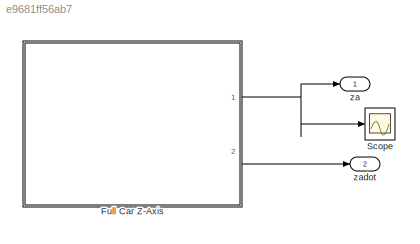
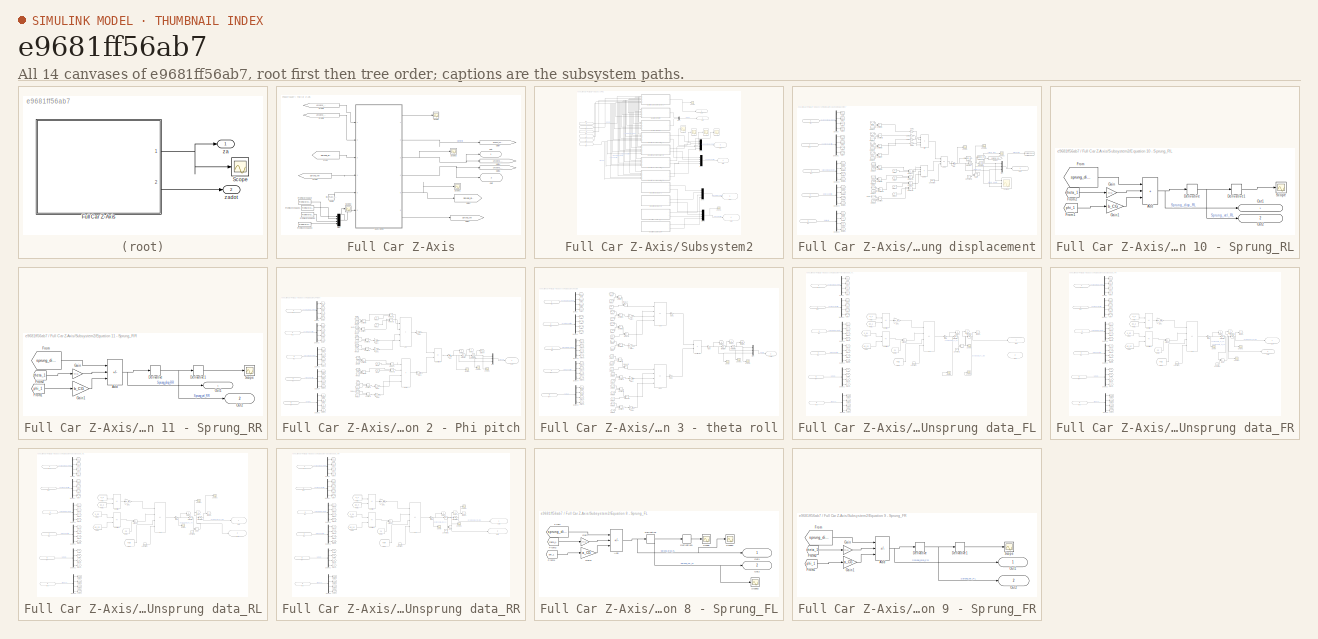
[diagram: thumbnail index - all 14 canvases of the model, root first then tree order]
MODEL slx_e9681ff56ab7
KIND model
CONFIG AbsTol = auto
CONFIG EnableMultiTasking = off
CONFIG FixedStep = 0.001
CONFIG MaxStep = auto
CONFIG MinStep = auto
CONFIG RelTol = 1e-3
CONFIG SampleTimeConstraint = Unconstrained
CONFIG Solver = ode4
CONFIG SolverName = ode4
CONFIG StartTime = 0
CONFIG StopTime = 3
BLOCK [SubSystem] Full Car Z-Axis
  Ports = [0, 2]
  RequestExecContextInheritance = off
BLOCK [From] Full Car Z-Axis/From
  GotoTag = Sprung_disp
BLOCK [FromWorkspace] Full Car Z-Axis/From Workspace
  OutputAfterFinalValue = Setting to zero
  VariableName = tt1
BLOCK [FromWorkspace] Full Car Z-Axis/From Workspace1
  OutputAfterFinalValue = Setting to zero
  VariableName = tt2
BLOCK [FromWorkspace] Full Car Z-Axis/From Workspace2
  OutputAfterFinalValue = Setting to zero
  VariableName = tt3
BLOCK [FromWorkspace] Full Car Z-Axis/From Workspace3
  OutputAfterFinalValue = Setting to zero
  VariableName = tt4
BLOCK [From] Full Car Z-Axis/From1
  GotoTag = Sprung_vel
BLOCK [From] Full Car Z-Axis/From2
  GotoTag = Unsprung_disp
BLOCK [From] Full Car Z-Axis/From5
  GotoTag = Unsprung_vel
BLOCK [Goto] Full Car Z-Axis/Goto2
  GotoTag = Sprung_disp
BLOCK [Goto] Full Car Z-Axis/Goto3
  GotoTag = Sprung_vel
BLOCK [Goto] Full Car Z-Axis/Goto4
  GotoTag = Unsprung_disp
BLOCK [Goto] Full Car Z-Axis/Goto5
  GotoTag = Unsprung_vel
BLOCK [Goto] Full Car Z-Axis/Goto7
  GotoTag = Moment_angle
BLOCK [Mux] Full Car Z-Axis/Mux
  DisplayOption = bar
  Ports = [4, 1]
BLOCK [Outport] Full Car Z-Axis/Out1
  IconDisplay = Port number and signal name
  VectorParamsAs1DForOutWhenUnconnected = off
BLOCK [Outport] Full Car Z-Axis/Out2
  IconDisplay = Port number and signal name
  Port = 2
  VectorParamsAs1DForOutWhenUnconnected = off
BLOCK [Scope] Full Car Z-Axis/Scope
  Floating = off
  NumInputPorts = 1
  Ports = [1]
  ScopeSpecificationString = Simulink.scopes.TimeScopeBlockCfg('CurrentConfiguration', extmgr.ConfigurationSet(extmgr.Configuration('Core','General UI',true),extmgr.Configuration('Core','Source UI',true),extmgr.Configuration('Sources','WiredSimulink',true,'DataLoggingVariableName','ScopeData5'),extmgr.Configuration('Visuals','Time Domain',true,'SerializedDisplays',{struct('MinYLimReal','-11.56906','MaxYLimReal','5.8992','YLab...<+1512ch>
BLOCK [Scope] Full Car Z-Axis/Scope1
  Floating = off
  NumInputPorts = 1
  Ports = [1]
  ScopeSpecificationString = Simulink.scopes.TimeScopeBlockCfg('CurrentConfiguration', extmgr.ConfigurationSet(extmgr.Configuration('Core','General UI',true),extmgr.Configuration('Core','Source UI',true),extmgr.Configuration('Sources','WiredSimulink',true,'DataLoggingVariableName','ScopeData1'),extmgr.Configuration('Visuals','Time Domain',true,'SerializedDisplays',{struct('MinYLimReal','-0.56022','MaxYLimReal','0.04258','YLab...<+1573ch>
BLOCK [Scope] Full Car Z-Axis/Scope2
  Floating = off
  NumInputPorts = 1
  Ports = [1]
  ScopeSpecificationString = Simulink.scopes.TimeScopeBlockCfg('CurrentConfiguration', extmgr.ConfigurationSet(extmgr.Configuration('Core','General UI',true),extmgr.Configuration('Core','Source UI',true),extmgr.Configuration('Sources','WiredSimulink',true,'DataLoggingVariableName','ScopeData6'),extmgr.Configuration('Visuals','Time Domain',true,'SerializedDisplays',{struct('MinYLimReal','-14099.09884','MaxYLimReal','17594.7328...<+1530ch>
BLOCK [Scope] Full Car Z-Axis/Scope3
  Floating = off
  NumInputPorts = 1
  Ports = [1]
  ScopeSpecificationString = Simulink.scopes.TimeScopeBlockCfg('CurrentConfiguration', extmgr.ConfigurationSet(extmgr.Configuration('Core','General UI',true),extmgr.Configuration('Core','Source UI',true),extmgr.Configuration('Sources','WiredSimulink',true,'DataLoggingVariableName','ScopeData2'),extmgr.Configuration('Visuals','Time Domain',true,'SerializedDisplays',{struct('MinYLimReal','-3.31053','MaxYLimReal','0.52087','YLab...<+1670ch>
BLOCK [SubSystem] Full Car Z-Axis/Subsystem2
  Ports = [6, 6]
  RequestExecContextInheritance = off
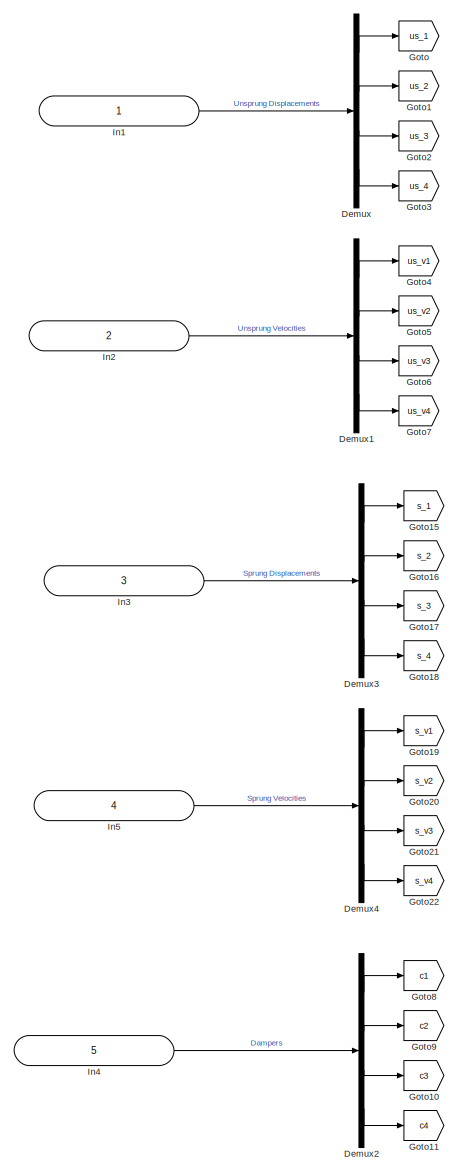
[diagram: Full Car Z-Axis/Subsystem2/Equation 1 - Sprung displacement - part 1/3, left side, full height]
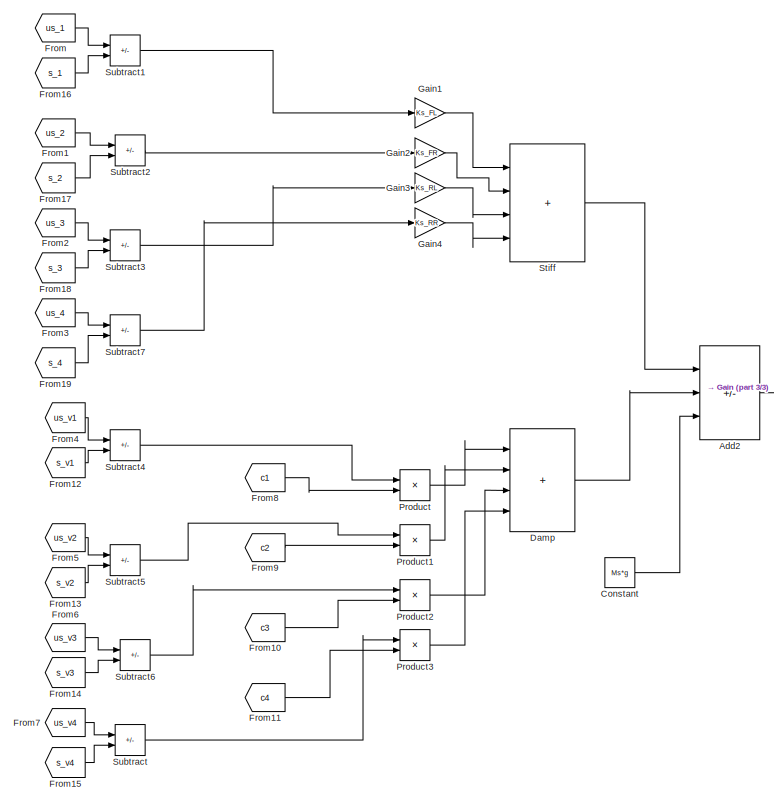
[diagram: Full Car Z-Axis/Subsystem2/Equation 1 - Sprung displacement - part 2/3, central region]
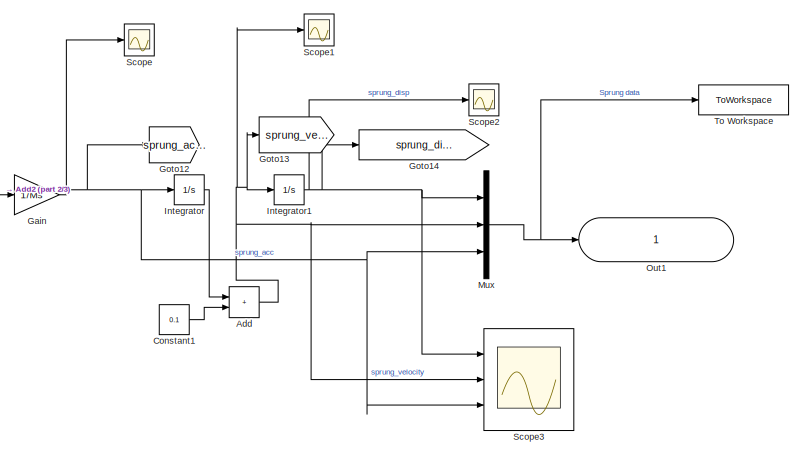
[diagram: Full Car Z-Axis/Subsystem2/Equation 1 - Sprung displacement - part 3/3, middle right region]
BLOCK [SubSystem] Full Car Z-Axis/Subsystem2/Equation 1 - Sprung displacement
  Ports = [5, 1]
  RequestExecContextInheritance = off
BLOCK [Sum] Full Car Z-Axis/Subsystem2/Equation 1 - Sprung displacement/Add
  IconShape = rectangular
  Ports = [2, 1]
BLOCK [Sum] Full Car Z-Axis/Subsystem2/Equation 1 - Sprung displacement/Add2
  IconShape = rectangular
  Inputs = ++-
  Ports = [3, 1]
BLOCK [Constant] Full Car Z-Axis/Subsystem2/Equation 1 - Sprung displacement/Constant
  Value = Ms*g
BLOCK [Constant] Full Car Z-Axis/Subsystem2/Equation 1 - Sprung displacement/Constant1
  Value = 0.1
BLOCK [Sum] Full Car Z-Axis/Subsystem2/Equation 1 - Sprung displacement/Damp
  IconShape = rectangular
  Inputs = ++++
  Ports = [4, 1]
BLOCK [Demux] Full Car Z-Axis/Subsystem2/Equation 1 - Sprung displacement/Demux
  Ports = [1, 4]
BLOCK [Demux] Full Car Z-Axis/Subsystem2/Equation 1 - Sprung displacement/Demux1
  Ports = [1, 4]
BLOCK [Demux] Full Car Z-Axis/Subsystem2/Equation 1 - Sprung displacement/Demux2
  Ports = [1, 4]
BLOCK [Demux] Full Car Z-Axis/Subsystem2/Equation 1 - Sprung displacement/Demux3
  Ports = [1, 4]
BLOCK [Demux] Full Car Z-Axis/Subsystem2/Equation 1 - Sprung displacement/Demux4
  Ports = [1, 4]
BLOCK [From] Full Car Z-Axis/Subsystem2/Equation 1 - Sprung displacement/From
  GotoTag = us_1
BLOCK [From] Full Car Z-Axis/Subsystem2/Equation 1 - Sprung displacement/From1
  GotoTag = us_2
BLOCK [From] Full Car Z-Axis/Subsystem2/Equation 1 - Sprung displacement/From10
  GotoTag = c3
BLOCK [From] Full Car Z-Axis/Subsystem2/Equation 1 - Sprung displacement/From11
  GotoTag = c4
BLOCK [From] Full Car Z-Axis/Subsystem2/Equation 1 - Sprung displacement/From12
  GotoTag = s_v1
BLOCK [From] Full Car Z-Axis/Subsystem2/Equation 1 - Sprung displacement/From13
  GotoTag = s_v2
BLOCK [From] Full Car Z-Axis/Subsystem2/Equation 1 - Sprung displacement/From14
  GotoTag = s_v3
BLOCK [From] Full Car Z-Axis/Subsystem2/Equation 1 - Sprung displacement/From15
  GotoTag = s_v4
BLOCK [From] Full Car Z-Axis/Subsystem2/Equation 1 - Sprung displacement/From16
  GotoTag = s_1
BLOCK [From] Full Car Z-Axis/Subsystem2/Equation 1 - Sprung displacement/From17
  GotoTag = s_2
BLOCK [From] Full Car Z-Axis/Subsystem2/Equation 1 - Sprung displacement/From18
  GotoTag = s_3
BLOCK [From] Full Car Z-Axis/Subsystem2/Equation 1 - Sprung displacement/From19
  GotoTag = s_4
BLOCK [From] Full Car Z-Axis/Subsystem2/Equation 1 - Sprung displacement/From2
  GotoTag = us_3
BLOCK [From] Full Car Z-Axis/Subsystem2/Equation 1 - Sprung displacement/From3
  GotoTag = us_4
BLOCK [From] Full Car Z-Axis/Subsystem2/Equation 1 - Sprung displacement/From4
  GotoTag = us_v1
BLOCK [From] Full Car Z-Axis/Subsystem2/Equation 1 - Sprung displacement/From5
  GotoTag = us_v2
BLOCK [From] Full Car Z-Axis/Subsystem2/Equation 1 - Sprung displacement/From6
  GotoTag = us_v3
BLOCK [From] Full Car Z-Axis/Subsystem2/Equation 1 - Sprung displacement/From7
  GotoTag = us_v4
BLOCK [From] Full Car Z-Axis/Subsystem2/Equation 1 - Sprung displacement/From8
  GotoTag = c1
BLOCK [From] Full Car Z-Axis/Subsystem2/Equation 1 - Sprung displacement/From9
  GotoTag = c2
BLOCK [Gain] Full Car Z-Axis/Subsystem2/Equation 1 - Sprung displacement/Gain
  Gain = 1/Ms
BLOCK [Gain] Full Car Z-Axis/Subsystem2/Equation 1 - Sprung displacement/Gain1
  Gain = Ks_FL
BLOCK [Gain] Full Car Z-Axis/Subsystem2/Equation 1 - Sprung displacement/Gain2
  Gain = Ks_FR
BLOCK [Gain] Full Car Z-Axis/Subsystem2/Equation 1 - Sprung displacement/Gain3
  Gain = Ks_RL
BLOCK [Gain] Full Car Z-Axis/Subsystem2/Equation 1 - Sprung displacement/Gain4
  Gain = Ks_RR
BLOCK [Goto] Full Car Z-Axis/Subsystem2/Equation 1 - Sprung displacement/Goto
  GotoTag = us_1
BLOCK [Goto] Full Car Z-Axis/Subsystem2/Equation 1 - Sprung displacement/Goto1
  GotoTag = us_2
BLOCK [Goto] Full Car Z-Axis/Subsystem2/Equation 1 - Sprung displacement/Goto10
  GotoTag = c3
BLOCK [Goto] Full Car Z-Axis/Subsystem2/Equation 1 - Sprung displacement/Goto11
  GotoTag = c4
BLOCK [Goto] Full Car Z-Axis/Subsystem2/Equation 1 - Sprung displacement/Goto12
  GotoTag = sprung_acc_zb
  TagVisibility = global
BLOCK [Goto] Full Car Z-Axis/Subsystem2/Equation 1 - Sprung displacement/Goto13
  GotoTag = sprung_vel_zb
  TagVisibility = global
BLOCK [Goto] Full Car Z-Axis/Subsystem2/Equation 1 - Sprung displacement/Goto14
  GotoTag = sprung_displ_zb
  TagVisibility = global
BLOCK [Goto] Full Car Z-Axis/Subsystem2/Equation 1 - Sprung displacement/Goto15
  GotoTag = s_1
BLOCK [Goto] Full Car Z-Axis/Subsystem2/Equation 1 - Sprung displacement/Goto16
  GotoTag = s_2
BLOCK [Goto] Full Car Z-Axis/Subsystem2/Equation 1 - Sprung displacement/Goto17
  GotoTag = s_3
BLOCK [Goto] Full Car Z-Axis/Subsystem2/Equation 1 - Sprung displacement/Goto18
  GotoTag = s_4
BLOCK [Goto] Full Car Z-Axis/Subsystem2/Equation 1 - Sprung displacement/Goto19
  GotoTag = s_v1
BLOCK [Goto] Full Car Z-Axis/Subsystem2/Equation 1 - Sprung displacement/Goto2
  GotoTag = us_3
BLOCK [Goto] Full Car Z-Axis/Subsystem2/Equation 1 - Sprung displacement/Goto20
  GotoTag = s_v2
BLOCK [Goto] Full Car Z-Axis/Subsystem2/Equation 1 - Sprung displacement/Goto21
  GotoTag = s_v3
BLOCK [Goto] Full Car Z-Axis/Subsystem2/Equation 1 - Sprung displacement/Goto22
  GotoTag = s_v4
BLOCK [Goto] Full Car Z-Axis/Subsystem2/Equation 1 - Sprung displacement/Goto3
  GotoTag = us_4
BLOCK [Goto] Full Car Z-Axis/Subsystem2/Equation 1 - Sprung displacement/Goto4
  GotoTag = us_v1
BLOCK [Goto] Full Car Z-Axis/Subsystem2/Equation 1 - Sprung displacement/Goto5
  GotoTag = us_v2
BLOCK [Goto] Full Car Z-Axis/Subsystem2/Equation 1 - Sprung displacement/Goto6
  GotoTag = us_v3
BLOCK [Goto] Full Car Z-Axis/Subsystem2/Equation 1 - Sprung displacement/Goto7
  GotoTag = us_v4
BLOCK [Goto] Full Car Z-Axis/Subsystem2/Equation 1 - Sprung displacement/Goto8
  GotoTag = c1
BLOCK [Goto] Full Car Z-Axis/Subsystem2/Equation 1 - Sprung displacement/Goto9
  GotoTag = c2
BLOCK [Inport] Full Car Z-Axis/Subsystem2/Equation 1 - Sprung displacement/In1
  IconDisplay = Port number and signal name
BLOCK [Inport] Full Car Z-Axis/Subsystem2/Equation 1 - Sprung displacement/In2
  IconDisplay = Port number and signal name
  Port = 2
BLOCK [Inport] Full Car Z-Axis/Subsystem2/Equation 1 - Sprung displacement/In3
  IconDisplay = Port number and signal name
  Port = 3
BLOCK [Inport] Full Car Z-Axis/Subsystem2/Equation 1 - Sprung displacement/In4
  IconDisplay = Port number and signal name
  Port = 5
BLOCK [Inport] Full Car Z-Axis/Subsystem2/Equation 1 - Sprung displacement/In5
  IconDisplay = Port number and signal name
  Port = 4
BLOCK [Integrator] Full Car Z-Axis/Subsystem2/Equation 1 - Sprung displacement/Integrator
  Ports = [1, 1]
BLOCK [Integrator] Full Car Z-Axis/Subsystem2/Equation 1 - Sprung displacement/Integrator1
  InitialCondition = -0.0177
  Ports = [1, 1]
BLOCK [Mux] Full Car Z-Axis/Subsystem2/Equation 1 - Sprung displacement/Mux
  DisplayOption = bar
  Inputs = 3
  Ports = [3, 1]
BLOCK [Outport] Full Car Z-Axis/Subsystem2/Equation 1 - Sprung displacement/Out1
  IconDisplay = Port number and signal name
  VectorParamsAs1DForOutWhenUnconnected = off
BLOCK [Product] Full Car Z-Axis/Subsystem2/Equation 1 - Sprung displacement/Product
  Ports = [2, 1]
BLOCK [Product] Full Car Z-Axis/Subsystem2/Equation 1 - Sprung displacement/Product1
  Ports = [2, 1]
BLOCK [Product] Full Car Z-Axis/Subsystem2/Equation 1 - Sprung displacement/Product2
  Ports = [2, 1]
BLOCK [Product] Full Car Z-Axis/Subsystem2/Equation 1 - Sprung displacement/Product3
  Ports = [2, 1]
BLOCK [Scope] Full Car Z-Axis/Subsystem2/Equation 1 - Sprung displacement/Scope
  Floating = off
  NumInputPorts = 1
  Ports = [1]
  ScopeSpecificationString = Simulink.scopes.TimeScopeBlockCfg('CurrentConfiguration', extmgr.ConfigurationSet(extmgr.Configuration('Core','General UI',true),extmgr.Configuration('Core','Source UI',true),extmgr.Configuration('Sources','WiredSimulink',true,'DataLoggingVariableName','ScopeData7'),extmgr.Configuration('Visuals','Time Domain',true,'SerializedDisplays',{struct('MinYLimReal','-11.56906','MaxYLimReal','5.8992','YLab...<+1438ch>
BLOCK [Scope] Full Car Z-Axis/Subsystem2/Equation 1 - Sprung displacement/Scope1
  Floating = off
  NumInputPorts = 1
  Ports = [1]
  ScopeSpecificationString = Simulink.scopes.TimeScopeBlockCfg('CurrentConfiguration', extmgr.ConfigurationSet(extmgr.Configuration('Core','General UI',true),extmgr.Configuration('Core','Source UI',true),extmgr.Configuration('Sources','WiredSimulink',true,'DataLoggingVariableName','ScopeData8'),extmgr.Configuration('Visuals','Time Domain',true,'SerializedDisplays',{struct('MinYLimReal','-1.08048','MaxYLimReal','0.2303','YLabe...<+1445ch>
BLOCK [Scope] Full Car Z-Axis/Subsystem2/Equation 1 - Sprung displacement/Scope2
  Floating = off
  NumInputPorts = 1
  Ports = [1]
  ScopeSpecificationString = Simulink.scopes.TimeScopeBlockCfg('CurrentConfiguration', extmgr.ConfigurationSet(extmgr.Configuration('Core','General UI',true),extmgr.Configuration('Core','Source UI',true),extmgr.Configuration('Sources','WiredSimulink',true,'DataLoggingVariableName','ScopeData21'),extmgr.Configuration('Visuals','Time Domain',true,'SerializedDisplays',{struct('MinYLimReal','-0.56022','MaxYLimReal','0.04258','YLa...<+1468ch>
BLOCK [Scope] Full Car Z-Axis/Subsystem2/Equation 1 - Sprung displacement/Scope3
  Floating = off
  NumInputPorts = 3
  Ports = [3]
  ScopeSpecificationString = Simulink.scopes.TimeScopeBlockCfg('CurrentConfiguration', extmgr.ConfigurationSet(extmgr.Configuration('Core','General UI',true),extmgr.Configuration('Core','Source UI',true),extmgr.Configuration('Sources','WiredSimulink',true,'DataLoggingVariableName','ScopeData1'),extmgr.Configuration('Visuals','Time Domain',true,'SerializedDisplays',{struct('MinYLimReal','-46.96567','MaxYLimReal','7.92436','YLa...<+1432ch>
BLOCK [Sum] Full Car Z-Axis/Subsystem2/Equation 1 - Sprung displacement/Stiff
  IconShape = rectangular
  Inputs = ++++
  Ports = [4, 1]
BLOCK [Sum] Full Car Z-Axis/Subsystem2/Equation 1 - Sprung displacement/Subtract
  IconShape = rectangular
  Inputs = +-
  Ports = [2, 1]
BLOCK [Sum] Full Car Z-Axis/Subsystem2/Equation 1 - Sprung displacement/Subtract1
  IconShape = rectangular
  Inputs = +-
  Ports = [2, 1]
BLOCK [Sum] Full Car Z-Axis/Subsystem2/Equation 1 - Sprung displacement/Subtract2
  IconShape = rectangular
  Inputs = +-
  Ports = [2, 1]
BLOCK [Sum] Full Car Z-Axis/Subsystem2/Equation 1 - Sprung displacement/Subtract3
  IconShape = rectangular
  Inputs = +-
  Ports = [2, 1]
BLOCK [Sum] Full Car Z-Axis/Subsystem2/Equation 1 - Sprung displacement/Subtract4
  IconShape = rectangular
  Inputs = +-
  Ports = [2, 1]
BLOCK [Sum] Full Car Z-Axis/Subsystem2/Equation 1 - Sprung displacement/Subtract5
  IconShape = rectangular
  Inputs = +-
  Ports = [2, 1]
BLOCK [Sum] Full Car Z-Axis/Subsystem2/Equation 1 - Sprung displacement/Subtract6
  IconShape = rectangular
  Inputs = +-
  Ports = [2, 1]
BLOCK [Sum] Full Car Z-Axis/Subsystem2/Equation 1 - Sprung displacement/Subtract7
  IconShape = rectangular
  Inputs = +-
  Ports = [2, 1]
BLOCK [ToWorkspace] Full Car Z-Axis/Subsystem2/Equation 1 - Sprung displacement/To Workspace
  FixptAsFi = on
  MaxDataPoints = inf
  Ports = [1]
  SampleTime = -1
  Save2DSignal = 2-D array (concatenate along first dimension)
  VariableName = sprung_mass_cg
BLOCK [SubSystem] Full Car Z-Axis/Subsystem2/Equation 10 - Sprung_RL
  Ports = [0, 2]
  RequestExecContextInheritance = off
BLOCK [Sum] Full Car Z-Axis/Subsystem2/Equation 10 - Sprung_RL/Add
  IconShape = rectangular
  Inputs = +++
  Ports = [3, 1]
BLOCK [Derivative] Full Car Z-Axis/Subsystem2/Equation 10 - Sprung_RL/Derivative
BLOCK [Derivative] Full Car Z-Axis/Subsystem2/Equation 10 - Sprung_RL/Derivative1
BLOCK [From] Full Car Z-Axis/Subsystem2/Equation 10 - Sprung_RL/From
  GotoTag = sprung_displ_zb
  TagVisibility = global
BLOCK [From] Full Car Z-Axis/Subsystem2/Equation 10 - Sprung_RL/From1
  GotoTag = phi_1
  TagVisibility = global
BLOCK [From] Full Car Z-Axis/Subsystem2/Equation 10 - Sprung_RL/From2
  GotoTag = theta_1
  TagVisibility = global
BLOCK [Gain] Full Car Z-Axis/Subsystem2/Equation 10 - Sprung_RL/Gain
  Gain = tr/2
BLOCK [Gain] Full Car Z-Axis/Subsystem2/Equation 10 - Sprung_RL/Gain1
  Gain = b_CG
BLOCK [Outport] Full Car Z-Axis/Subsystem2/Equation 10 - Sprung_RL/Out1
  IconDisplay = Port number and signal name
  VectorParamsAs1DForOutWhenUnconnected = off
BLOCK [Outport] Full Car Z-Axis/Subsystem2/Equation 10 - Sprung_RL/Out2
  IconDisplay = Port number and signal name
  Port = 2
  VectorParamsAs1DForOutWhenUnconnected = off
BLOCK [Scope] Full Car Z-Axis/Subsystem2/Equation 10 - Sprung_RL/Scope
  Floating = off
  NumInputPorts = 1
  Ports = [1]
  ScopeSpecificationString = Simulink.scopes.TimeScopeBlockCfg('CurrentConfiguration', extmgr.ConfigurationSet(extmgr.Configuration('Core','General UI',true),extmgr.Configuration('Core','Source UI',true),extmgr.Configuration('Sources','WiredSimulink',true,'DataLoggingVariableName','ScopeData3'),extmgr.Configuration('Visuals','Time Domain',true,'SerializedDisplays',{struct('MinYLimReal','-24.27688','MaxYLimReal','14.87643','YL...<+1376ch>
BLOCK [SubSystem] Full Car Z-Axis/Subsystem2/Equation 11 - Sprung_RR
  Ports = [0, 2]
  RequestExecContextInheritance = off
BLOCK [Sum] Full Car Z-Axis/Subsystem2/Equation 11 - Sprung_RR/Add
  IconShape = rectangular
  Inputs = +-+
  Ports = [3, 1]
BLOCK [Derivative] Full Car Z-Axis/Subsystem2/Equation 11 - Sprung_RR/Derivative
BLOCK [Derivative] Full Car Z-Axis/Subsystem2/Equation 11 - Sprung_RR/Derivative1
BLOCK [From] Full Car Z-Axis/Subsystem2/Equation 11 - Sprung_RR/From
  GotoTag = sprung_displ_zb
  TagVisibility = global
BLOCK [From] Full Car Z-Axis/Subsystem2/Equation 11 - Sprung_RR/From1
  GotoTag = phi_1
  TagVisibility = global
BLOCK [From] Full Car Z-Axis/Subsystem2/Equation 11 - Sprung_RR/From2
  GotoTag = theta_1
  TagVisibility = global
BLOCK [Gain] Full Car Z-Axis/Subsystem2/Equation 11 - Sprung_RR/Gain
  Gain = tr/2
BLOCK [Gain] Full Car Z-Axis/Subsystem2/Equation 11 - Sprung_RR/Gain1
  Gain = b_CG
BLOCK [Outport] Full Car Z-Axis/Subsystem2/Equation 11 - Sprung_RR/Out1
  IconDisplay = Port number and signal name
  VectorParamsAs1DForOutWhenUnconnected = off
BLOCK [Outport] Full Car Z-Axis/Subsystem2/Equation 11 - Sprung_RR/Out2
  IconDisplay = Port number and signal name
  Port = 2
  VectorParamsAs1DForOutWhenUnconnected = off
BLOCK [Scope] Full Car Z-Axis/Subsystem2/Equation 11 - Sprung_RR/Scope
  Floating = off
  NumInputPorts = 1
  Ports = [1]
  ScopeSpecificationString = Simulink.scopes.TimeScopeBlockCfg('CurrentConfiguration', extmgr.ConfigurationSet(extmgr.Configuration('Core','General UI',true),extmgr.Configuration('Core','Source UI',true),extmgr.Configuration('Sources','WiredSimulink',true,'DataLoggingVariableName','ScopeData4'),extmgr.Configuration('Visuals','Time Domain',true,'SerializedDisplays',{struct('MinYLimReal','-24.27688','MaxYLimReal','14.87643','YL...<+1376ch>
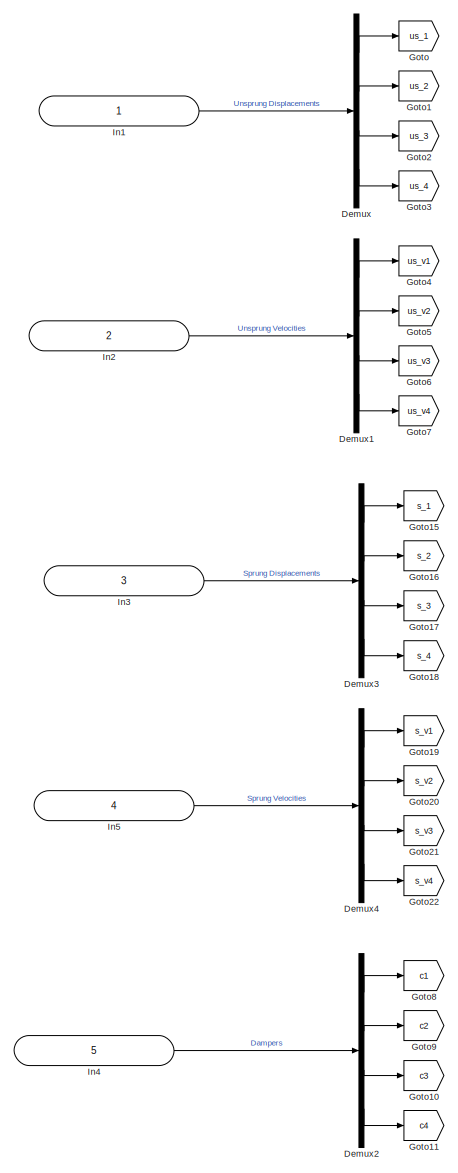
[diagram: Full Car Z-Axis/Subsystem2/Equation 2 - Phi pitch - part 1/3, left side, full height]
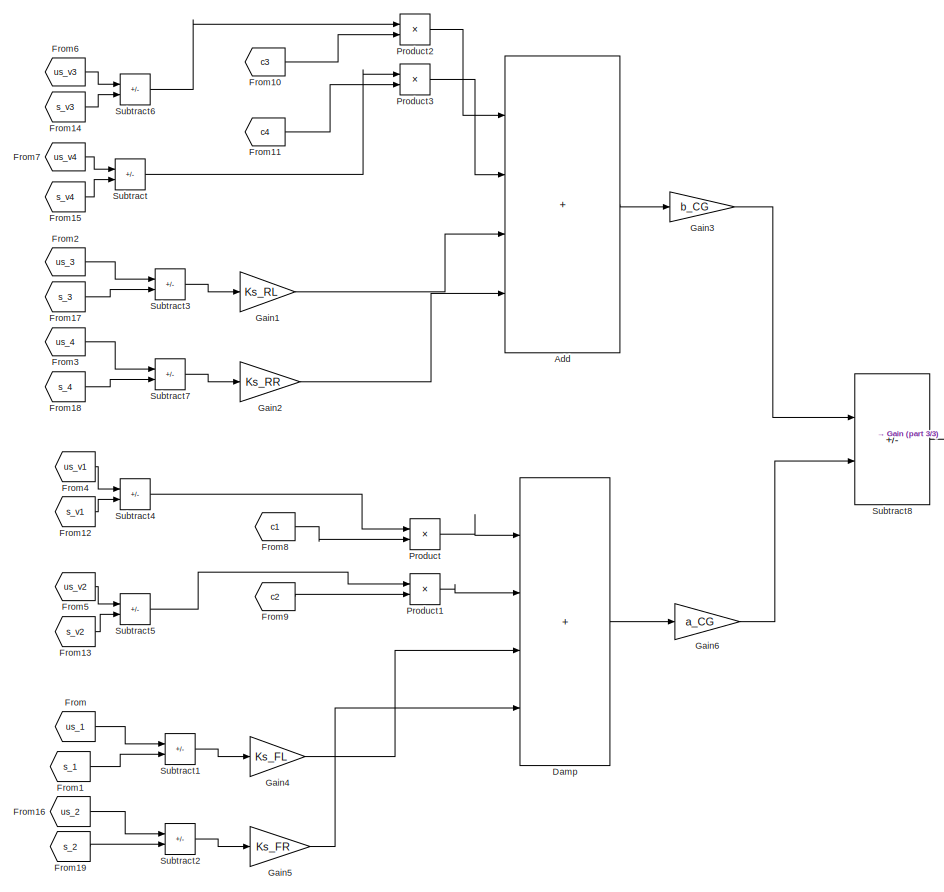
[diagram: Full Car Z-Axis/Subsystem2/Equation 2 - Phi pitch - part 2/3, center side, full height]
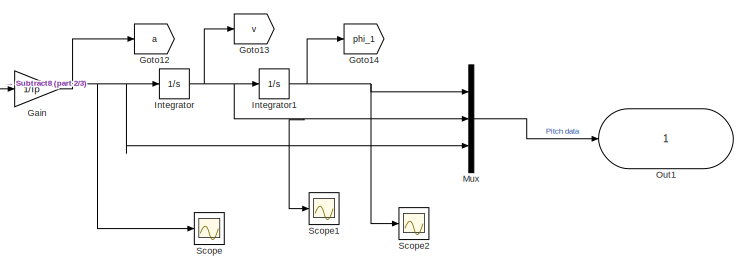
[diagram: Full Car Z-Axis/Subsystem2/Equation 2 - Phi pitch - part 3/3, middle right region]
BLOCK [SubSystem] Full Car Z-Axis/Subsystem2/Equation 2 - Phi pitch
  Ports = [5, 1]
  RequestExecContextInheritance = off
BLOCK [Sum] Full Car Z-Axis/Subsystem2/Equation 2 - Phi pitch/Add
  IconShape = rectangular
  Inputs = ++++
  Ports = [4, 1]
BLOCK [Sum] Full Car Z-Axis/Subsystem2/Equation 2 - Phi pitch/Damp
  IconShape = rectangular
  Inputs = ++++
  Ports = [4, 1]
BLOCK [Demux] Full Car Z-Axis/Subsystem2/Equation 2 - Phi pitch/Demux
  Ports = [1, 4]
BLOCK [Demux] Full Car Z-Axis/Subsystem2/Equation 2 - Phi pitch/Demux1
  Ports = [1, 4]
BLOCK [Demux] Full Car Z-Axis/Subsystem2/Equation 2 - Phi pitch/Demux2
  Ports = [1, 4]
BLOCK [Demux] Full Car Z-Axis/Subsystem2/Equation 2 - Phi pitch/Demux3
  Ports = [1, 4]
BLOCK [Demux] Full Car Z-Axis/Subsystem2/Equation 2 - Phi pitch/Demux4
  Ports = [1, 4]
BLOCK [From] Full Car Z-Axis/Subsystem2/Equation 2 - Phi pitch/From
  GotoTag = us_1
BLOCK [From] Full Car Z-Axis/Subsystem2/Equation 2 - Phi pitch/From1
  GotoTag = s_1
BLOCK [From] Full Car Z-Axis/Subsystem2/Equation 2 - Phi pitch/From10
  GotoTag = c3
BLOCK [From] Full Car Z-Axis/Subsystem2/Equation 2 - Phi pitch/From11
  GotoTag = c4
BLOCK [From] Full Car Z-Axis/Subsystem2/Equation 2 - Phi pitch/From12
  GotoTag = s_v1
BLOCK [From] Full Car Z-Axis/Subsystem2/Equation 2 - Phi pitch/From13
  GotoTag = s_v2
BLOCK [From] Full Car Z-Axis/Subsystem2/Equation 2 - Phi pitch/From14
  GotoTag = s_v3
BLOCK [From] Full Car Z-Axis/Subsystem2/Equation 2 - Phi pitch/From15
  GotoTag = s_v4
BLOCK [From] Full Car Z-Axis/Subsystem2/Equation 2 - Phi pitch/From16
  GotoTag = us_2
BLOCK [From] Full Car Z-Axis/Subsystem2/Equation 2 - Phi pitch/From17
  GotoTag = s_3
BLOCK [From] Full Car Z-Axis/Subsystem2/Equation 2 - Phi pitch/From18
  GotoTag = s_4
BLOCK [From] Full Car Z-Axis/Subsystem2/Equation 2 - Phi pitch/From19
  GotoTag = s_2
BLOCK [From] Full Car Z-Axis/Subsystem2/Equation 2 - Phi pitch/From2
  GotoTag = us_3
BLOCK [From] Full Car Z-Axis/Subsystem2/Equation 2 - Phi pitch/From3
  GotoTag = us_4
BLOCK [From] Full Car Z-Axis/Subsystem2/Equation 2 - Phi pitch/From4
  GotoTag = us_v1
BLOCK [From] Full Car Z-Axis/Subsystem2/Equation 2 - Phi pitch/From5
  GotoTag = us_v2
BLOCK [From] Full Car Z-Axis/Subsystem2/Equation 2 - Phi pitch/From6
  GotoTag = us_v3
BLOCK [From] Full Car Z-Axis/Subsystem2/Equation 2 - Phi pitch/From7
  GotoTag = us_v4
BLOCK [From] Full Car Z-Axis/Subsystem2/Equation 2 - Phi pitch/From8
  GotoTag = c1
BLOCK [From] Full Car Z-Axis/Subsystem2/Equation 2 - Phi pitch/From9
  GotoTag = c2
BLOCK [Gain] Full Car Z-Axis/Subsystem2/Equation 2 - Phi pitch/Gain
  Gain = 1/Ip
BLOCK [Gain] Full Car Z-Axis/Subsystem2/Equation 2 - Phi pitch/Gain1
  Gain = Ks_RL
BLOCK [Gain] Full Car Z-Axis/Subsystem2/Equation 2 - Phi pitch/Gain2
  Gain = Ks_RR
BLOCK [Gain] Full Car Z-Axis/Subsystem2/Equation 2 - Phi pitch/Gain3
  Gain = b_CG
BLOCK [Gain] Full Car Z-Axis/Subsystem2/Equation 2 - Phi pitch/Gain4
  Gain = Ks_FL
BLOCK [Gain] Full Car Z-Axis/Subsystem2/Equation 2 - Phi pitch/Gain5
  Gain = Ks_FR
BLOCK [Gain] Full Car Z-Axis/Subsystem2/Equation 2 - Phi pitch/Gain6
  Gain = a_CG
BLOCK [Goto] Full Car Z-Axis/Subsystem2/Equation 2 - Phi pitch/Goto
  GotoTag = us_1
BLOCK [Goto] Full Car Z-Axis/Subsystem2/Equation 2 - Phi pitch/Goto1
  GotoTag = us_2
BLOCK [Goto] Full Car Z-Axis/Subsystem2/Equation 2 - Phi pitch/Goto10
  GotoTag = c3
BLOCK [Goto] Full Car Z-Axis/Subsystem2/Equation 2 - Phi pitch/Goto11
  GotoTag = c4
BLOCK [Goto] Full Car Z-Axis/Subsystem2/Equation 2 - Phi pitch/Goto12
  GotoTag = a
BLOCK [Goto] Full Car Z-Axis/Subsystem2/Equation 2 - Phi pitch/Goto13
  GotoTag = v
BLOCK [Goto] Full Car Z-Axis/Subsystem2/Equation 2 - Phi pitch/Goto14
  GotoTag = phi_1
  TagVisibility = global
BLOCK [Goto] Full Car Z-Axis/Subsystem2/Equation 2 - Phi pitch/Goto15
  GotoTag = s_1
BLOCK [Goto] Full Car Z-Axis/Subsystem2/Equation 2 - Phi pitch/Goto16
  GotoTag = s_2
BLOCK [Goto] Full Car Z-Axis/Subsystem2/Equation 2 - Phi pitch/Goto17
  GotoTag = s_3
BLOCK [Goto] Full Car Z-Axis/Subsystem2/Equation 2 - Phi pitch/Goto18
  GotoTag = s_4
BLOCK [Goto] Full Car Z-Axis/Subsystem2/Equation 2 - Phi pitch/Goto19
  GotoTag = s_v1
BLOCK [Goto] Full Car Z-Axis/Subsystem2/Equation 2 - Phi pitch/Goto2
  GotoTag = us_3
BLOCK [Goto] Full Car Z-Axis/Subsystem2/Equation 2 - Phi pitch/Goto20
  GotoTag = s_v2
BLOCK [Goto] Full Car Z-Axis/Subsystem2/Equation 2 - Phi pitch/Goto21
  GotoTag = s_v3
BLOCK [Goto] Full Car Z-Axis/Subsystem2/Equation 2 - Phi pitch/Goto22
  GotoTag = s_v4
BLOCK [Goto] Full Car Z-Axis/Subsystem2/Equation 2 - Phi pitch/Goto3
  GotoTag = us_4
BLOCK [Goto] Full Car Z-Axis/Subsystem2/Equation 2 - Phi pitch/Goto4
  GotoTag = us_v1
BLOCK [Goto] Full Car Z-Axis/Subsystem2/Equation 2 - Phi pitch/Goto5
  GotoTag = us_v2
BLOCK [Goto] Full Car Z-Axis/Subsystem2/Equation 2 - Phi pitch/Goto6
  GotoTag = us_v3
BLOCK [Goto] Full Car Z-Axis/Subsystem2/Equation 2 - Phi pitch/Goto7
  GotoTag = us_v4
BLOCK [Goto] Full Car Z-Axis/Subsystem2/Equation 2 - Phi pitch/Goto8
  GotoTag = c1
BLOCK [Goto] Full Car Z-Axis/Subsystem2/Equation 2 - Phi pitch/Goto9
  GotoTag = c2
BLOCK [Inport] Full Car Z-Axis/Subsystem2/Equation 2 - Phi pitch/In1
  IconDisplay = Port number and signal name
BLOCK [Inport] Full Car Z-Axis/Subsystem2/Equation 2 - Phi pitch/In2
  IconDisplay = Port number and signal name
  Port = 2
BLOCK [Inport] Full Car Z-Axis/Subsystem2/Equation 2 - Phi pitch/In3
  IconDisplay = Port number and signal name
  Port = 3
BLOCK [Inport] Full Car Z-Axis/Subsystem2/Equation 2 - Phi pitch/In4
  IconDisplay = Port number and signal name
  Port = 5
BLOCK [Inport] Full Car Z-Axis/Subsystem2/Equation 2 - Phi pitch/In5
  IconDisplay = Port number and signal name
  Port = 4
BLOCK [Integrator] Full Car Z-Axis/Subsystem2/Equation 2 - Phi pitch/Integrator
  LowerSaturationLimit = -0.00001
  Ports = [1, 1]
  UpperSaturationLimit = 0.00001
BLOCK [Integrator] Full Car Z-Axis/Subsystem2/Equation 2 - Phi pitch/Integrator1
  LowerSaturationLimit = -0.00001
  Ports = [1, 1]
  UpperSaturationLimit = 0.00001
BLOCK [Mux] Full Car Z-Axis/Subsystem2/Equation 2 - Phi pitch/Mux
  DisplayOption = bar
  Inputs = 3
  Ports = [3, 1]
BLOCK [Outport] Full Car Z-Axis/Subsystem2/Equation 2 - Phi pitch/Out1
  IconDisplay = Port number and signal name
  VectorParamsAs1DForOutWhenUnconnected = off
BLOCK [Product] Full Car Z-Axis/Subsystem2/Equation 2 - Phi pitch/Product
  Ports = [2, 1]
BLOCK [Product] Full Car Z-Axis/Subsystem2/Equation 2 - Phi pitch/Product1
  Ports = [2, 1]
BLOCK [Product] Full Car Z-Axis/Subsystem2/Equation 2 - Phi pitch/Product2
  Ports = [2, 1]
BLOCK [Product] Full Car Z-Axis/Subsystem2/Equation 2 - Phi pitch/Product3
  Ports = [2, 1]
BLOCK [Scope] Full Car Z-Axis/Subsystem2/Equation 2 - Phi pitch/Scope
  Floating = off
  NumInputPorts = 1
  Ports = [1]
  ScopeSpecificationString = Simulink.scopes.TimeScopeBlockCfg('CurrentConfiguration', extmgr.ConfigurationSet(extmgr.Configuration('Core','General UI',true),extmgr.Configuration('Core','Source UI',true),extmgr.Configuration('Sources','WiredSimulink',true,'DataLoggingVariableName','ScopeData10'),extmgr.Configuration('Visuals','Time Domain',true,'SerializedDisplays',{struct('MinYLimReal','-9.63287','MaxYLimReal','10.05726','YL...<+1368ch>
BLOCK [Scope] Full Car Z-Axis/Subsystem2/Equation 2 - Phi pitch/Scope1
  Floating = off
  NumInputPorts = 1
  Ports = [1]
  ScopeSpecificationString = Simulink.scopes.TimeScopeBlockCfg('CurrentConfiguration', extmgr.ConfigurationSet(extmgr.Configuration('Core','General UI',true),extmgr.Configuration('Core','Source UI',true),extmgr.Configuration('Sources','WiredSimulink',true,'DataLoggingVariableName','ScopeData11'),extmgr.Configuration('Visuals','Time Domain',true,'SerializedDisplays',{struct('MinYLimReal','-0.13825','MaxYLimReal','0.15811','YLa...<+1370ch>
BLOCK [Scope] Full Car Z-Axis/Subsystem2/Equation 2 - Phi pitch/Scope2
  Floating = off
  NumInputPorts = 1
  Ports = [1]
  ScopeSpecificationString = Simulink.scopes.TimeScopeBlockCfg('CurrentConfiguration', extmgr.ConfigurationSet(extmgr.Configuration('Core','General UI',true),extmgr.Configuration('Core','Source UI',true),extmgr.Configuration('Sources','WiredSimulink',true,'DataLoggingVariableName','ScopeData12'),extmgr.Configuration('Visuals','Time Domain',true,'SerializedDisplays',{struct('MinYLimReal','-0.00569','MaxYLimReal','0.0072','YLab...<+1367ch>
BLOCK [Sum] Full Car Z-Axis/Subsystem2/Equation 2 - Phi pitch/Subtract
  IconShape = rectangular
  Inputs = +-
  Ports = [2, 1]
BLOCK [Sum] Full Car Z-Axis/Subsystem2/Equation 2 - Phi pitch/Subtract1
  IconShape = rectangular
  Inputs = +-
  Ports = [2, 1]
BLOCK [Sum] Full Car Z-Axis/Subsystem2/Equation 2 - Phi pitch/Subtract2
  IconShape = rectangular
  Inputs = +-
  Ports = [2, 1]
BLOCK [Sum] Full Car Z-Axis/Subsystem2/Equation 2 - Phi pitch/Subtract3
  IconShape = rectangular
  Inputs = +-
  Ports = [2, 1]
BLOCK [Sum] Full Car Z-Axis/Subsystem2/Equation 2 - Phi pitch/Subtract4
  IconShape = rectangular
  Inputs = +-
  Ports = [2, 1]
BLOCK [Sum] Full Car Z-Axis/Subsystem2/Equation 2 - Phi pitch/Subtract5
  IconShape = rectangular
  Inputs = +-
  Ports = [2, 1]
BLOCK [Sum] Full Car Z-Axis/Subsystem2/Equation 2 - Phi pitch/Subtract6
  IconShape = rectangular
  Inputs = +-
  Ports = [2, 1]
BLOCK [Sum] Full Car Z-Axis/Subsystem2/Equation 2 - Phi pitch/Subtract7
  IconShape = rectangular
  Inputs = +-
  Ports = [2, 1]
BLOCK [Sum] Full Car Z-Axis/Subsystem2/Equation 2 - Phi pitch/Subtract8
  IconShape = rectangular
  Inputs = +-
  Ports = [2, 1]
BLOCK [SubSystem] Full Car Z-Axis/Subsystem2/Equation 3 - theta roll
  Ports = [5, 1]
  RequestExecContextInheritance = off
BLOCK [Sum] Full Car Z-Axis/Subsystem2/Equation 3 - theta roll/Add
  IconShape = rectangular
  Inputs = --++
  Ports = [4, 1]
BLOCK [Sum] Full Car Z-Axis/Subsystem2/Equation 3 - theta roll/Add1
  IconShape = rectangular
  Inputs = --++
  Ports = [4, 1]
BLOCK [Demux] Full Car Z-Axis/Subsystem2/Equation 3 - theta roll/Demux
  Ports = [1, 4]
BLOCK [Demux] Full Car Z-Axis/Subsystem2/Equation 3 - theta roll/Demux1
  Ports = [1, 4]
BLOCK [Demux] Full Car Z-Axis/Subsystem2/Equation 3 - theta roll/Demux2
  Ports = [1, 4]
BLOCK [Demux] Full Car Z-Axis/Subsystem2/Equation 3 - theta roll/Demux3
  Ports = [1, 4]
BLOCK [Demux] Full Car Z-Axis/Subsystem2/Equation 3 - theta roll/Demux4
  Ports = [1, 4]
BLOCK [From] Full Car Z-Axis/Subsystem2/Equation 3 - theta roll/From
  GotoTag = us_v2
BLOCK [From] Full Car Z-Axis/Subsystem2/Equation 3 - theta roll/From1
  GotoTag = s_v2
BLOCK [From] Full Car Z-Axis/Subsystem2/Equation 3 - theta roll/From10
  GotoTag = us_v4
BLOCK [From] Full Car Z-Axis/Subsystem2/Equation 3 - theta roll/From11
  GotoTag = s_v4
BLOCK [From] Full Car Z-Axis/Subsystem2/Equation 3 - theta roll/From12
  GotoTag = c4
BLOCK [From] Full Car Z-Axis/Subsystem2/Equation 3 - theta roll/From13
  GotoTag = us_4
BLOCK [From] Full Car Z-Axis/Subsystem2/Equation 3 - theta roll/From14
  GotoTag = s_4
BLOCK [From] Full Car Z-Axis/Subsystem2/Equation 3 - theta roll/From15
  GotoTag = us_v3
BLOCK [From] Full Car Z-Axis/Subsystem2/Equation 3 - theta roll/From16
  GotoTag = s_v3
BLOCK [From] Full Car Z-Axis/Subsystem2/Equation 3 - theta roll/From17
  GotoTag = c3
BLOCK [From] Full Car Z-Axis/Subsystem2/Equation 3 - theta roll/From18
  GotoTag = us_3
BLOCK [From] Full Car Z-Axis/Subsystem2/Equation 3 - theta roll/From19
  GotoTag = s_3
BLOCK [From] Full Car Z-Axis/Subsystem2/Equation 3 - theta roll/From2
  GotoTag = c2
BLOCK [From] Full Car Z-Axis/Subsystem2/Equation 3 - theta roll/From3
  GotoTag = us_2
BLOCK [From] Full Car Z-Axis/Subsystem2/Equation 3 - theta roll/From4
  GotoTag = s_2
BLOCK [From] Full Car Z-Axis/Subsystem2/Equation 3 - theta roll/From5
  GotoTag = us_v1
BLOCK [From] Full Car Z-Axis/Subsystem2/Equation 3 - theta roll/From6
  GotoTag = s_v1
BLOCK [From] Full Car Z-Axis/Subsystem2/Equation 3 - theta roll/From7
  GotoTag = c1
BLOCK [From] Full Car Z-Axis/Subsystem2/Equation 3 - theta roll/From8
  GotoTag = us_1
BLOCK [From] Full Car Z-Axis/Subsystem2/Equation 3 - theta roll/From9
  GotoTag = s_1
BLOCK [Gain] Full Car Z-Axis/Subsystem2/Equation 3 - theta roll/Gain
  Gain = 1/Ir
BLOCK [Gain] Full Car Z-Axis/Subsystem2/Equation 3 - theta roll/Gain1
  Gain = tf/2
BLOCK [Gain] Full Car Z-Axis/Subsystem2/Equation 3 - theta roll/Gain2
  Gain = tr/2
BLOCK [Gain] Full Car Z-Axis/Subsystem2/Equation 3 - theta roll/Gain3
  Gain = Ks_FR
BLOCK [Gain] Full Car Z-Axis/Subsystem2/Equation 3 - theta roll/Gain4
  Gain = Ks_FL
BLOCK [Gain] Full Car Z-Axis/Subsystem2/Equation 3 - theta roll/Gain5
  Gain = Ks_RR
BLOCK [Gain] Full Car Z-Axis/Subsystem2/Equation 3 - theta roll/Gain6
  Gain = Ks_RL
BLOCK [Goto] Full Car Z-Axis/Subsystem2/Equation 3 - theta roll/Goto
  GotoTag = us_1
BLOCK [Goto] Full Car Z-Axis/Subsystem2/Equation 3 - theta roll/Goto1
  GotoTag = us_2
BLOCK [Goto] Full Car Z-Axis/Subsystem2/Equation 3 - theta roll/Goto10
  GotoTag = c3
BLOCK [Goto] Full Car Z-Axis/Subsystem2/Equation 3 - theta roll/Goto11
  GotoTag = c4
BLOCK [Goto] Full Car Z-Axis/Subsystem2/Equation 3 - theta roll/Goto12
  GotoTag = a
BLOCK [Goto] Full Car Z-Axis/Subsystem2/Equation 3 - theta roll/Goto13
  GotoTag = v
BLOCK [Goto] Full Car Z-Axis/Subsystem2/Equation 3 - theta roll/Goto14
  GotoTag = theta_1
  TagVisibility = global
BLOCK [Goto] Full Car Z-Axis/Subsystem2/Equation 3 - theta roll/Goto15
  GotoTag = s_1
BLOCK [Goto] Full Car Z-Axis/Subsystem2/Equation 3 - theta roll/Goto16
  GotoTag = s_2
BLOCK [Goto] Full Car Z-Axis/Subsystem2/Equation 3 - theta roll/Goto17
  GotoTag = s_3
BLOCK [Goto] Full Car Z-Axis/Subsystem2/Equation 3 - theta roll/Goto18
  GotoTag = s_4
BLOCK [Goto] Full Car Z-Axis/Subsystem2/Equation 3 - theta roll/Goto19
  GotoTag = s_v1
BLOCK [Goto] Full Car Z-Axis/Subsystem2/Equation 3 - theta roll/Goto2
  GotoTag = us_3
BLOCK [Goto] Full Car Z-Axis/Subsystem2/Equation 3 - theta roll/Goto20
  GotoTag = s_v2
BLOCK [Goto] Full Car Z-Axis/Subsystem2/Equation 3 - theta roll/Goto21
  GotoTag = s_v3
BLOCK [Goto] Full Car Z-Axis/Subsystem2/Equation 3 - theta roll/Goto22
  GotoTag = s_v4
BLOCK [Goto] Full Car Z-Axis/Subsystem2/Equation 3 - theta roll/Goto3
  GotoTag = us_4
BLOCK [Goto] Full Car Z-Axis/Subsystem2/Equation 3 - theta roll/Goto4
  GotoTag = us_v1
BLOCK [Goto] Full Car Z-Axis/Subsystem2/Equation 3 - theta roll/Goto5
  GotoTag = us_v2
BLOCK [Goto] Full Car Z-Axis/Subsystem2/Equation 3 - theta roll/Goto6
  GotoTag = us_v3
BLOCK [Goto] Full Car Z-Axis/Subsystem2/Equation 3 - theta roll/Goto7
  GotoTag = us_v4
BLOCK [Goto] Full Car Z-Axis/Subsystem2/Equation 3 - theta roll/Goto8
  GotoTag = c1
BLOCK [Goto] Full Car Z-Axis/Subsystem2/Equation 3 - theta roll/Goto9
  GotoTag = c2
BLOCK [Inport] Full Car Z-Axis/Subsystem2/Equation 3 - theta roll/In1
  IconDisplay = Port number and signal name
BLOCK [Inport] Full Car Z-Axis/Subsystem2/Equation 3 - theta roll/In2
  IconDisplay = Port number and signal name
  Port = 2
BLOCK [Inport] Full Car Z-Axis/Subsystem2/Equation 3 - theta roll/In3
  IconDisplay = Port number and signal name
  Port = 3
BLOCK [Inport] Full Car Z-Axis/Subsystem2/Equation 3 - theta roll/In4
  IconDisplay = Port number and signal name
  Port = 5
BLOCK [Inport] Full Car Z-Axis/Subsystem2/Equation 3 - theta roll/In5
  IconDisplay = Port number and signal name
  Port = 4
BLOCK [Integrator] Full Car Z-Axis/Subsystem2/Equation 3 - theta roll/Integrator
  LowerSaturationLimit = -0.00001
  Ports = [1, 1]
  UpperSaturationLimit = 0.00001
BLOCK [Integrator] Full Car Z-Axis/Subsystem2/Equation 3 - theta roll/Integrator1
  LowerSaturationLimit = -0.00001
  Ports = [1, 1]
  UpperSaturationLimit = 0.00001
BLOCK [Mux] Full Car Z-Axis/Subsystem2/Equation 3 - theta roll/Mux
  DisplayOption = bar
  Inputs = 3
  Ports = [3, 1]
BLOCK [Outport] Full Car Z-Axis/Subsystem2/Equation 3 - theta roll/Out1
  IconDisplay = Port number and signal name
  VectorParamsAs1DForOutWhenUnconnected = off
BLOCK [Product] Full Car Z-Axis/Subsystem2/Equation 3 - theta roll/Product
  Ports = [2, 1]
BLOCK [Product] Full Car Z-Axis/Subsystem2/Equation 3 - theta roll/Product1
  Ports = [2, 1]
BLOCK [Product] Full Car Z-Axis/Subsystem2/Equation 3 - theta roll/Product2
  Ports = [2, 1]
BLOCK [Product] Full Car Z-Axis/Subsystem2/Equation 3 - theta roll/Product3
  Ports = [2, 1]
BLOCK [Scope] Full Car Z-Axis/Subsystem2/Equation 3 - theta roll/Scope
  Floating = off
  NumInputPorts = 1
  Ports = [1]
  ScopeSpecificationString = Simulink.scopes.TimeScopeBlockCfg('CurrentConfiguration', extmgr.ConfigurationSet(extmgr.Configuration('Core','General UI',true),extmgr.Configuration('Core','Source UI',true),extmgr.Configuration('Sources','WiredSimulink',true,'DataLoggingVariableName','ScopeData13'),extmgr.Configuration('Visuals','Time Domain',true,'SerializedDisplays',{struct('MinYLimReal','-1.00000','MaxYLimReal','1.00000','YLa...<+1364ch>
BLOCK [Scope] Full Car Z-Axis/Subsystem2/Equation 3 - theta roll/Scope1
  Floating = off
  NumInputPorts = 1
  Ports = [1]
  ScopeSpecificationString = Simulink.scopes.TimeScopeBlockCfg('CurrentConfiguration', extmgr.ConfigurationSet(extmgr.Configuration('Core','General UI',true),extmgr.Configuration('Core','Source UI',true),extmgr.Configuration('Sources','WiredSimulink',true,'DataLoggingVariableName','ScopeData14'),extmgr.Configuration('Visuals','Time Domain',true,'SerializedDisplays',{struct('MinYLimReal','-1.00000','MaxYLimReal','1.00000','YLa...<+1370ch>
BLOCK [Scope] Full Car Z-Axis/Subsystem2/Equation 3 - theta roll/Scope2
  Floating = off
  NumInputPorts = 1
  Ports = [1]
  ScopeSpecificationString = Simulink.scopes.TimeScopeBlockCfg('CurrentConfiguration', extmgr.ConfigurationSet(extmgr.Configuration('Core','General UI',true),extmgr.Configuration('Core','Source UI',true),extmgr.Configuration('Sources','WiredSimulink',true,'DataLoggingVariableName','ScopeData15'),extmgr.Configuration('Visuals','Time Domain',true,'SerializedDisplays',{struct('MinYLimReal','-0.00261','MaxYLimReal','0.00472','YLa...<+1371ch>
BLOCK [Sum] Full Car Z-Axis/Subsystem2/Equation 3 - theta roll/Subtract
  IconShape = rectangular
  Inputs = +-
  Ports = [2, 1]
BLOCK [Sum] Full Car Z-Axis/Subsystem2/Equation 3 - theta roll/Subtract1
  IconShape = rectangular
  Inputs = +-
  Ports = [2, 1]
BLOCK [Sum] Full Car Z-Axis/Subsystem2/Equation 3 - theta roll/Subtract2
  IconShape = rectangular
  Inputs = +-
  Ports = [2, 1]
BLOCK [Sum] Full Car Z-Axis/Subsystem2/Equation 3 - theta roll/Subtract3
  IconShape = rectangular
  Inputs = +-
  Ports = [2, 1]
BLOCK [Sum] Full Car Z-Axis/Subsystem2/Equation 3 - theta roll/Subtract4
  IconShape = rectangular
  Inputs = +-
  Ports = [2, 1]
BLOCK [Sum] Full Car Z-Axis/Subsystem2/Equation 3 - theta roll/Subtract5
  IconShape = rectangular
  Inputs = +-
  Ports = [2, 1]
BLOCK [Sum] Full Car Z-Axis/Subsystem2/Equation 3 - theta roll/Subtract6
  IconShape = rectangular
  Inputs = +-
  Ports = [2, 1]
BLOCK [Sum] Full Car Z-Axis/Subsystem2/Equation 3 - theta roll/Subtract7
  IconShape = rectangular
  Inputs = +-
  Ports = [2, 1]
BLOCK [Sum] Full Car Z-Axis/Subsystem2/Equation 3 - theta roll/Subtract8
  IconShape = rectangular
  Ports = [2, 1]
BLOCK [SubSystem] Full Car Z-Axis/Subsystem2/Equation 4 - Unsprung data_FL
  Ports = [6, 2]
  RequestExecContextInheritance = off
BLOCK [Sum] Full Car Z-Axis/Subsystem2/Equation 4 - Unsprung data_FL/Add
  IconShape = rectangular
  Inputs = +++-
  Ports = [4, 1]
BLOCK [Sum] Full Car Z-Axis/Subsystem2/Equation 4 - Unsprung data_FL/Add1
  IconShape = rectangular
  Ports = [2, 1]
BLOCK [Constant] Full Car Z-Axis/Subsystem2/Equation 4 - Unsprung data_FL/Constant
  Value = mus1*g
BLOCK [Constant] Full Car Z-Axis/Subsystem2/Equation 4 - Unsprung data_FL/Constant1
  Value = -0.3
BLOCK [Demux] Full Car Z-Axis/Subsystem2/Equation 4 - Unsprung data_FL/Demux
  Ports = [1, 4]
BLOCK [Demux] Full Car Z-Axis/Subsystem2/Equation 4 - Unsprung data_FL/Demux1
  Ports = [1, 4]
BLOCK [Demux] Full Car Z-Axis/Subsystem2/Equation 4 - Unsprung data_FL/Demux2
  Ports = [1, 4]
BLOCK [Demux] Full Car Z-Axis/Subsystem2/Equation 4 - Unsprung data_FL/Demux3
  Ports = [1, 4]
BLOCK [Demux] Full Car Z-Axis/Subsystem2/Equation 4 - Unsprung data_FL/Demux4
  Ports = [1, 4]
BLOCK [Demux] Full Car Z-Axis/Subsystem2/Equation 4 - Unsprung data_FL/Demux5
  Ports = [1, 4]
BLOCK [From] Full Car Z-Axis/Subsystem2/Equation 4 - Unsprung data_FL/From
  GotoTag = s_1
BLOCK [From] Full Car Z-Axis/Subsystem2/Equation 4 - Unsprung data_FL/From1
  GotoTag = us_1
BLOCK [From] Full Car Z-Axis/Subsystem2/Equation 4 - Unsprung data_FL/From2
  GotoTag = s_v1
BLOCK [From] Full Car Z-Axis/Subsystem2/Equation 4 - Unsprung data_FL/From3
  GotoTag = us_v1
BLOCK [From] Full Car Z-Axis/Subsystem2/Equation 4 - Unsprung data_FL/From4
  GotoTag = c1
BLOCK [From] Full Car Z-Axis/Subsystem2/Equation 4 - Unsprung data_FL/From5
  GotoTag = Fzt1
BLOCK [Gain] Full Car Z-Axis/Subsystem2/Equation 4 - Unsprung data_FL/Gain
  Gain = 1/mus1
BLOCK [Gain] Full Car Z-Axis/Subsystem2/Equation 4 - Unsprung data_FL/Gain1
  Gain = Ks_FL
BLOCK [Goto] Full Car Z-Axis/Subsystem2/Equation 4 - Unsprung data_FL/Goto
  GotoTag = us_1
BLOCK [Goto] Full Car Z-Axis/Subsystem2/Equation 4 - Unsprung data_FL/Goto1
  GotoTag = us_2
BLOCK [Goto] Full Car Z-Axis/Subsystem2/Equation 4 - Unsprung data_FL/Goto10
  GotoTag = c3
BLOCK [Goto] Full Car Z-Axis/Subsystem2/Equation 4 - Unsprung data_FL/Goto11
  GotoTag = c4
BLOCK [Goto] Full Car Z-Axis/Subsystem2/Equation 4 - Unsprung data_FL/Goto12
  GotoTag = a
BLOCK [Goto] Full Car Z-Axis/Subsystem2/Equation 4 - Unsprung data_FL/Goto13
  GotoTag = v
BLOCK [Goto] Full Car Z-Axis/Subsystem2/Equation 4 - Unsprung data_FL/Goto14
  GotoTag = x
BLOCK [Goto] Full Car Z-Axis/Subsystem2/Equation 4 - Unsprung data_FL/Goto15
  GotoTag = s_1
BLOCK [Goto] Full Car Z-Axis/Subsystem2/Equation 4 - Unsprung data_FL/Goto16
  GotoTag = s_2
BLOCK [Goto] Full Car Z-Axis/Subsystem2/Equation 4 - Unsprung data_FL/Goto17
  GotoTag = s_3
BLOCK [Goto] Full Car Z-Axis/Subsystem2/Equation 4 - Unsprung data_FL/Goto18
  GotoTag = s_4
BLOCK [Goto] Full Car Z-Axis/Subsystem2/Equation 4 - Unsprung data_FL/Goto19
  GotoTag = s_v1
BLOCK [Goto] Full Car Z-Axis/Subsystem2/Equation 4 - Unsprung data_FL/Goto2
  GotoTag = us_3
BLOCK [Goto] Full Car Z-Axis/Subsystem2/Equation 4 - Unsprung data_FL/Goto20
  GotoTag = s_v2
BLOCK [Goto] Full Car Z-Axis/Subsystem2/Equation 4 - Unsprung data_FL/Goto21
  GotoTag = s_v3
BLOCK [Goto] Full Car Z-Axis/Subsystem2/Equation 4 - Unsprung data_FL/Goto22
  GotoTag = s_v4
BLOCK [Goto] Full Car Z-Axis/Subsystem2/Equation 4 - Unsprung data_FL/Goto23
  GotoTag = Fzt3
BLOCK [Goto] Full Car Z-Axis/Subsystem2/Equation 4 - Unsprung data_FL/Goto24
  GotoTag = Fzt4
BLOCK [Goto] Full Car Z-Axis/Subsystem2/Equation 4 - Unsprung data_FL/Goto25
  GotoTag = Fzt1
BLOCK [Goto] Full Car Z-Axis/Subsystem2/Equation 4 - Unsprung data_FL/Goto26
  GotoTag = Fzt2
BLOCK [Goto] Full Car Z-Axis/Subsystem2/Equation 4 - Unsprung data_FL/Goto3
  GotoTag = us_4
BLOCK [Goto] Full Car Z-Axis/Subsystem2/Equation 4 - Unsprung data_FL/Goto4
  GotoTag = us_v1
BLOCK [Goto] Full Car Z-Axis/Subsystem2/Equation 4 - Unsprung data_FL/Goto5
  GotoTag = us_v2
BLOCK [Goto] Full Car Z-Axis/Subsystem2/Equation 4 - Unsprung data_FL/Goto6
  GotoTag = us_v3
BLOCK [Goto] Full Car Z-Axis/Subsystem2/Equation 4 - Unsprung data_FL/Goto7
  GotoTag = us_v4
BLOCK [Goto] Full Car Z-Axis/Subsystem2/Equation 4 - Unsprung data_FL/Goto8
  GotoTag = c1
BLOCK [Goto] Full Car Z-Axis/Subsystem2/Equation 4 - Unsprung data_FL/Goto9
  GotoTag = c2
BLOCK [Inport] Full Car Z-Axis/Subsystem2/Equation 4 - Unsprung data_FL/In1
  IconDisplay = Port number and signal name
BLOCK [Inport] Full Car Z-Axis/Subsystem2/Equation 4 - Unsprung data_FL/In2
  IconDisplay = Port number and signal name
  Port = 2
BLOCK [Inport] Full Car Z-Axis/Subsystem2/Equation 4 - Unsprung data_FL/In3
  IconDisplay = Port number and signal name
  Port = 3
BLOCK [Inport] Full Car Z-Axis/Subsystem2/Equation 4 - Unsprung data_FL/In4
  IconDisplay = Port number and signal name
  Port = 5
BLOCK [Inport] Full Car Z-Axis/Subsystem2/Equation 4 - Unsprung data_FL/In5
  IconDisplay = Port number and signal name
  Port = 4
BLOCK [Inport] Full Car Z-Axis/Subsystem2/Equation 4 - Unsprung data_FL/In6
  IconDisplay = Port number and signal name
  Port = 6
BLOCK [Integrator] Full Car Z-Axis/Subsystem2/Equation 4 - Unsprung data_FL/Integrator
  Ports = [1, 1]
BLOCK [Integrator] Full Car Z-Axis/Subsystem2/Equation 4 - Unsprung data_FL/Integrator1
  InitialCondition = -0.0177
  Ports = [1, 1]
BLOCK [Outport] Full Car Z-Axis/Subsystem2/Equation 4 - Unsprung data_FL/Out1
  IconDisplay = Port number and signal name
  VectorParamsAs1DForOutWhenUnconnected = off
BLOCK [Outport] Full Car Z-Axis/Subsystem2/Equation 4 - Unsprung data_FL/Out2
  IconDisplay = Port number and signal name
  Port = 2
  VectorParamsAs1DForOutWhenUnconnected = off
BLOCK [Product] Full Car Z-Axis/Subsystem2/Equation 4 - Unsprung data_FL/Product
  Ports = [2, 1]
BLOCK [Scope] Full Car Z-Axis/Subsystem2/Equation 4 - Unsprung data_FL/Scope
  Floating = off
  NumInputPorts = 1
  Ports = [1]
  ScopeSpecificationString = Simulink.scopes.TimeScopeBlockCfg('CurrentConfiguration', extmgr.ConfigurationSet(extmgr.Configuration('Core','General UI',true),extmgr.Configuration('Core','Source UI',true),extmgr.Configuration('Sources','WiredSimulink',true,'DataLoggingVariableName','ScopeData9'),extmgr.Configuration('Visuals','Time Domain',true,'SerializedDisplays',{struct('MinYLimReal','-103.33319','MaxYLimReal','101.87794','...<+1425ch>
BLOCK [Scope] Full Car Z-Axis/Subsystem2/Equation 4 - Unsprung data_FL/Scope1
  Floating = off
  NumInputPorts = 1
  Ports = [1]
  ScopeSpecificationString = Simulink.scopes.TimeScopeBlockCfg('CurrentConfiguration', extmgr.ConfigurationSet(extmgr.Configuration('Core','General UI',true),extmgr.Configuration('Core','Source UI',true),extmgr.Configuration('Sources','WiredSimulink',true,'DataLoggingVariableName','ScopeData1'),extmgr.Configuration('Visuals','Time Domain',true,'SerializedDisplays',{struct('MinYLimReal','-8.87362','MaxYLimReal','6.60159','YLab...<+1392ch>
BLOCK [Scope] Full Car Z-Axis/Subsystem2/Equation 4 - Unsprung data_FL/Scope2
  Floating = off
  NumInputPorts = 1
  Ports = [1]
  ScopeSpecificationString = Simulink.scopes.TimeScopeBlockCfg('CurrentConfiguration', extmgr.ConfigurationSet(extmgr.Configuration('Core','General UI',true),extmgr.Configuration('Core','Source UI',true),extmgr.Configuration('Sources','WiredSimulink',true,'DataLoggingVariableName','ScopeData17'),extmgr.Configuration('Visuals','Time Domain',true,'SerializedDisplays',{struct('MinYLimReal','-3.08454','MaxYLimReal','2.11567','YLa...<+1410ch>
BLOCK [Sum] Full Car Z-Axis/Subsystem2/Equation 4 - Unsprung data_FL/Subtract
  IconShape = rectangular
  Inputs = +-
  Ports = [2, 1]
BLOCK [Sum] Full Car Z-Axis/Subsystem2/Equation 4 - Unsprung data_FL/Subtract1
  IconShape = rectangular
  Inputs = +-
  Ports = [2, 1]
BLOCK [SubSystem] Full Car Z-Axis/Subsystem2/Equation 5 - Unsprung data_FR
  Ports = [6, 2]
  RequestExecContextInheritance = off
BLOCK [Sum] Full Car Z-Axis/Subsystem2/Equation 5 - Unsprung data_FR/Add
  IconShape = rectangular
  Inputs = +++-
  Ports = [4, 1]
BLOCK [Sum] Full Car Z-Axis/Subsystem2/Equation 5 - Unsprung data_FR/Add1
  IconShape = rectangular
  Ports = [2, 1]
BLOCK [Constant] Full Car Z-Axis/Subsystem2/Equation 5 - Unsprung data_FR/Constant
  Value = mus2*g
BLOCK [Constant] Full Car Z-Axis/Subsystem2/Equation 5 - Unsprung data_FR/Constant1
  Value = -0.6
BLOCK [Demux] Full Car Z-Axis/Subsystem2/Equation 5 - Unsprung data_FR/Demux
  Ports = [1, 4]
BLOCK [Demux] Full Car Z-Axis/Subsystem2/Equation 5 - Unsprung data_FR/Demux1
  Ports = [1, 4]
BLOCK [Demux] Full Car Z-Axis/Subsystem2/Equation 5 - Unsprung data_FR/Demux2
  Ports = [1, 4]
BLOCK [Demux] Full Car Z-Axis/Subsystem2/Equation 5 - Unsprung data_FR/Demux3
  Ports = [1, 4]
BLOCK [Demux] Full Car Z-Axis/Subsystem2/Equation 5 - Unsprung data_FR/Demux4
  Ports = [1, 4]
BLOCK [Demux] Full Car Z-Axis/Subsystem2/Equation 5 - Unsprung data_FR/Demux5
  Ports = [1, 4]
BLOCK [From] Full Car Z-Axis/Subsystem2/Equation 5 - Unsprung data_FR/From
  GotoTag = s_2
BLOCK [From] Full Car Z-Axis/Subsystem2/Equation 5 - Unsprung data_FR/From1
  GotoTag = us_2
BLOCK [From] Full Car Z-Axis/Subsystem2/Equation 5 - Unsprung data_FR/From2
  GotoTag = s_v2
BLOCK [From] Full Car Z-Axis/Subsystem2/Equation 5 - Unsprung data_FR/From3
  GotoTag = us_v2
BLOCK [From] Full Car Z-Axis/Subsystem2/Equation 5 - Unsprung data_FR/From4
  GotoTag = c2
BLOCK [From] Full Car Z-Axis/Subsystem2/Equation 5 - Unsprung data_FR/From5
  GotoTag = Fzt2
BLOCK [Gain] Full Car Z-Axis/Subsystem2/Equation 5 - Unsprung data_FR/Gain
  Gain = 1/mus2
BLOCK [Gain] Full Car Z-Axis/Subsystem2/Equation 5 - Unsprung data_FR/Gain1
  Gain = Ks_FR
BLOCK [Goto] Full Car Z-Axis/Subsystem2/Equation 5 - Unsprung data_FR/Goto
  GotoTag = us_1
BLOCK [Goto] Full Car Z-Axis/Subsystem2/Equation 5 - Unsprung data_FR/Goto1
  GotoTag = us_2
BLOCK [Goto] Full Car Z-Axis/Subsystem2/Equation 5 - Unsprung data_FR/Goto10
  GotoTag = c3
BLOCK [Goto] Full Car Z-Axis/Subsystem2/Equation 5 - Unsprung data_FR/Goto11
  GotoTag = c4
BLOCK [Goto] Full Car Z-Axis/Subsystem2/Equation 5 - Unsprung data_FR/Goto12
  GotoTag = a
BLOCK [Goto] Full Car Z-Axis/Subsystem2/Equation 5 - Unsprung data_FR/Goto13
  GotoTag = v
BLOCK [Goto] Full Car Z-Axis/Subsystem2/Equation 5 - Unsprung data_FR/Goto14
  GotoTag = x
BLOCK [Goto] Full Car Z-Axis/Subsystem2/Equation 5 - Unsprung data_FR/Goto15
  GotoTag = s_1
BLOCK [Goto] Full Car Z-Axis/Subsystem2/Equation 5 - Unsprung data_FR/Goto16
  GotoTag = s_2
BLOCK [Goto] Full Car Z-Axis/Subsystem2/Equation 5 - Unsprung data_FR/Goto17
  GotoTag = s_3
BLOCK [Goto] Full Car Z-Axis/Subsystem2/Equation 5 - Unsprung data_FR/Goto18
  GotoTag = s_4
BLOCK [Goto] Full Car Z-Axis/Subsystem2/Equation 5 - Unsprung data_FR/Goto19
  GotoTag = s_v1
BLOCK [Goto] Full Car Z-Axis/Subsystem2/Equation 5 - Unsprung data_FR/Goto2
  GotoTag = us_3
BLOCK [Goto] Full Car Z-Axis/Subsystem2/Equation 5 - Unsprung data_FR/Goto20
  GotoTag = s_v2
BLOCK [Goto] Full Car Z-Axis/Subsystem2/Equation 5 - Unsprung data_FR/Goto21
  GotoTag = s_v3
BLOCK [Goto] Full Car Z-Axis/Subsystem2/Equation 5 - Unsprung data_FR/Goto22
  GotoTag = s_v4
BLOCK [Goto] Full Car Z-Axis/Subsystem2/Equation 5 - Unsprung data_FR/Goto23
  GotoTag = Fzt3
BLOCK [Goto] Full Car Z-Axis/Subsystem2/Equation 5 - Unsprung data_FR/Goto24
  GotoTag = Fzt4
BLOCK [Goto] Full Car Z-Axis/Subsystem2/Equation 5 - Unsprung data_FR/Goto25
  GotoTag = Fzt1
BLOCK [Goto] Full Car Z-Axis/Subsystem2/Equation 5 - Unsprung data_FR/Goto26
  GotoTag = Fzt2
BLOCK [Goto] Full Car Z-Axis/Subsystem2/Equation 5 - Unsprung data_FR/Goto3
  GotoTag = us_4
BLOCK [Goto] Full Car Z-Axis/Subsystem2/Equation 5 - Unsprung data_FR/Goto4
  GotoTag = us_v1
BLOCK [Goto] Full Car Z-Axis/Subsystem2/Equation 5 - Unsprung data_FR/Goto5
  GotoTag = us_v2
BLOCK [Goto] Full Car Z-Axis/Subsystem2/Equation 5 - Unsprung data_FR/Goto6
  GotoTag = us_v3
BLOCK [Goto] Full Car Z-Axis/Subsystem2/Equation 5 - Unsprung data_FR/Goto7
  GotoTag = us_v4
BLOCK [Goto] Full Car Z-Axis/Subsystem2/Equation 5 - Unsprung data_FR/Goto8
  GotoTag = c1
BLOCK [Goto] Full Car Z-Axis/Subsystem2/Equation 5 - Unsprung data_FR/Goto9
  GotoTag = c2
BLOCK [Inport] Full Car Z-Axis/Subsystem2/Equation 5 - Unsprung data_FR/In1
  IconDisplay = Port number and signal name
BLOCK [Inport] Full Car Z-Axis/Subsystem2/Equation 5 - Unsprung data_FR/In2
  IconDisplay = Port number and signal name
  Port = 2
BLOCK [Inport] Full Car Z-Axis/Subsystem2/Equation 5 - Unsprung data_FR/In3
  IconDisplay = Port number and signal name
  Port = 3
BLOCK [Inport] Full Car Z-Axis/Subsystem2/Equation 5 - Unsprung data_FR/In4
  IconDisplay = Port number and signal name
  Port = 5
BLOCK [Inport] Full Car Z-Axis/Subsystem2/Equation 5 - Unsprung data_FR/In5
  IconDisplay = Port number and signal name
  Port = 4
BLOCK [Inport] Full Car Z-Axis/Subsystem2/Equation 5 - Unsprung data_FR/In6
  IconDisplay = Port number and signal name
  Port = 6
BLOCK [Integrator] Full Car Z-Axis/Subsystem2/Equation 5 - Unsprung data_FR/Integrator
  Ports = [1, 1]
BLOCK [Integrator] Full Car Z-Axis/Subsystem2/Equation 5 - Unsprung data_FR/Integrator1
  InitialCondition = -0.0177
  Ports = [1, 1]
BLOCK [Outport] Full Car Z-Axis/Subsystem2/Equation 5 - Unsprung data_FR/Out1
  IconDisplay = Port number and signal name
  VectorParamsAs1DForOutWhenUnconnected = off
BLOCK [Outport] Full Car Z-Axis/Subsystem2/Equation 5 - Unsprung data_FR/Out2
  IconDisplay = Port number and signal name
  Port = 2
  VectorParamsAs1DForOutWhenUnconnected = off
BLOCK [Product] Full Car Z-Axis/Subsystem2/Equation 5 - Unsprung data_FR/Product
  Ports = [2, 1]
BLOCK [Scope] Full Car Z-Axis/Subsystem2/Equation 5 - Unsprung data_FR/Scope
  Floating = off
  NumInputPorts = 1
  Ports = [1]
  ScopeSpecificationString = Simulink.scopes.TimeScopeBlockCfg('CurrentConfiguration', extmgr.ConfigurationSet(extmgr.Configuration('Core','General UI',true),extmgr.Configuration('Core','Source UI',true),extmgr.Configuration('Sources','WiredSimulink',true,'DataLoggingVariableName','ScopeData22'),extmgr.Configuration('Visuals','Time Domain',true,'SerializedDisplays',{struct('MinYLimReal','-66.0958','MaxYLimReal','312.04824','Y...<+1388ch>
BLOCK [Scope] Full Car Z-Axis/Subsystem2/Equation 5 - Unsprung data_FR/Scope2
  Floating = off
  NumInputPorts = 1
  Ports = [1]
  ScopeSpecificationString = Simulink.scopes.TimeScopeBlockCfg('CurrentConfiguration', extmgr.ConfigurationSet(extmgr.Configuration('Core','General UI',true),extmgr.Configuration('Core','Source UI',true),extmgr.Configuration('Sources','WiredSimulink',true,'DataLoggingVariableName','ScopeData2'),extmgr.Configuration('Visuals','Time Domain',true,'SerializedDisplays',{struct('MinYLimReal','-0.49982','MaxYLimReal','0.88647','YLab...<+1380ch>
BLOCK [Scope] Full Car Z-Axis/Subsystem2/Equation 5 - Unsprung data_FR/Scope3
  Floating = off
  NumInputPorts = 1
  Ports = [1]
  ScopeSpecificationString = Simulink.scopes.TimeScopeBlockCfg('CurrentConfiguration', extmgr.ConfigurationSet(extmgr.Configuration('Core','General UI',true),extmgr.Configuration('Core','Source UI',true),extmgr.Configuration('Sources','WiredSimulink',true,'DataLoggingVariableName','ScopeData3'),extmgr.Configuration('Visuals','Time Domain',true,'SerializedDisplays',{struct('MinYLimReal','-1.04795','MaxYLimReal','0.59721','YLab...<+1392ch>
BLOCK [Sum] Full Car Z-Axis/Subsystem2/Equation 5 - Unsprung data_FR/Subtract
  IconShape = rectangular
  Inputs = +-
  Ports = [2, 1]
BLOCK [Sum] Full Car Z-Axis/Subsystem2/Equation 5 - Unsprung data_FR/Subtract1
  IconShape = rectangular
  Inputs = +-
  Ports = [2, 1]
BLOCK [SubSystem] Full Car Z-Axis/Subsystem2/Equation 6 - Unsprung data_RL
  Ports = [6, 2]
  RequestExecContextInheritance = off
BLOCK [Sum] Full Car Z-Axis/Subsystem2/Equation 6 - Unsprung data_RL/Add
  IconShape = rectangular
  Inputs = +++-
  Ports = [4, 1]
BLOCK [Sum] Full Car Z-Axis/Subsystem2/Equation 6 - Unsprung data_RL/Add1
  IconShape = rectangular
  Ports = [2, 1]
BLOCK [Constant] Full Car Z-Axis/Subsystem2/Equation 6 - Unsprung data_RL/Constant
  Value = mus3*g
BLOCK [Constant] Full Car Z-Axis/Subsystem2/Equation 6 - Unsprung data_RL/Constant1
  Value = -0.8
BLOCK [Demux] Full Car Z-Axis/Subsystem2/Equation 6 - Unsprung data_RL/Demux
  Ports = [1, 4]
BLOCK [Demux] Full Car Z-Axis/Subsystem2/Equation 6 - Unsprung data_RL/Demux1
  Ports = [1, 4]
BLOCK [Demux] Full Car Z-Axis/Subsystem2/Equation 6 - Unsprung data_RL/Demux2
  Ports = [1, 4]
BLOCK [Demux] Full Car Z-Axis/Subsystem2/Equation 6 - Unsprung data_RL/Demux3
  Ports = [1, 4]
BLOCK [Demux] Full Car Z-Axis/Subsystem2/Equation 6 - Unsprung data_RL/Demux4
  Ports = [1, 4]
BLOCK [Demux] Full Car Z-Axis/Subsystem2/Equation 6 - Unsprung data_RL/Demux5
  Ports = [1, 4]
BLOCK [From] Full Car Z-Axis/Subsystem2/Equation 6 - Unsprung data_RL/From
  GotoTag = s_3
BLOCK [From] Full Car Z-Axis/Subsystem2/Equation 6 - Unsprung data_RL/From1
  GotoTag = us_3
BLOCK [From] Full Car Z-Axis/Subsystem2/Equation 6 - Unsprung data_RL/From2
  GotoTag = s_v3
BLOCK [From] Full Car Z-Axis/Subsystem2/Equation 6 - Unsprung data_RL/From3
  GotoTag = us_v3
BLOCK [From] Full Car Z-Axis/Subsystem2/Equation 6 - Unsprung data_RL/From4
  GotoTag = c3
BLOCK [From] Full Car Z-Axis/Subsystem2/Equation 6 - Unsprung data_RL/From5
  GotoTag = Fzt3
BLOCK [Gain] Full Car Z-Axis/Subsystem2/Equation 6 - Unsprung data_RL/Gain
  Gain = 1/mus3
BLOCK [Gain] Full Car Z-Axis/Subsystem2/Equation 6 - Unsprung data_RL/Gain1
  Gain = Ks_RL
BLOCK [Goto] Full Car Z-Axis/Subsystem2/Equation 6 - Unsprung data_RL/Goto
  GotoTag = us_1
BLOCK [Goto] Full Car Z-Axis/Subsystem2/Equation 6 - Unsprung data_RL/Goto1
  GotoTag = us_2
BLOCK [Goto] Full Car Z-Axis/Subsystem2/Equation 6 - Unsprung data_RL/Goto10
  GotoTag = c3
BLOCK [Goto] Full Car Z-Axis/Subsystem2/Equation 6 - Unsprung data_RL/Goto11
  GotoTag = c4
BLOCK [Goto] Full Car Z-Axis/Subsystem2/Equation 6 - Unsprung data_RL/Goto12
  GotoTag = a
BLOCK [Goto] Full Car Z-Axis/Subsystem2/Equation 6 - Unsprung data_RL/Goto13
  GotoTag = v
BLOCK [Goto] Full Car Z-Axis/Subsystem2/Equation 6 - Unsprung data_RL/Goto14
  GotoTag = x
BLOCK [Goto] Full Car Z-Axis/Subsystem2/Equation 6 - Unsprung data_RL/Goto15
  GotoTag = s_1
BLOCK [Goto] Full Car Z-Axis/Subsystem2/Equation 6 - Unsprung data_RL/Goto16
  GotoTag = s_2
BLOCK [Goto] Full Car Z-Axis/Subsystem2/Equation 6 - Unsprung data_RL/Goto17
  GotoTag = s_3
BLOCK [Goto] Full Car Z-Axis/Subsystem2/Equation 6 - Unsprung data_RL/Goto18
  GotoTag = s_4
BLOCK [Goto] Full Car Z-Axis/Subsystem2/Equation 6 - Unsprung data_RL/Goto19
  GotoTag = s_v1
BLOCK [Goto] Full Car Z-Axis/Subsystem2/Equation 6 - Unsprung data_RL/Goto2
  GotoTag = us_3
BLOCK [Goto] Full Car Z-Axis/Subsystem2/Equation 6 - Unsprung data_RL/Goto20
  GotoTag = s_v2
BLOCK [Goto] Full Car Z-Axis/Subsystem2/Equation 6 - Unsprung data_RL/Goto21
  GotoTag = s_v3
BLOCK [Goto] Full Car Z-Axis/Subsystem2/Equation 6 - Unsprung data_RL/Goto22
  GotoTag = s_v4
BLOCK [Goto] Full Car Z-Axis/Subsystem2/Equation 6 - Unsprung data_RL/Goto23
  GotoTag = Fzt3
BLOCK [Goto] Full Car Z-Axis/Subsystem2/Equation 6 - Unsprung data_RL/Goto24
  GotoTag = Fzt4
BLOCK [Goto] Full Car Z-Axis/Subsystem2/Equation 6 - Unsprung data_RL/Goto25
  GotoTag = Fzt1
BLOCK [Goto] Full Car Z-Axis/Subsystem2/Equation 6 - Unsprung data_RL/Goto26
  GotoTag = Fzt2
BLOCK [Goto] Full Car Z-Axis/Subsystem2/Equation 6 - Unsprung data_RL/Goto3
  GotoTag = us_4
BLOCK [Goto] Full Car Z-Axis/Subsystem2/Equation 6 - Unsprung data_RL/Goto4
  GotoTag = us_v1
BLOCK [Goto] Full Car Z-Axis/Subsystem2/Equation 6 - Unsprung data_RL/Goto5
  GotoTag = us_v2
BLOCK [Goto] Full Car Z-Axis/Subsystem2/Equation 6 - Unsprung data_RL/Goto6
  GotoTag = us_v3
BLOCK [Goto] Full Car Z-Axis/Subsystem2/Equation 6 - Unsprung data_RL/Goto7
  GotoTag = us_v4
BLOCK [Goto] Full Car Z-Axis/Subsystem2/Equation 6 - Unsprung data_RL/Goto8
  GotoTag = c1
BLOCK [Goto] Full Car Z-Axis/Subsystem2/Equation 6 - Unsprung data_RL/Goto9
  GotoTag = c2
BLOCK [Inport] Full Car Z-Axis/Subsystem2/Equation 6 - Unsprung data_RL/In1
  IconDisplay = Port number and signal name
BLOCK [Inport] Full Car Z-Axis/Subsystem2/Equation 6 - Unsprung data_RL/In2
  IconDisplay = Port number and signal name
  Port = 2
BLOCK [Inport] Full Car Z-Axis/Subsystem2/Equation 6 - Unsprung data_RL/In3
  IconDisplay = Port number and signal name
  Port = 3
BLOCK [Inport] Full Car Z-Axis/Subsystem2/Equation 6 - Unsprung data_RL/In4
  IconDisplay = Port number and signal name
  Port = 5
BLOCK [Inport] Full Car Z-Axis/Subsystem2/Equation 6 - Unsprung data_RL/In5
  IconDisplay = Port number and signal name
  Port = 4
BLOCK [Inport] Full Car Z-Axis/Subsystem2/Equation 6 - Unsprung data_RL/In6
  IconDisplay = Port number and signal name
  Port = 6
BLOCK [Integrator] Full Car Z-Axis/Subsystem2/Equation 6 - Unsprung data_RL/Integrator
  Ports = [1, 1]
BLOCK [Integrator] Full Car Z-Axis/Subsystem2/Equation 6 - Unsprung data_RL/Integrator1
  InitialCondition = -0.0177
  Ports = [1, 1]
BLOCK [Outport] Full Car Z-Axis/Subsystem2/Equation 6 - Unsprung data_RL/Out1
  IconDisplay = Port number and signal name
  VectorParamsAs1DForOutWhenUnconnected = off
BLOCK [Outport] Full Car Z-Axis/Subsystem2/Equation 6 - Unsprung data_RL/Out2
  IconDisplay = Port number and signal name
  Port = 2
  VectorParamsAs1DForOutWhenUnconnected = off
BLOCK [Product] Full Car Z-Axis/Subsystem2/Equation 6 - Unsprung data_RL/Product
  Ports = [2, 1]
BLOCK [Scope] Full Car Z-Axis/Subsystem2/Equation 6 - Unsprung data_RL/Scope
  Floating = off
  NumInputPorts = 1
  Ports = [1]
  ScopeSpecificationString = Simulink.scopes.TimeScopeBlockCfg('CurrentConfiguration', extmgr.ConfigurationSet(extmgr.Configuration('Core','General UI',true),extmgr.Configuration('Core','Source UI',true),extmgr.Configuration('Sources','WiredSimulink',true,'DataLoggingVariableName','ScopeData23'),extmgr.Configuration('Visuals','Time Domain',true,'SerializedDisplays',{struct('MinYLimReal','-80.59471','MaxYLimReal','418.86065','...<+1407ch>
BLOCK [Scope] Full Car Z-Axis/Subsystem2/Equation 6 - Unsprung data_RL/Scope1
  Floating = off
  NumInputPorts = 1
  Ports = [1]
  ScopeSpecificationString = Simulink.scopes.TimeScopeBlockCfg('CurrentConfiguration', extmgr.ConfigurationSet(extmgr.Configuration('Core','General UI',true),extmgr.Configuration('Core','Source UI',true),extmgr.Configuration('Sources','WiredSimulink',true,'DataLoggingVariableName','ScopeData1'),extmgr.Configuration('Visuals','Time Domain',true,'SerializedDisplays',{struct('MinYLimReal','-0.92312','MaxYLimReal','0.30808','YLab...<+1396ch>
BLOCK [Scope] Full Car Z-Axis/Subsystem2/Equation 6 - Unsprung data_RL/Scope2
  Floating = off
  NumInputPorts = 1
  Ports = [1]
  ScopeSpecificationString = Simulink.scopes.TimeScopeBlockCfg('CurrentConfiguration', extmgr.ConfigurationSet(extmgr.Configuration('Core','General UI',true),extmgr.Configuration('Core','Source UI',true),extmgr.Configuration('Sources','WiredSimulink',true,'DataLoggingVariableName','ScopeData4'),extmgr.Configuration('Visuals','Time Domain',true,'SerializedDisplays',{struct('MinYLimReal','-0.36837','MaxYLimReal','0.57109','YLab...<+1413ch>
BLOCK [Sum] Full Car Z-Axis/Subsystem2/Equation 6 - Unsprung data_RL/Subtract
  IconShape = rectangular
  Inputs = +-
  Ports = [2, 1]
BLOCK [Sum] Full Car Z-Axis/Subsystem2/Equation 6 - Unsprung data_RL/Subtract1
  IconShape = rectangular
  Inputs = +-
  Ports = [2, 1]
BLOCK [SubSystem] Full Car Z-Axis/Subsystem2/Equation 7 - Unsprung data_RR
  Ports = [6, 2]
  RequestExecContextInheritance = off
BLOCK [Sum] Full Car Z-Axis/Subsystem2/Equation 7 - Unsprung data_RR/Add
  IconShape = rectangular
  Inputs = +++-
  Ports = [4, 1]
BLOCK [Sum] Full Car Z-Axis/Subsystem2/Equation 7 - Unsprung data_RR/Add1
  IconShape = rectangular
  Ports = [2, 1]
BLOCK [Constant] Full Car Z-Axis/Subsystem2/Equation 7 - Unsprung data_RR/Constant
  Value = mus4*g
BLOCK [Constant] Full Car Z-Axis/Subsystem2/Equation 7 - Unsprung data_RR/Constant1
  Value = -0.5
BLOCK [Demux] Full Car Z-Axis/Subsystem2/Equation 7 - Unsprung data_RR/Demux
  Ports = [1, 4]
BLOCK [Demux] Full Car Z-Axis/Subsystem2/Equation 7 - Unsprung data_RR/Demux1
  Ports = [1, 4]
BLOCK [Demux] Full Car Z-Axis/Subsystem2/Equation 7 - Unsprung data_RR/Demux2
  Ports = [1, 4]
BLOCK [Demux] Full Car Z-Axis/Subsystem2/Equation 7 - Unsprung data_RR/Demux3
  Ports = [1, 4]
BLOCK [Demux] Full Car Z-Axis/Subsystem2/Equation 7 - Unsprung data_RR/Demux4
  Ports = [1, 4]
BLOCK [Demux] Full Car Z-Axis/Subsystem2/Equation 7 - Unsprung data_RR/Demux5
  Ports = [1, 4]
BLOCK [From] Full Car Z-Axis/Subsystem2/Equation 7 - Unsprung data_RR/From
  GotoTag = s_4
BLOCK [From] Full Car Z-Axis/Subsystem2/Equation 7 - Unsprung data_RR/From1
  GotoTag = us_4
BLOCK [From] Full Car Z-Axis/Subsystem2/Equation 7 - Unsprung data_RR/From2
  GotoTag = s_v4
BLOCK [From] Full Car Z-Axis/Subsystem2/Equation 7 - Unsprung data_RR/From3
  GotoTag = us_v4
BLOCK [From] Full Car Z-Axis/Subsystem2/Equation 7 - Unsprung data_RR/From4
  GotoTag = c4
BLOCK [From] Full Car Z-Axis/Subsystem2/Equation 7 - Unsprung data_RR/From5
  GotoTag = Fzt4
BLOCK [Gain] Full Car Z-Axis/Subsystem2/Equation 7 - Unsprung data_RR/Gain
  Gain = 1/mus4
BLOCK [Gain] Full Car Z-Axis/Subsystem2/Equation 7 - Unsprung data_RR/Gain1
  Gain = Ks_RR
BLOCK [Goto] Full Car Z-Axis/Subsystem2/Equation 7 - Unsprung data_RR/Goto
  GotoTag = us_1
BLOCK [Goto] Full Car Z-Axis/Subsystem2/Equation 7 - Unsprung data_RR/Goto1
  GotoTag = us_2
BLOCK [Goto] Full Car Z-Axis/Subsystem2/Equation 7 - Unsprung data_RR/Goto10
  GotoTag = c3
BLOCK [Goto] Full Car Z-Axis/Subsystem2/Equation 7 - Unsprung data_RR/Goto11
  GotoTag = c4
BLOCK [Goto] Full Car Z-Axis/Subsystem2/Equation 7 - Unsprung data_RR/Goto12
  GotoTag = a
BLOCK [Goto] Full Car Z-Axis/Subsystem2/Equation 7 - Unsprung data_RR/Goto13
  GotoTag = v
BLOCK [Goto] Full Car Z-Axis/Subsystem2/Equation 7 - Unsprung data_RR/Goto14
  GotoTag = x
BLOCK [Goto] Full Car Z-Axis/Subsystem2/Equation 7 - Unsprung data_RR/Goto15
  GotoTag = s_1
BLOCK [Goto] Full Car Z-Axis/Subsystem2/Equation 7 - Unsprung data_RR/Goto16
  GotoTag = s_2
BLOCK [Goto] Full Car Z-Axis/Subsystem2/Equation 7 - Unsprung data_RR/Goto17
  GotoTag = s_3
BLOCK [Goto] Full Car Z-Axis/Subsystem2/Equation 7 - Unsprung data_RR/Goto18
  GotoTag = s_4
BLOCK [Goto] Full Car Z-Axis/Subsystem2/Equation 7 - Unsprung data_RR/Goto19
  GotoTag = s_v1
BLOCK [Goto] Full Car Z-Axis/Subsystem2/Equation 7 - Unsprung data_RR/Goto2
  GotoTag = us_3
BLOCK [Goto] Full Car Z-Axis/Subsystem2/Equation 7 - Unsprung data_RR/Goto20
  GotoTag = s_v2
BLOCK [Goto] Full Car Z-Axis/Subsystem2/Equation 7 - Unsprung data_RR/Goto21
  GotoTag = s_v3
BLOCK [Goto] Full Car Z-Axis/Subsystem2/Equation 7 - Unsprung data_RR/Goto22
  GotoTag = s_v4
BLOCK [Goto] Full Car Z-Axis/Subsystem2/Equation 7 - Unsprung data_RR/Goto23
  GotoTag = Fzt3
BLOCK [Goto] Full Car Z-Axis/Subsystem2/Equation 7 - Unsprung data_RR/Goto24
  GotoTag = Fzt4
BLOCK [Goto] Full Car Z-Axis/Subsystem2/Equation 7 - Unsprung data_RR/Goto25
  GotoTag = Fzt1
BLOCK [Goto] Full Car Z-Axis/Subsystem2/Equation 7 - Unsprung data_RR/Goto26
  GotoTag = Fzt2
BLOCK [Goto] Full Car Z-Axis/Subsystem2/Equation 7 - Unsprung data_RR/Goto3
  GotoTag = us_4
BLOCK [Goto] Full Car Z-Axis/Subsystem2/Equation 7 - Unsprung data_RR/Goto4
  GotoTag = us_v1
BLOCK [Goto] Full Car Z-Axis/Subsystem2/Equation 7 - Unsprung data_RR/Goto5
  GotoTag = us_v2
BLOCK [Goto] Full Car Z-Axis/Subsystem2/Equation 7 - Unsprung data_RR/Goto6
  GotoTag = us_v3
BLOCK [Goto] Full Car Z-Axis/Subsystem2/Equation 7 - Unsprung data_RR/Goto7
  GotoTag = us_v4
BLOCK [Goto] Full Car Z-Axis/Subsystem2/Equation 7 - Unsprung data_RR/Goto8
  GotoTag = c1
BLOCK [Goto] Full Car Z-Axis/Subsystem2/Equation 7 - Unsprung data_RR/Goto9
  GotoTag = c2
BLOCK [Inport] Full Car Z-Axis/Subsystem2/Equation 7 - Unsprung data_RR/In1
  IconDisplay = Port number and signal name
BLOCK [Inport] Full Car Z-Axis/Subsystem2/Equation 7 - Unsprung data_RR/In2
  IconDisplay = Port number and signal name
  Port = 2
BLOCK [Inport] Full Car Z-Axis/Subsystem2/Equation 7 - Unsprung data_RR/In3
  IconDisplay = Port number and signal name
  Port = 3
BLOCK [Inport] Full Car Z-Axis/Subsystem2/Equation 7 - Unsprung data_RR/In4
  IconDisplay = Port number and signal name
  Port = 5
BLOCK [Inport] Full Car Z-Axis/Subsystem2/Equation 7 - Unsprung data_RR/In5
  IconDisplay = Port number and signal name
  Port = 4
BLOCK [Inport] Full Car Z-Axis/Subsystem2/Equation 7 - Unsprung data_RR/In6
  IconDisplay = Port number and signal name
  Port = 6
BLOCK [Integrator] Full Car Z-Axis/Subsystem2/Equation 7 - Unsprung data_RR/Integrator
  Ports = [1, 1]
BLOCK [Integrator] Full Car Z-Axis/Subsystem2/Equation 7 - Unsprung data_RR/Integrator1
  InitialCondition = -0.0177
  Ports = [1, 1]
BLOCK [Outport] Full Car Z-Axis/Subsystem2/Equation 7 - Unsprung data_RR/Out1
  IconDisplay = Port number and signal name
  VectorParamsAs1DForOutWhenUnconnected = off
BLOCK [Outport] Full Car Z-Axis/Subsystem2/Equation 7 - Unsprung data_RR/Out2
  IconDisplay = Port number and signal name
  Port = 2
  VectorParamsAs1DForOutWhenUnconnected = off
BLOCK [Product] Full Car Z-Axis/Subsystem2/Equation 7 - Unsprung data_RR/Product
  Ports = [2, 1]
BLOCK [Scope] Full Car Z-Axis/Subsystem2/Equation 7 - Unsprung data_RR/Scope
  Floating = off
  NumInputPorts = 1
  Ports = [1]
  ScopeSpecificationString = Simulink.scopes.TimeScopeBlockCfg('CurrentConfiguration', extmgr.ConfigurationSet(extmgr.Configuration('Core','General UI',true),extmgr.Configuration('Core','Source UI',true),extmgr.Configuration('Sources','WiredSimulink',true,'DataLoggingVariableName','ScopeData24'),extmgr.Configuration('Visuals','Time Domain',true,'SerializedDisplays',{struct('MinYLimReal','-292.64067','MaxYLimReal','573.35826',...<+1378ch>
BLOCK [Scope] Full Car Z-Axis/Subsystem2/Equation 7 - Unsprung data_RR/Scope1
  Floating = off
  NumInputPorts = 1
  Ports = [1]
  ScopeSpecificationString = Simulink.scopes.TimeScopeBlockCfg('CurrentConfiguration', extmgr.ConfigurationSet(extmgr.Configuration('Core','General UI',true),extmgr.Configuration('Core','Source UI',true),extmgr.Configuration('Sources','WiredSimulink',true,'DataLoggingVariableName','ScopeData5'),extmgr.Configuration('Visuals','Time Domain',true,'SerializedDisplays',{struct('MinYLimReal','-0.66536','MaxYLimReal','0.69874','YLab...<+1380ch>
BLOCK [Scope] Full Car Z-Axis/Subsystem2/Equation 7 - Unsprung data_RR/Scope2
  Floating = off
  NumInputPorts = 1
  Ports = [1]
  ScopeSpecificationString = Simulink.scopes.TimeScopeBlockCfg('CurrentConfiguration', extmgr.ConfigurationSet(extmgr.Configuration('Core','General UI',true),extmgr.Configuration('Core','Source UI',true),extmgr.Configuration('Sources','WiredSimulink',true,'DataLoggingVariableName','ScopeData6'),extmgr.Configuration('Visuals','Time Domain',true,'SerializedDisplays',{struct('MinYLimReal','-1.62006','MaxYLimReal','0.9893','YLabe...<+1361ch>
BLOCK [Sum] Full Car Z-Axis/Subsystem2/Equation 7 - Unsprung data_RR/Subtract
  IconShape = rectangular
  Inputs = +-
  Ports = [2, 1]
BLOCK [Sum] Full Car Z-Axis/Subsystem2/Equation 7 - Unsprung data_RR/Subtract1
  IconShape = rectangular
  Inputs = +-
  Ports = [2, 1]
BLOCK [SubSystem] Full Car Z-Axis/Subsystem2/Equation 8 - Sprung_FL
  Ports = [0, 2]
  RequestExecContextInheritance = off
BLOCK [Sum] Full Car Z-Axis/Subsystem2/Equation 8 - Sprung_FL/Add
  IconShape = rectangular
  Inputs = ++-
  Ports = [3, 1]
BLOCK [Derivative] Full Car Z-Axis/Subsystem2/Equation 8 - Sprung_FL/Derivative
BLOCK [Derivative] Full Car Z-Axis/Subsystem2/Equation 8 - Sprung_FL/Derivative1
BLOCK [From] Full Car Z-Axis/Subsystem2/Equation 8 - Sprung_FL/From
  GotoTag = sprung_displ_zb
  TagVisibility = global
BLOCK [From] Full Car Z-Axis/Subsystem2/Equation 8 - Sprung_FL/From1
  GotoTag = phi_1
  TagVisibility = global
BLOCK [From] Full Car Z-Axis/Subsystem2/Equation 8 - Sprung_FL/From2
  GotoTag = theta_1
  TagVisibility = global
BLOCK [Gain] Full Car Z-Axis/Subsystem2/Equation 8 - Sprung_FL/Gain
  Gain = tf/2
BLOCK [Gain] Full Car Z-Axis/Subsystem2/Equation 8 - Sprung_FL/Gain1
  Gain = a_CG
BLOCK [Outport] Full Car Z-Axis/Subsystem2/Equation 8 - Sprung_FL/Out1
  IconDisplay = Port number and signal name
  VectorParamsAs1DForOutWhenUnconnected = off
BLOCK [Outport] Full Car Z-Axis/Subsystem2/Equation 8 - Sprung_FL/Out2
  IconDisplay = Port number and signal name
  Port = 2
  VectorParamsAs1DForOutWhenUnconnected = off
BLOCK [Scope] Full Car Z-Axis/Subsystem2/Equation 8 - Sprung_FL/Scope
  Floating = off
  NumInputPorts = 1
  Ports = [1]
  ScopeSpecificationString = Simulink.scopes.TimeScopeBlockCfg('CurrentConfiguration', extmgr.ConfigurationSet(extmgr.Configuration('Core','General UI',true),extmgr.Configuration('Core','Source UI',true),extmgr.Configuration('Sources','WiredSimulink',true,'DataLoggingVariableName','ScopeData1'),extmgr.Configuration('Visuals','Time Domain',true,'SerializedDisplays',{struct('MinYLimReal','-24.59725','MaxYLimReal','17.63343','YL...<+1376ch>
BLOCK [Scope] Full Car Z-Axis/Subsystem2/Equation 8 - Sprung_FL/Scope1
  Floating = off
  NumInputPorts = 1
  Ports = [1]
  ScopeSpecificationString = Simulink.scopes.TimeScopeBlockCfg('CurrentConfiguration', extmgr.ConfigurationSet(extmgr.Configuration('Core','General UI',true),extmgr.Configuration('Core','Source UI',true),extmgr.Configuration('Sources','WiredSimulink',true,'DataLoggingVariableName','ScopeData18'),extmgr.Configuration('Visuals','Time Domain',true,'SerializedDisplays',{struct('MinYLimReal','-0.56022','MaxYLimReal','0.04258','YLa...<+1374ch>
BLOCK [Scope] Full Car Z-Axis/Subsystem2/Equation 8 - Sprung_FL/Scope2
  Floating = off
  NumInputPorts = 1
  Ports = [1]
  ScopeSpecificationString = Simulink.scopes.TimeScopeBlockCfg('CurrentConfiguration', extmgr.ConfigurationSet(extmgr.Configuration('Core','General UI',true),extmgr.Configuration('Core','Source UI',true),extmgr.Configuration('Sources','WiredSimulink',true,'DataLoggingVariableName','ScopeData25'),extmgr.Configuration('Visuals','Time Domain',true,'SerializedDisplays',{struct('MinYLimReal','-1.29888','MaxYLimReal','0.48984','YLa...<+1373ch>
BLOCK [SubSystem] Full Car Z-Axis/Subsystem2/Equation 9 - Sprung_FR
  Ports = [0, 2]
  RequestExecContextInheritance = off
BLOCK [Sum] Full Car Z-Axis/Subsystem2/Equation 9 - Sprung_FR/Add
  IconShape = rectangular
  Inputs = +--
  Ports = [3, 1]
BLOCK [Derivative] Full Car Z-Axis/Subsystem2/Equation 9 - Sprung_FR/Derivative
BLOCK [Derivative] Full Car Z-Axis/Subsystem2/Equation 9 - Sprung_FR/Derivative1
BLOCK [From] Full Car Z-Axis/Subsystem2/Equation 9 - Sprung_FR/From
  GotoTag = sprung_displ_zb
  TagVisibility = global
BLOCK [From] Full Car Z-Axis/Subsystem2/Equation 9 - Sprung_FR/From1
  GotoTag = phi_1
  TagVisibility = global
BLOCK [From] Full Car Z-Axis/Subsystem2/Equation 9 - Sprung_FR/From2
  GotoTag = theta_1
  TagVisibility = global
BLOCK [Gain] Full Car Z-Axis/Subsystem2/Equation 9 - Sprung_FR/Gain
  Gain = tf/2
BLOCK [Gain] Full Car Z-Axis/Subsystem2/Equation 9 - Sprung_FR/Gain1
  Gain = a_CG
BLOCK [Outport] Full Car Z-Axis/Subsystem2/Equation 9 - Sprung_FR/Out1
  IconDisplay = Port number and signal name
  VectorParamsAs1DForOutWhenUnconnected = off
BLOCK [Outport] Full Car Z-Axis/Subsystem2/Equation 9 - Sprung_FR/Out2
  IconDisplay = Port number and signal name
  Port = 2
  VectorParamsAs1DForOutWhenUnconnected = off
BLOCK [Scope] Full Car Z-Axis/Subsystem2/Equation 9 - Sprung_FR/Scope
  Floating = off
  NumInputPorts = 1
  Ports = [1]
  ScopeSpecificationString = Simulink.scopes.TimeScopeBlockCfg('CurrentConfiguration', extmgr.ConfigurationSet(extmgr.Configuration('Core','General UI',true),extmgr.Configuration('Core','Source UI',true),extmgr.Configuration('Sources','WiredSimulink',true,'DataLoggingVariableName','ScopeData2'),extmgr.Configuration('Visuals','Time Domain',true,'SerializedDisplays',{struct('MinYLimReal','-24.59725','MaxYLimReal','17.63343','YL...<+1376ch>
BLOCK [Inport] Full Car Z-Axis/Subsystem2/In1
  IconDisplay = Port number and signal name
BLOCK [Inport] Full Car Z-Axis/Subsystem2/In2
  IconDisplay = Port number and signal name
  Port = 2
BLOCK [Inport] Full Car Z-Axis/Subsystem2/In3
  IconDisplay = Port number and signal name
  Port = 3
BLOCK [Inport] Full Car Z-Axis/Subsystem2/In4
  IconDisplay = Port number and signal name
  Port = 4
BLOCK [Inport] Full Car Z-Axis/Subsystem2/In5
  IconDisplay = Port number and signal name
  Port = 5
BLOCK [Inport] Full Car Z-Axis/Subsystem2/In6
  IconDisplay = Port number and signal name
  Port = 6
BLOCK [Mux] Full Car Z-Axis/Subsystem2/Mux1
  DisplayOption = bar
  Inputs = 2
  Ports = [2, 1]
BLOCK [Mux] Full Car Z-Axis/Subsystem2/Mux2
  DisplayOption = bar
  Ports = [4, 1]
BLOCK [Mux] Full Car Z-Axis/Subsystem2/Mux3
  DisplayOption = bar
  Ports = [4, 1]
BLOCK [Mux] Full Car Z-Axis/Subsystem2/Mux4
  DisplayOption = bar
  Ports = [4, 1]
BLOCK [Mux] Full Car Z-Axis/Subsystem2/Mux5
  DisplayOption = bar
  Ports = [4, 1]
BLOCK [Outport] Full Car Z-Axis/Subsystem2/Out1
  IconDisplay = Port number and signal name
  VectorParamsAs1DForOutWhenUnconnected = off
BLOCK [Outport] Full Car Z-Axis/Subsystem2/Out2
  IconDisplay = Port number and signal name
  Port = 2
  VectorParamsAs1DForOutWhenUnconnected = off
BLOCK [Outport] Full Car Z-Axis/Subsystem2/Out3
  IconDisplay = Port number and signal name
  Port = 3
  VectorParamsAs1DForOutWhenUnconnected = off
BLOCK [Outport] Full Car Z-Axis/Subsystem2/Out4
  IconDisplay = Port number and signal name
  Port = 5
  VectorParamsAs1DForOutWhenUnconnected = off
BLOCK [Outport] Full Car Z-Axis/Subsystem2/Out5
  IconDisplay = Port number and signal name
  Port = 4
  VectorParamsAs1DForOutWhenUnconnected = off
BLOCK [Outport] Full Car Z-Axis/Subsystem2/Out6
  IconDisplay = Port number and signal name
  Port = 6
  VectorParamsAs1DForOutWhenUnconnected = off
BLOCK [Scope] Full Car Z-Axis/Subsystem2/Scope
  Floating = off
  NumInputPorts = 1
  Ports = [1]
  ScopeSpecificationString = Simulink.scopes.TimeScopeBlockCfg('CurrentConfiguration', extmgr.ConfigurationSet(extmgr.Configuration('Core','General UI',true),extmgr.Configuration('Core','Source UI',true),extmgr.Configuration('Sources','WiredSimulink',true,'DataLoggingVariableName','ScopeData1'),extmgr.Configuration('Visuals','Time Domain',true,'SerializedDisplays',{struct('MinYLimReal','-25.36405','MaxYLimReal','2.81823','YLa...<+1444ch>
BLOCK [Scope] Full Car Z-Axis/Subsystem2/Scope1
  Floating = off
  NumInputPorts = 1
  Ports = [1]
  ScopeSpecificationString = Simulink.scopes.TimeScopeBlockCfg('CurrentConfiguration', extmgr.ConfigurationSet(extmgr.Configuration('Core','General UI',true),extmgr.Configuration('Core','Source UI',true),extmgr.Configuration('Sources','WiredSimulink',true,'DataLoggingVariableName','ScopeData2'),extmgr.Configuration('Visuals','Time Domain',true,'SerializedDisplays',{struct('MinYLimReal','-3.00494','MaxYLimReal','1.39928','YLab...<+1442ch>
BLOCK [Scope] Full Car Z-Axis/Subsystem2/Scope2
  Floating = off
  NumInputPorts = 1
  Ports = [1]
  ScopeSpecificationString = Simulink.scopes.TimeScopeBlockCfg('CurrentConfiguration', extmgr.ConfigurationSet(extmgr.Configuration('Core','General UI',true),extmgr.Configuration('Core','Source UI',true),extmgr.Configuration('Sources','WiredSimulink',true,'DataLoggingVariableName','ScopeData3'),extmgr.Configuration('Visuals','Time Domain',true,'SerializedDisplays',{struct('MinYLimReal','-24.27506','MaxYLimReal','2.6975','YLab...<+1445ch>
BLOCK [Scope] Full Car Z-Axis/Subsystem2/Scope3
  Floating = off
  NumInputPorts = 1
  Ports = [1]
  ScopeSpecificationString = Simulink.scopes.TimeScopeBlockCfg('CurrentConfiguration', extmgr.ConfigurationSet(extmgr.Configuration('Core','General UI',true),extmgr.Configuration('Core','Source UI',true),extmgr.Configuration('Sources','WiredSimulink',true,'DataLoggingVariableName','ScopeData4'),extmgr.Configuration('Visuals','Time Domain',true,'SerializedDisplays',{struct('MinYLimReal','-0.59732','MaxYLimReal','0.08641','YLab...<+1439ch>
BLOCK [Scope] Full Car Z-Axis/Subsystem2/Scope4
  Floating = off
  NumInputPorts = 1
  Ports = [1]
  ScopeSpecificationString = Simulink.scopes.TimeScopeBlockCfg('CurrentConfiguration', extmgr.ConfigurationSet(extmgr.Configuration('Core','General UI',true),extmgr.Configuration('Core','Source UI',true),extmgr.Configuration('Sources','WiredSimulink',true,'DataLoggingVariableName','ScopeData19'),extmgr.Configuration('Visuals','Time Domain',true,'SerializedDisplays',{struct('MinYLimReal','-1.75948','MaxYLimReal','0.85291','YLa...<+1445ch>
BLOCK [Scope] Full Car Z-Axis/Subsystem2/Scope5
  Floating = off
  NumInputPorts = 1
  Ports = [1]
  ScopeSpecificationString = Simulink.scopes.TimeScopeBlockCfg('CurrentConfiguration', extmgr.ConfigurationSet(extmgr.Configuration('Core','General UI',true),extmgr.Configuration('Core','Source UI',true),extmgr.Configuration('Sources','WiredSimulink',true,'DataLoggingVariableName','ScopeData1'),extmgr.Configuration('Visuals','Time Domain',true,'SerializedDisplays',{struct('MinYLimReal','-46.96567','MaxYLimReal','7.92436','YLa...<+1542ch>
BLOCK [Constant] Full Car Z-Axis/damp
  Value = [Cs_FL,Cs_FR,Cs_RL,Cs_RR]
BLOCK [Scope] Scope
  Floating = off
  NumInputPorts = 1
  Ports = [1]
  ScopeSpecificationString = Simulink.scopes.TimeScopeBlockCfg('CurrentConfiguration', extmgr.ConfigurationSet(extmgr.Configuration('Core','General UI',true),extmgr.Configuration('Core','Source UI',true),extmgr.Configuration('Sources','WiredSimulink',true,'DataLoggingVariableName','ScopeData20'),extmgr.Configuration('Visuals','Time Domain',true,'SerializedDisplays',{struct('MinYLimReal','-3.00494','MaxYLimReal','1.39928','YLa...<+1558ch>
BLOCK [Outport] za
  VectorParamsAs1DForOutWhenUnconnected = off
BLOCK [Outport] zadot
  Port = 2
  VectorParamsAs1DForOutWhenUnconnected = off
LINE Full Car Z-Axis/From Workspace1:1 -> Full Car Z-Axis/Mux:2
LINE Full Car Z-Axis/From Workspace2:1 -> Full Car Z-Axis/Mux:3
LINE Full Car Z-Axis/From Workspace3:1 -> Full Car Z-Axis/Mux:4
LINE Full Car Z-Axis/From Workspace:1 -> Full Car Z-Axis/Mux:1
LINE Full Car Z-Axis/From1:1 -> Full Car Z-Axis/Subsystem2:4
LINE Full Car Z-Axis/From2:1 -> Full Car Z-Axis/Subsystem2:1
LINE Full Car Z-Axis/From5:1 -> Full Car Z-Axis/Subsystem2:2
LINE Full Car Z-Axis/From:1 -> Full Car Z-Axis/Subsystem2:3
NET Full Car Z-Axis/Mux:1 -> Full Car Z-Axis/Scope2:1, Full Car Z-Axis/Subsystem2:6
LINE Full Car Z-Axis/Subsystem2/Equation 1 - Sprung displacement/Add2:1 -> Full Car Z-Axis/Subsystem2/Equation 1 - Sprung displacement/Gain:1
NET Full Car Z-Axis/Subsystem2/Equation 1 - Sprung displacement/Add:1 -> Full Car Z-Axis/Subsystem2/Equation 1 - Sprung displacement/Goto13:1, Full Car Z-Axis/Subsystem2/Equation 1 - Sprung displacement/Integrator1:1, Full Car Z-Axis/Subsystem2/Equation 1 - Sprung displacement/Mux:2, Full Car Z-Axis/Subsystem2/Equation 1 - Sprung displacement/Scope1:1, Full Car Z-Axis/Subsystem2/Equation 1 - Sprung displacement/Scope3:2
LINE Full Car Z-Axis/Subsystem2/Equation 1 - Sprung displacement/Constant1:1 -> Full Car Z-Axis/Subsystem2/Equation 1 - Sprung displacement/Add:2
LINE Full Car Z-Axis/Subsystem2/Equation 1 - Sprung displacement/Constant:1 -> Full Car Z-Axis/Subsystem2/Equation 1 - Sprung displacement/Add2:3
LINE Full Car Z-Axis/Subsystem2/Equation 1 - Sprung displacement/Damp:1 -> Full Car Z-Axis/Subsystem2/Equation 1 - Sprung displacement/Add2:2
LINE Full Car Z-Axis/Subsystem2/Equation 1 - Sprung displacement/Demux1:1 -> Full Car Z-Axis/Subsystem2/Equation 1 - Sprung displacement/Goto4:1
LINE Full Car Z-Axis/Subsystem2/Equation 1 - Sprung displacement/Demux1:2 -> Full Car Z-Axis/Subsystem2/Equation 1 - Sprung displacement/Goto5:1
LINE Full Car Z-Axis/Subsystem2/Equation 1 - Sprung displacement/Demux1:3 -> Full Car Z-Axis/Subsystem2/Equation 1 - Sprung displacement/Goto6:1
LINE Full Car Z-Axis/Subsystem2/Equation 1 - Sprung displacement/Demux1:4 -> Full Car Z-Axis/Subsystem2/Equation 1 - Sprung displacement/Goto7:1
LINE Full Car Z-Axis/Subsystem2/Equation 1 - Sprung displacement/Demux2:1 -> Full Car Z-Axis/Subsystem2/Equation 1 - Sprung displacement/Goto8:1
LINE Full Car Z-Axis/Subsystem2/Equation 1 - Sprung displacement/Demux2:2 -> Full Car Z-Axis/Subsystem2/Equation 1 - Sprung displacement/Goto9:1
LINE Full Car Z-Axis/Subsystem2/Equation 1 - Sprung displacement/Demux2:3 -> Full Car Z-Axis/Subsystem2/Equation 1 - Sprung displacement/Goto10:1
LINE Full Car Z-Axis/Subsystem2/Equation 1 - Sprung displacement/Demux2:4 -> Full Car Z-Axis/Subsystem2/Equation 1 - Sprung displacement/Goto11:1
LINE Full Car Z-Axis/Subsystem2/Equation 1 - Sprung displacement/Demux3:1 -> Full Car Z-Axis/Subsystem2/Equation 1 - Sprung displacement/Goto15:1
LINE Full Car Z-Axis/Subsystem2/Equation 1 - Sprung displacement/Demux3:2 -> Full Car Z-Axis/Subsystem2/Equation 1 - Sprung displacement/Goto16:1
LINE Full Car Z-Axis/Subsystem2/Equation 1 - Sprung displacement/Demux3:3 -> Full Car Z-Axis/Subsystem2/Equation 1 - Sprung displacement/Goto17:1
LINE Full Car Z-Axis/Subsystem2/Equation 1 - Sprung displacement/Demux3:4 -> Full Car Z-Axis/Subsystem2/Equation 1 - Sprung displacement/Goto18:1
LINE Full Car Z-Axis/Subsystem2/Equation 1 - Sprung displacement/Demux4:1 -> Full Car Z-Axis/Subsystem2/Equation 1 - Sprung displacement/Goto19:1
LINE Full Car Z-Axis/Subsystem2/Equation 1 - Sprung displacement/Demux4:2 -> Full Car Z-Axis/Subsystem2/Equation 1 - Sprung displacement/Goto20:1
LINE Full Car Z-Axis/Subsystem2/Equation 1 - Sprung displacement/Demux4:3 -> Full Car Z-Axis/Subsystem2/Equation 1 - Sprung displacement/Goto21:1
LINE Full Car Z-Axis/Subsystem2/Equation 1 - Sprung displacement/Demux4:4 -> Full Car Z-Axis/Subsystem2/Equation 1 - Sprung displacement/Goto22:1
LINE Full Car Z-Axis/Subsystem2/Equation 1 - Sprung displacement/Demux:1 -> Full Car Z-Axis/Subsystem2/Equation 1 - Sprung displacement/Goto:1
LINE Full Car Z-Axis/Subsystem2/Equation 1 - Sprung displacement/Demux:2 -> Full Car Z-Axis/Subsystem2/Equation 1 - Sprung displacement/Goto1:1
LINE Full Car Z-Axis/Subsystem2/Equation 1 - Sprung displacement/Demux:3 -> Full Car Z-Axis/Subsystem2/Equation 1 - Sprung displacement/Goto2:1
LINE Full Car Z-Axis/Subsystem2/Equation 1 - Sprung displacement/Demux:4 -> Full Car Z-Axis/Subsystem2/Equation 1 - Sprung displacement/Goto3:1
LINE Full Car Z-Axis/Subsystem2/Equation 1 - Sprung displacement/From10:1 -> Full Car Z-Axis/Subsystem2/Equation 1 - Sprung displacement/Product2:2
LINE Full Car Z-Axis/Subsystem2/Equation 1 - Sprung displacement/From11:1 -> Full Car Z-Axis/Subsystem2/Equation 1 - Sprung displacement/Product3:2
LINE Full Car Z-Axis/Subsystem2/Equation 1 - Sprung displacement/From12:1 -> Full Car Z-Axis/Subsystem2/Equation 1 - Sprung displacement/Subtract4:2
LINE Full Car Z-Axis/Subsystem2/Equation 1 - Sprung displacement/From13:1 -> Full Car Z-Axis/Subsystem2/Equation 1 - Sprung displacement/Subtract5:2
LINE Full Car Z-Axis/Subsystem2/Equation 1 - Sprung displacement/From14:1 -> Full Car Z-Axis/Subsystem2/Equation 1 - Sprung displacement/Subtract6:2
LINE Full Car Z-Axis/Subsystem2/Equation 1 - Sprung displacement/From15:1 -> Full Car Z-Axis/Subsystem2/Equation 1 - Sprung displacement/Subtract:2
LINE Full Car Z-Axis/Subsystem2/Equation 1 - Sprung displacement/From16:1 -> Full Car Z-Axis/Subsystem2/Equation 1 - Sprung displacement/Subtract1:2
LINE Full Car Z-Axis/Subsystem2/Equation 1 - Sprung displacement/From17:1 -> Full Car Z-Axis/Subsystem2/Equation 1 - Sprung displacement/Subtract2:2
LINE Full Car Z-Axis/Subsystem2/Equation 1 - Sprung displacement/From18:1 -> Full Car Z-Axis/Subsystem2/Equation 1 - Sprung displacement/Subtract3:2
LINE Full Car Z-Axis/Subsystem2/Equation 1 - Sprung displacement/From19:1 -> Full Car Z-Axis/Subsystem2/Equation 1 - Sprung displacement/Subtract7:2
LINE Full Car Z-Axis/Subsystem2/Equation 1 - Sprung displacement/From1:1 -> Full Car Z-Axis/Subsystem2/Equation 1 - Sprung displacement/Subtract2:1
LINE Full Car Z-Axis/Subsystem2/Equation 1 - Sprung displacement/From2:1 -> Full Car Z-Axis/Subsystem2/Equation 1 - Sprung displacement/Subtract3:1
LINE Full Car Z-Axis/Subsystem2/Equation 1 - Sprung displacement/From3:1 -> Full Car Z-Axis/Subsystem2/Equation 1 - Sprung displacement/Subtract7:1
LINE Full Car Z-Axis/Subsystem2/Equation 1 - Sprung displacement/From4:1 -> Full Car Z-Axis/Subsystem2/Equation 1 - Sprung displacement/Subtract4:1
LINE Full Car Z-Axis/Subsystem2/Equation 1 - Sprung displacement/From5:1 -> Full Car Z-Axis/Subsystem2/Equation 1 - Sprung displacement/Subtract5:1
LINE Full Car Z-Axis/Subsystem2/Equation 1 - Sprung displacement/From6:1 -> Full Car Z-Axis/Subsystem2/Equation 1 - Sprung displacement/Subtract6:1
LINE Full Car Z-Axis/Subsystem2/Equation 1 - Sprung displacement/From7:1 -> Full Car Z-Axis/Subsystem2/Equation 1 - Sprung displacement/Subtract:1
LINE Full Car Z-Axis/Subsystem2/Equation 1 - Sprung displacement/From8:1 -> Full Car Z-Axis/Subsystem2/Equation 1 - Sprung displacement/Product:2
LINE Full Car Z-Axis/Subsystem2/Equation 1 - Sprung displacement/From9:1 -> Full Car Z-Axis/Subsystem2/Equation 1 - Sprung displacement/Product1:2
LINE Full Car Z-Axis/Subsystem2/Equation 1 - Sprung displacement/From:1 -> Full Car Z-Axis/Subsystem2/Equation 1 - Sprung displacement/Subtract1:1
LINE Full Car Z-Axis/Subsystem2/Equation 1 - Sprung displacement/Gain1:1 -> Full Car Z-Axis/Subsystem2/Equation 1 - Sprung displacement/Stiff:1
LINE Full Car Z-Axis/Subsystem2/Equation 1 - Sprung displacement/Gain2:1 -> Full Car Z-Axis/Subsystem2/Equation 1 - Sprung displacement/Stiff:2
LINE Full Car Z-Axis/Subsystem2/Equation 1 - Sprung displacement/Gain3:1 -> Full Car Z-Axis/Subsystem2/Equation 1 - Sprung displacement/Stiff:3
LINE Full Car Z-Axis/Subsystem2/Equation 1 - Sprung displacement/Gain4:1 -> Full Car Z-Axis/Subsystem2/Equation 1 - Sprung displacement/Stiff:4
NET Full Car Z-Axis/Subsystem2/Equation 1 - Sprung displacement/Gain:1 -> Full Car Z-Axis/Subsystem2/Equation 1 - Sprung displacement/Goto12:1, Full Car Z-Axis/Subsystem2/Equation 1 - Sprung displacement/Integrator:1, Full Car Z-Axis/Subsystem2/Equation 1 - Sprung displacement/Mux:3, Full Car Z-Axis/Subsystem2/Equation 1 - Sprung displacement/Scope3:3, Full Car Z-Axis/Subsystem2/Equation 1 - Sprung displacement/Scope:1
LINE Full Car Z-Axis/Subsystem2/Equation 1 - Sprung displacement/In1:1 -> Full Car Z-Axis/Subsystem2/Equation 1 - Sprung displacement/Demux:1
LINE Full Car Z-Axis/Subsystem2/Equation 1 - Sprung displacement/In2:1 -> Full Car Z-Axis/Subsystem2/Equation 1 - Sprung displacement/Demux1:1
LINE Full Car Z-Axis/Subsystem2/Equation 1 - Sprung displacement/In3:1 -> Full Car Z-Axis/Subsystem2/Equation 1 - Sprung displacement/Demux3:1
LINE Full Car Z-Axis/Subsystem2/Equation 1 - Sprung displacement/In4:1 -> Full Car Z-Axis/Subsystem2/Equation 1 - Sprung displacement/Demux2:1
LINE Full Car Z-Axis/Subsystem2/Equation 1 - Sprung displacement/In5:1 -> Full Car Z-Axis/Subsystem2/Equation 1 - Sprung displacement/Demux4:1
NET Full Car Z-Axis/Subsystem2/Equation 1 - Sprung displacement/Integrator1:1 -> Full Car Z-Axis/Subsystem2/Equation 1 - Sprung displacement/Goto14:1, Full Car Z-Axis/Subsystem2/Equation 1 - Sprung displacement/Mux:1, Full Car Z-Axis/Subsystem2/Equation 1 - Sprung displacement/Scope2:1, Full Car Z-Axis/Subsystem2/Equation 1 - Sprung displacement/Scope3:1
LINE Full Car Z-Axis/Subsystem2/Equation 1 - Sprung displacement/Integrator:1 -> Full Car Z-Axis/Subsystem2/Equation 1 - Sprung displacement/Add:1
NET Full Car Z-Axis/Subsystem2/Equation 1 - Sprung displacement/Mux:1 -> Full Car Z-Axis/Subsystem2/Equation 1 - Sprung displacement/Out1:1, Full Car Z-Axis/Subsystem2/Equation 1 - Sprung displacement/To Workspace:1
LINE Full Car Z-Axis/Subsystem2/Equation 1 - Sprung displacement/Product1:1 -> Full Car Z-Axis/Subsystem2/Equation 1 - Sprung displacement/Damp:2
LINE Full Car Z-Axis/Subsystem2/Equation 1 - Sprung displacement/Product2:1 -> Full Car Z-Axis/Subsystem2/Equation 1 - Sprung displacement/Damp:3
LINE Full Car Z-Axis/Subsystem2/Equation 1 - Sprung displacement/Product3:1 -> Full Car Z-Axis/Subsystem2/Equation 1 - Sprung displacement/Damp:4
LINE Full Car Z-Axis/Subsystem2/Equation 1 - Sprung displacement/Product:1 -> Full Car Z-Axis/Subsystem2/Equation 1 - Sprung displacement/Damp:1
LINE Full Car Z-Axis/Subsystem2/Equation 1 - Sprung displacement/Stiff:1 -> Full Car Z-Axis/Subsystem2/Equation 1 - Sprung displacement/Add2:1
LINE Full Car Z-Axis/Subsystem2/Equation 1 - Sprung displacement/Subtract1:1 -> Full Car Z-Axis/Subsystem2/Equation 1 - Sprung displacement/Gain1:1
LINE Full Car Z-Axis/Subsystem2/Equation 1 - Sprung displacement/Subtract2:1 -> Full Car Z-Axis/Subsystem2/Equation 1 - Sprung displacement/Gain2:1
LINE Full Car Z-Axis/Subsystem2/Equation 1 - Sprung displacement/Subtract3:1 -> Full Car Z-Axis/Subsystem2/Equation 1 - Sprung displacement/Gain3:1
LINE Full Car Z-Axis/Subsystem2/Equation 1 - Sprung displacement/Subtract4:1 -> Full Car Z-Axis/Subsystem2/Equation 1 - Sprung displacement/Product:1
LINE Full Car Z-Axis/Subsystem2/Equation 1 - Sprung displacement/Subtract5:1 -> Full Car Z-Axis/Subsystem2/Equation 1 - Sprung displacement/Product1:1
LINE Full Car Z-Axis/Subsystem2/Equation 1 - Sprung displacement/Subtract6:1 -> Full Car Z-Axis/Subsystem2/Equation 1 - Sprung displacement/Product2:1
LINE Full Car Z-Axis/Subsystem2/Equation 1 - Sprung displacement/Subtract7:1 -> Full Car Z-Axis/Subsystem2/Equation 1 - Sprung displacement/Gain4:1
LINE Full Car Z-Axis/Subsystem2/Equation 1 - Sprung displacement/Subtract:1 -> Full Car Z-Axis/Subsystem2/Equation 1 - Sprung displacement/Product3:1
NET Full Car Z-Axis/Subsystem2/Equation 1 - Sprung displacement:1 -> Full Car Z-Axis/Subsystem2/Out1:1, Full Car Z-Axis/Subsystem2/Scope5:1
NET Full Car Z-Axis/Subsystem2/Equation 10 - Sprung_RL/Add:1 -> Full Car Z-Axis/Subsystem2/Equation 10 - Sprung_RL/Derivative:1, Full Car Z-Axis/Subsystem2/Equation 10 - Sprung_RL/Out1:1
LINE Full Car Z-Axis/Subsystem2/Equation 10 - Sprung_RL/Derivative1:1 -> Full Car Z-Axis/Subsystem2/Equation 10 - Sprung_RL/Scope:1
NET Full Car Z-Axis/Subsystem2/Equation 10 - Sprung_RL/Derivative:1 -> Full Car Z-Axis/Subsystem2/Equation 10 - Sprung_RL/Derivative1:1, Full Car Z-Axis/Subsystem2/Equation 10 - Sprung_RL/Out2:1
LINE Full Car Z-Axis/Subsystem2/Equation 10 - Sprung_RL/From1:1 -> Full Car Z-Axis/Subsystem2/Equation 10 - Sprung_RL/Gain1:1
LINE Full Car Z-Axis/Subsystem2/Equation 10 - Sprung_RL/From2:1 -> Full Car Z-Axis/Subsystem2/Equation 10 - Sprung_RL/Gain:1
LINE Full Car Z-Axis/Subsystem2/Equation 10 - Sprung_RL/From:1 -> Full Car Z-Axis/Subsystem2/Equation 10 - Sprung_RL/Add:1
LINE Full Car Z-Axis/Subsystem2/Equation 10 - Sprung_RL/Gain1:1 -> Full Car Z-Axis/Subsystem2/Equation 10 - Sprung_RL/Add:3
LINE Full Car Z-Axis/Subsystem2/Equation 10 - Sprung_RL/Gain:1 -> Full Car Z-Axis/Subsystem2/Equation 10 - Sprung_RL/Add:2
LINE Full Car Z-Axis/Subsystem2/Equation 10 - Sprung_RL:1 -> Full Car Z-Axis/Subsystem2/Mux2:3
LINE Full Car Z-Axis/Subsystem2/Equation 10 - Sprung_RL:2 -> Full Car Z-Axis/Subsystem2/Mux5:3
NET Full Car Z-Axis/Subsystem2/Equation 11 - Sprung_RR/Add:1 -> Full Car Z-Axis/Subsystem2/Equation 11 - Sprung_RR/Derivative:1, Full Car Z-Axis/Subsystem2/Equation 11 - Sprung_RR/Out1:1
LINE Full Car Z-Axis/Subsystem2/Equation 11 - Sprung_RR/Derivative1:1 -> Full Car Z-Axis/Subsystem2/Equation 11 - Sprung_RR/Scope:1
NET Full Car Z-Axis/Subsystem2/Equation 11 - Sprung_RR/Derivative:1 -> Full Car Z-Axis/Subsystem2/Equation 11 - Sprung_RR/Derivative1:1, Full Car Z-Axis/Subsystem2/Equation 11 - Sprung_RR/Out2:1
LINE Full Car Z-Axis/Subsystem2/Equation 11 - Sprung_RR/From1:1 -> Full Car Z-Axis/Subsystem2/Equation 11 - Sprung_RR/Gain1:1
LINE Full Car Z-Axis/Subsystem2/Equation 11 - Sprung_RR/From2:1 -> Full Car Z-Axis/Subsystem2/Equation 11 - Sprung_RR/Gain:1
LINE Full Car Z-Axis/Subsystem2/Equation 11 - Sprung_RR/From:1 -> Full Car Z-Axis/Subsystem2/Equation 11 - Sprung_RR/Add:1
LINE Full Car Z-Axis/Subsystem2/Equation 11 - Sprung_RR/Gain1:1 -> Full Car Z-Axis/Subsystem2/Equation 11 - Sprung_RR/Add:3
LINE Full Car Z-Axis/Subsystem2/Equation 11 - Sprung_RR/Gain:1 -> Full Car Z-Axis/Subsystem2/Equation 11 - Sprung_RR/Add:2
LINE Full Car Z-Axis/Subsystem2/Equation 11 - Sprung_RR:1 -> Full Car Z-Axis/Subsystem2/Mux2:4
LINE Full Car Z-Axis/Subsystem2/Equation 11 - Sprung_RR:2 -> Full Car Z-Axis/Subsystem2/Mux5:4
LINE Full Car Z-Axis/Subsystem2/Equation 2 - Phi pitch/Add:1 -> Full Car Z-Axis/Subsystem2/Equation 2 - Phi pitch/Gain3:1
LINE Full Car Z-Axis/Subsystem2/Equation 2 - Phi pitch/Damp:1 -> Full Car Z-Axis/Subsystem2/Equation 2 - Phi pitch/Gain6:1
LINE Full Car Z-Axis/Subsystem2/Equation 2 - Phi pitch/Demux1:1 -> Full Car Z-Axis/Subsystem2/Equation 2 - Phi pitch/Goto4:1
LINE Full Car Z-Axis/Subsystem2/Equation 2 - Phi pitch/Demux1:2 -> Full Car Z-Axis/Subsystem2/Equation 2 - Phi pitch/Goto5:1
LINE Full Car Z-Axis/Subsystem2/Equation 2 - Phi pitch/Demux1:3 -> Full Car Z-Axis/Subsystem2/Equation 2 - Phi pitch/Goto6:1
LINE Full Car Z-Axis/Subsystem2/Equation 2 - Phi pitch/Demux1:4 -> Full Car Z-Axis/Subsystem2/Equation 2 - Phi pitch/Goto7:1
LINE Full Car Z-Axis/Subsystem2/Equation 2 - Phi pitch/Demux2:1 -> Full Car Z-Axis/Subsystem2/Equation 2 - Phi pitch/Goto8:1
LINE Full Car Z-Axis/Subsystem2/Equation 2 - Phi pitch/Demux2:2 -> Full Car Z-Axis/Subsystem2/Equation 2 - Phi pitch/Goto9:1
LINE Full Car Z-Axis/Subsystem2/Equation 2 - Phi pitch/Demux2:3 -> Full Car Z-Axis/Subsystem2/Equation 2 - Phi pitch/Goto10:1
LINE Full Car Z-Axis/Subsystem2/Equation 2 - Phi pitch/Demux2:4 -> Full Car Z-Axis/Subsystem2/Equation 2 - Phi pitch/Goto11:1
LINE Full Car Z-Axis/Subsystem2/Equation 2 - Phi pitch/Demux3:1 -> Full Car Z-Axis/Subsystem2/Equation 2 - Phi pitch/Goto15:1
LINE Full Car Z-Axis/Subsystem2/Equation 2 - Phi pitch/Demux3:2 -> Full Car Z-Axis/Subsystem2/Equation 2 - Phi pitch/Goto16:1
LINE Full Car Z-Axis/Subsystem2/Equation 2 - Phi pitch/Demux3:3 -> Full Car Z-Axis/Subsystem2/Equation 2 - Phi pitch/Goto17:1
LINE Full Car Z-Axis/Subsystem2/Equation 2 - Phi pitch/Demux3:4 -> Full Car Z-Axis/Subsystem2/Equation 2 - Phi pitch/Goto18:1
LINE Full Car Z-Axis/Subsystem2/Equation 2 - Phi pitch/Demux4:1 -> Full Car Z-Axis/Subsystem2/Equation 2 - Phi pitch/Goto19:1
LINE Full Car Z-Axis/Subsystem2/Equation 2 - Phi pitch/Demux4:2 -> Full Car Z-Axis/Subsystem2/Equation 2 - Phi pitch/Goto20:1
LINE Full Car Z-Axis/Subsystem2/Equation 2 - Phi pitch/Demux4:3 -> Full Car Z-Axis/Subsystem2/Equation 2 - Phi pitch/Goto21:1
LINE Full Car Z-Axis/Subsystem2/Equation 2 - Phi pitch/Demux4:4 -> Full Car Z-Axis/Subsystem2/Equation 2 - Phi pitch/Goto22:1
LINE Full Car Z-Axis/Subsystem2/Equation 2 - Phi pitch/Demux:1 -> Full Car Z-Axis/Subsystem2/Equation 2 - Phi pitch/Goto:1
LINE Full Car Z-Axis/Subsystem2/Equation 2 - Phi pitch/Demux:2 -> Full Car Z-Axis/Subsystem2/Equation 2 - Phi pitch/Goto1:1
LINE Full Car Z-Axis/Subsystem2/Equation 2 - Phi pitch/Demux:3 -> Full Car Z-Axis/Subsystem2/Equation 2 - Phi pitch/Goto2:1
LINE Full Car Z-Axis/Subsystem2/Equation 2 - Phi pitch/Demux:4 -> Full Car Z-Axis/Subsystem2/Equation 2 - Phi pitch/Goto3:1
LINE Full Car Z-Axis/Subsystem2/Equation 2 - Phi pitch/From10:1 -> Full Car Z-Axis/Subsystem2/Equation 2 - Phi pitch/Product2:2
LINE Full Car Z-Axis/Subsystem2/Equation 2 - Phi pitch/From11:1 -> Full Car Z-Axis/Subsystem2/Equation 2 - Phi pitch/Product3:2
LINE Full Car Z-Axis/Subsystem2/Equation 2 - Phi pitch/From12:1 -> Full Car Z-Axis/Subsystem2/Equation 2 - Phi pitch/Subtract4:2
LINE Full Car Z-Axis/Subsystem2/Equation 2 - Phi pitch/From13:1 -> Full Car Z-Axis/Subsystem2/Equation 2 - Phi pitch/Subtract5:2
LINE Full Car Z-Axis/Subsystem2/Equation 2 - Phi pitch/From14:1 -> Full Car Z-Axis/Subsystem2/Equation 2 - Phi pitch/Subtract6:2
LINE Full Car Z-Axis/Subsystem2/Equation 2 - Phi pitch/From15:1 -> Full Car Z-Axis/Subsystem2/Equation 2 - Phi pitch/Subtract:2
LINE Full Car Z-Axis/Subsystem2/Equation 2 - Phi pitch/From16:1 -> Full Car Z-Axis/Subsystem2/Equation 2 - Phi pitch/Subtract2:1
LINE Full Car Z-Axis/Subsystem2/Equation 2 - Phi pitch/From17:1 -> Full Car Z-Axis/Subsystem2/Equation 2 - Phi pitch/Subtract3:2
LINE Full Car Z-Axis/Subsystem2/Equation 2 - Phi pitch/From18:1 -> Full Car Z-Axis/Subsystem2/Equation 2 - Phi pitch/Subtract7:2
LINE Full Car Z-Axis/Subsystem2/Equation 2 - Phi pitch/From19:1 -> Full Car Z-Axis/Subsystem2/Equation 2 - Phi pitch/Subtract2:2
LINE Full Car Z-Axis/Subsystem2/Equation 2 - Phi pitch/From1:1 -> Full Car Z-Axis/Subsystem2/Equation 2 - Phi pitch/Subtract1:2
LINE Full Car Z-Axis/Subsystem2/Equation 2 - Phi pitch/From2:1 -> Full Car Z-Axis/Subsystem2/Equation 2 - Phi pitch/Subtract3:1
LINE Full Car Z-Axis/Subsystem2/Equation 2 - Phi pitch/From3:1 -> Full Car Z-Axis/Subsystem2/Equation 2 - Phi pitch/Subtract7:1
LINE Full Car Z-Axis/Subsystem2/Equation 2 - Phi pitch/From4:1 -> Full Car Z-Axis/Subsystem2/Equation 2 - Phi pitch/Subtract4:1
LINE Full Car Z-Axis/Subsystem2/Equation 2 - Phi pitch/From5:1 -> Full Car Z-Axis/Subsystem2/Equation 2 - Phi pitch/Subtract5:1
LINE Full Car Z-Axis/Subsystem2/Equation 2 - Phi pitch/From6:1 -> Full Car Z-Axis/Subsystem2/Equation 2 - Phi pitch/Subtract6:1
LINE Full Car Z-Axis/Subsystem2/Equation 2 - Phi pitch/From7:1 -> Full Car Z-Axis/Subsystem2/Equation 2 - Phi pitch/Subtract:1
LINE Full Car Z-Axis/Subsystem2/Equation 2 - Phi pitch/From8:1 -> Full Car Z-Axis/Subsystem2/Equation 2 - Phi pitch/Product:2
LINE Full Car Z-Axis/Subsystem2/Equation 2 - Phi pitch/From9:1 -> Full Car Z-Axis/Subsystem2/Equation 2 - Phi pitch/Product1:2
LINE Full Car Z-Axis/Subsystem2/Equation 2 - Phi pitch/From:1 -> Full Car Z-Axis/Subsystem2/Equation 2 - Phi pitch/Subtract1:1
LINE Full Car Z-Axis/Subsystem2/Equation 2 - Phi pitch/Gain1:1 -> Full Car Z-Axis/Subsystem2/Equation 2 - Phi pitch/Add:3
LINE Full Car Z-Axis/Subsystem2/Equation 2 - Phi pitch/Gain2:1 -> Full Car Z-Axis/Subsystem2/Equation 2 - Phi pitch/Add:4
LINE Full Car Z-Axis/Subsystem2/Equation 2 - Phi pitch/Gain3:1 -> Full Car Z-Axis/Subsystem2/Equation 2 - Phi pitch/Subtract8:1
LINE Full Car Z-Axis/Subsystem2/Equation 2 - Phi pitch/Gain4:1 -> Full Car Z-Axis/Subsystem2/Equation 2 - Phi pitch/Damp:3
LINE Full Car Z-Axis/Subsystem2/Equation 2 - Phi pitch/Gain5:1 -> Full Car Z-Axis/Subsystem2/Equation 2 - Phi pitch/Damp:4
LINE Full Car Z-Axis/Subsystem2/Equation 2 - Phi pitch/Gain6:1 -> Full Car Z-Axis/Subsystem2/Equation 2 - Phi pitch/Subtract8:2
NET Full Car Z-Axis/Subsystem2/Equation 2 - Phi pitch/Gain:1 -> Full Car Z-Axis/Subsystem2/Equation 2 - Phi pitch/Goto12:1, Full Car Z-Axis/Subsystem2/Equation 2 - Phi pitch/Integrator:1, Full Car Z-Axis/Subsystem2/Equation 2 - Phi pitch/Mux:3, Full Car Z-Axis/Subsystem2/Equation 2 - Phi pitch/Scope:1
LINE Full Car Z-Axis/Subsystem2/Equation 2 - Phi pitch/In1:1 -> Full Car Z-Axis/Subsystem2/Equation 2 - Phi pitch/Demux:1
LINE Full Car Z-Axis/Subsystem2/Equation 2 - Phi pitch/In2:1 -> Full Car Z-Axis/Subsystem2/Equation 2 - Phi pitch/Demux1:1
LINE Full Car Z-Axis/Subsystem2/Equation 2 - Phi pitch/In3:1 -> Full Car Z-Axis/Subsystem2/Equation 2 - Phi pitch/Demux3:1
LINE Full Car Z-Axis/Subsystem2/Equation 2 - Phi pitch/In4:1 -> Full Car Z-Axis/Subsystem2/Equation 2 - Phi pitch/Demux2:1
LINE Full Car Z-Axis/Subsystem2/Equation 2 - Phi pitch/In5:1 -> Full Car Z-Axis/Subsystem2/Equation 2 - Phi pitch/Demux4:1
NET Full Car Z-Axis/Subsystem2/Equation 2 - Phi pitch/Integrator1:1 -> Full Car Z-Axis/Subsystem2/Equation 2 - Phi pitch/Goto14:1, Full Car Z-Axis/Subsystem2/Equation 2 - Phi pitch/Mux:1, Full Car Z-Axis/Subsystem2/Equation 2 - Phi pitch/Scope2:1
NET Full Car Z-Axis/Subsystem2/Equation 2 - Phi pitch/Integrator:1 -> Full Car Z-Axis/Subsystem2/Equation 2 - Phi pitch/Goto13:1, Full Car Z-Axis/Subsystem2/Equation 2 - Phi pitch/Integrator1:1, Full Car Z-Axis/Subsystem2/Equation 2 - Phi pitch/Mux:2, Full Car Z-Axis/Subsystem2/Equation 2 - Phi pitch/Scope1:1
LINE Full Car Z-Axis/Subsystem2/Equation 2 - Phi pitch/Mux:1 -> Full Car Z-Axis/Subsystem2/Equation 2 - Phi pitch/Out1:1
LINE Full Car Z-Axis/Subsystem2/Equation 2 - Phi pitch/Product1:1 -> Full Car Z-Axis/Subsystem2/Equation 2 - Phi pitch/Damp:2
LINE Full Car Z-Axis/Subsystem2/Equation 2 - Phi pitch/Product2:1 -> Full Car Z-Axis/Subsystem2/Equation 2 - Phi pitch/Add:1
LINE Full Car Z-Axis/Subsystem2/Equation 2 - Phi pitch/Product3:1 -> Full Car Z-Axis/Subsystem2/Equation 2 - Phi pitch/Add:2
LINE Full Car Z-Axis/Subsystem2/Equation 2 - Phi pitch/Product:1 -> Full Car Z-Axis/Subsystem2/Equation 2 - Phi pitch/Damp:1
LINE Full Car Z-Axis/Subsystem2/Equation 2 - Phi pitch/Subtract1:1 -> Full Car Z-Axis/Subsystem2/Equation 2 - Phi pitch/Gain4:1
LINE Full Car Z-Axis/Subsystem2/Equation 2 - Phi pitch/Subtract2:1 -> Full Car Z-Axis/Subsystem2/Equation 2 - Phi pitch/Gain5:1
LINE Full Car Z-Axis/Subsystem2/Equation 2 - Phi pitch/Subtract3:1 -> Full Car Z-Axis/Subsystem2/Equation 2 - Phi pitch/Gain1:1
LINE Full Car Z-Axis/Subsystem2/Equation 2 - Phi pitch/Subtract4:1 -> Full Car Z-Axis/Subsystem2/Equation 2 - Phi pitch/Product:1
LINE Full Car Z-Axis/Subsystem2/Equation 2 - Phi pitch/Subtract5:1 -> Full Car Z-Axis/Subsystem2/Equation 2 - Phi pitch/Product1:1
LINE Full Car Z-Axis/Subsystem2/Equation 2 - Phi pitch/Subtract6:1 -> Full Car Z-Axis/Subsystem2/Equation 2 - Phi pitch/Product2:1
LINE Full Car Z-Axis/Subsystem2/Equation 2 - Phi pitch/Subtract7:1 -> Full Car Z-Axis/Subsystem2/Equation 2 - Phi pitch/Gain2:1
LINE Full Car Z-Axis/Subsystem2/Equation 2 - Phi pitch/Subtract8:1 -> Full Car Z-Axis/Subsystem2/Equation 2 - Phi pitch/Gain:1
LINE Full Car Z-Axis/Subsystem2/Equation 2 - Phi pitch/Subtract:1 -> Full Car Z-Axis/Subsystem2/Equation 2 - Phi pitch/Product3:1
LINE Full Car Z-Axis/Subsystem2/Equation 2 - Phi pitch:1 -> Full Car Z-Axis/Subsystem2/Mux1:1
LINE Full Car Z-Axis/Subsystem2/Equation 3 - theta roll/Add1:1 -> Full Car Z-Axis/Subsystem2/Equation 3 - theta roll/Gain2:1
LINE Full Car Z-Axis/Subsystem2/Equation 3 - theta roll/Add:1 -> Full Car Z-Axis/Subsystem2/Equation 3 - theta roll/Gain1:1
LINE Full Car Z-Axis/Subsystem2/Equation 3 - theta roll/Demux1:1 -> Full Car Z-Axis/Subsystem2/Equation 3 - theta roll/Goto4:1
LINE Full Car Z-Axis/Subsystem2/Equation 3 - theta roll/Demux1:2 -> Full Car Z-Axis/Subsystem2/Equation 3 - theta roll/Goto5:1
LINE Full Car Z-Axis/Subsystem2/Equation 3 - theta roll/Demux1:3 -> Full Car Z-Axis/Subsystem2/Equation 3 - theta roll/Goto6:1
LINE Full Car Z-Axis/Subsystem2/Equation 3 - theta roll/Demux1:4 -> Full Car Z-Axis/Subsystem2/Equation 3 - theta roll/Goto7:1
LINE Full Car Z-Axis/Subsystem2/Equation 3 - theta roll/Demux2:1 -> Full Car Z-Axis/Subsystem2/Equation 3 - theta roll/Goto8:1
LINE Full Car Z-Axis/Subsystem2/Equation 3 - theta roll/Demux2:2 -> Full Car Z-Axis/Subsystem2/Equation 3 - theta roll/Goto9:1
LINE Full Car Z-Axis/Subsystem2/Equation 3 - theta roll/Demux2:3 -> Full Car Z-Axis/Subsystem2/Equation 3 - theta roll/Goto10:1
LINE Full Car Z-Axis/Subsystem2/Equation 3 - theta roll/Demux2:4 -> Full Car Z-Axis/Subsystem2/Equation 3 - theta roll/Goto11:1
LINE Full Car Z-Axis/Subsystem2/Equation 3 - theta roll/Demux3:1 -> Full Car Z-Axis/Subsystem2/Equation 3 - theta roll/Goto15:1
LINE Full Car Z-Axis/Subsystem2/Equation 3 - theta roll/Demux3:2 -> Full Car Z-Axis/Subsystem2/Equation 3 - theta roll/Goto16:1
LINE Full Car Z-Axis/Subsystem2/Equation 3 - theta roll/Demux3:3 -> Full Car Z-Axis/Subsystem2/Equation 3 - theta roll/Goto17:1
LINE Full Car Z-Axis/Subsystem2/Equation 3 - theta roll/Demux3:4 -> Full Car Z-Axis/Subsystem2/Equation 3 - theta roll/Goto18:1
LINE Full Car Z-Axis/Subsystem2/Equation 3 - theta roll/Demux4:1 -> Full Car Z-Axis/Subsystem2/Equation 3 - theta roll/Goto19:1
LINE Full Car Z-Axis/Subsystem2/Equation 3 - theta roll/Demux4:2 -> Full Car Z-Axis/Subsystem2/Equation 3 - theta roll/Goto20:1
LINE Full Car Z-Axis/Subsystem2/Equation 3 - theta roll/Demux4:3 -> Full Car Z-Axis/Subsystem2/Equation 3 - theta roll/Goto21:1
LINE Full Car Z-Axis/Subsystem2/Equation 3 - theta roll/Demux4:4 -> Full Car Z-Axis/Subsystem2/Equation 3 - theta roll/Goto22:1
LINE Full Car Z-Axis/Subsystem2/Equation 3 - theta roll/Demux:1 -> Full Car Z-Axis/Subsystem2/Equation 3 - theta roll/Goto:1
LINE Full Car Z-Axis/Subsystem2/Equation 3 - theta roll/Demux:2 -> Full Car Z-Axis/Subsystem2/Equation 3 - theta roll/Goto1:1
LINE Full Car Z-Axis/Subsystem2/Equation 3 - theta roll/Demux:3 -> Full Car Z-Axis/Subsystem2/Equation 3 - theta roll/Goto2:1
LINE Full Car Z-Axis/Subsystem2/Equation 3 - theta roll/Demux:4 -> Full Car Z-Axis/Subsystem2/Equation 3 - theta roll/Goto3:1
LINE Full Car Z-Axis/Subsystem2/Equation 3 - theta roll/From10:1 -> Full Car Z-Axis/Subsystem2/Equation 3 - theta roll/Subtract4:1
LINE Full Car Z-Axis/Subsystem2/Equation 3 - theta roll/From11:1 -> Full Car Z-Axis/Subsystem2/Equation 3 - theta roll/Subtract4:2
LINE Full Car Z-Axis/Subsystem2/Equation 3 - theta roll/From12:1 -> Full Car Z-Axis/Subsystem2/Equation 3 - theta roll/Product2:2
LINE Full Car Z-Axis/Subsystem2/Equation 3 - theta roll/From13:1 -> Full Car Z-Axis/Subsystem2/Equation 3 - theta roll/Subtract5:1
LINE Full Car Z-Axis/Subsystem2/Equation 3 - theta roll/From14:1 -> Full Car Z-Axis/Subsystem2/Equation 3 - theta roll/Subtract5:2
LINE Full Car Z-Axis/Subsystem2/Equation 3 - theta roll/From15:1 -> Full Car Z-Axis/Subsystem2/Equation 3 - theta roll/Subtract6:1
LINE Full Car Z-Axis/Subsystem2/Equation 3 - theta roll/From16:1 -> Full Car Z-Axis/Subsystem2/Equation 3 - theta roll/Subtract6:2
LINE Full Car Z-Axis/Subsystem2/Equation 3 - theta roll/From17:1 -> Full Car Z-Axis/Subsystem2/Equation 3 - theta roll/Product3:2
LINE Full Car Z-Axis/Subsystem2/Equation 3 - theta roll/From18:1 -> Full Car Z-Axis/Subsystem2/Equation 3 - theta roll/Subtract7:1
LINE Full Car Z-Axis/Subsystem2/Equation 3 - theta roll/From19:1 -> Full Car Z-Axis/Subsystem2/Equation 3 - theta roll/Subtract7:2
LINE Full Car Z-Axis/Subsystem2/Equation 3 - theta roll/From1:1 -> Full Car Z-Axis/Subsystem2/Equation 3 - theta roll/Subtract:2
LINE Full Car Z-Axis/Subsystem2/Equation 3 - theta roll/From2:1 -> Full Car Z-Axis/Subsystem2/Equation 3 - theta roll/Product:2
LINE Full Car Z-Axis/Subsystem2/Equation 3 - theta roll/From3:1 -> Full Car Z-Axis/Subsystem2/Equation 3 - theta roll/Subtract1:1
LINE Full Car Z-Axis/Subsystem2/Equation 3 - theta roll/From4:1 -> Full Car Z-Axis/Subsystem2/Equation 3 - theta roll/Subtract1:2
LINE Full Car Z-Axis/Subsystem2/Equation 3 - theta roll/From5:1 -> Full Car Z-Axis/Subsystem2/Equation 3 - theta roll/Subtract2:1
LINE Full Car Z-Axis/Subsystem2/Equation 3 - theta roll/From6:1 -> Full Car Z-Axis/Subsystem2/Equation 3 - theta roll/Subtract2:2
LINE Full Car Z-Axis/Subsystem2/Equation 3 - theta roll/From7:1 -> Full Car Z-Axis/Subsystem2/Equation 3 - theta roll/Product1:2
LINE Full Car Z-Axis/Subsystem2/Equation 3 - theta roll/From8:1 -> Full Car Z-Axis/Subsystem2/Equation 3 - theta roll/Subtract3:1
LINE Full Car Z-Axis/Subsystem2/Equation 3 - theta roll/From9:1 -> Full Car Z-Axis/Subsystem2/Equation 3 - theta roll/Subtract3:2
LINE Full Car Z-Axis/Subsystem2/Equation 3 - theta roll/From:1 -> Full Car Z-Axis/Subsystem2/Equation 3 - theta roll/Subtract:1
LINE Full Car Z-Axis/Subsystem2/Equation 3 - theta roll/Gain1:1 -> Full Car Z-Axis/Subsystem2/Equation 3 - theta roll/Subtract8:1
LINE Full Car Z-Axis/Subsystem2/Equation 3 - theta roll/Gain2:1 -> Full Car Z-Axis/Subsystem2/Equation 3 - theta roll/Subtract8:2
LINE Full Car Z-Axis/Subsystem2/Equation 3 - theta roll/Gain3:1 -> Full Car Z-Axis/Subsystem2/Equation 3 - theta roll/Add:2
LINE Full Car Z-Axis/Subsystem2/Equation 3 - theta roll/Gain4:1 -> Full Car Z-Axis/Subsystem2/Equation 3 - theta roll/Add:4
LINE Full Car Z-Axis/Subsystem2/Equation 3 - theta roll/Gain5:1 -> Full Car Z-Axis/Subsystem2/Equation 3 - theta roll/Add1:2
LINE Full Car Z-Axis/Subsystem2/Equation 3 - theta roll/Gain6:1 -> Full Car Z-Axis/Subsystem2/Equation 3 - theta roll/Add1:4
NET Full Car Z-Axis/Subsystem2/Equation 3 - theta roll/Gain:1 -> Full Car Z-Axis/Subsystem2/Equation 3 - theta roll/Goto12:1, Full Car Z-Axis/Subsystem2/Equation 3 - theta roll/Integrator:1, Full Car Z-Axis/Subsystem2/Equation 3 - theta roll/Mux:3, Full Car Z-Axis/Subsystem2/Equation 3 - theta roll/Scope:1
LINE Full Car Z-Axis/Subsystem2/Equation 3 - theta roll/In1:1 -> Full Car Z-Axis/Subsystem2/Equation 3 - theta roll/Demux:1
LINE Full Car Z-Axis/Subsystem2/Equation 3 - theta roll/In2:1 -> Full Car Z-Axis/Subsystem2/Equation 3 - theta roll/Demux1:1
LINE Full Car Z-Axis/Subsystem2/Equation 3 - theta roll/In3:1 -> Full Car Z-Axis/Subsystem2/Equation 3 - theta roll/Demux3:1
LINE Full Car Z-Axis/Subsystem2/Equation 3 - theta roll/In4:1 -> Full Car Z-Axis/Subsystem2/Equation 3 - theta roll/Demux2:1
LINE Full Car Z-Axis/Subsystem2/Equation 3 - theta roll/In5:1 -> Full Car Z-Axis/Subsystem2/Equation 3 - theta roll/Demux4:1
NET Full Car Z-Axis/Subsystem2/Equation 3 - theta roll/Integrator1:1 -> Full Car Z-Axis/Subsystem2/Equation 3 - theta roll/Goto14:1, Full Car Z-Axis/Subsystem2/Equation 3 - theta roll/Mux:1, Full Car Z-Axis/Subsystem2/Equation 3 - theta roll/Scope2:1
NET Full Car Z-Axis/Subsystem2/Equation 3 - theta roll/Integrator:1 -> Full Car Z-Axis/Subsystem2/Equation 3 - theta roll/Goto13:1, Full Car Z-Axis/Subsystem2/Equation 3 - theta roll/Integrator1:1, Full Car Z-Axis/Subsystem2/Equation 3 - theta roll/Mux:2, Full Car Z-Axis/Subsystem2/Equation 3 - theta roll/Scope1:1
LINE Full Car Z-Axis/Subsystem2/Equation 3 - theta roll/Mux:1 -> Full Car Z-Axis/Subsystem2/Equation 3 - theta roll/Out1:1
LINE Full Car Z-Axis/Subsystem2/Equation 3 - theta roll/Product1:1 -> Full Car Z-Axis/Subsystem2/Equation 3 - theta roll/Add:3
LINE Full Car Z-Axis/Subsystem2/Equation 3 - theta roll/Product2:1 -> Full Car Z-Axis/Subsystem2/Equation 3 - theta roll/Add1:1
LINE Full Car Z-Axis/Subsystem2/Equation 3 - theta roll/Product3:1 -> Full Car Z-Axis/Subsystem2/Equation 3 - theta roll/Add1:3
LINE Full Car Z-Axis/Subsystem2/Equation 3 - theta roll/Product:1 -> Full Car Z-Axis/Subsystem2/Equation 3 - theta roll/Add:1
LINE Full Car Z-Axis/Subsystem2/Equation 3 - theta roll/Subtract1:1 -> Full Car Z-Axis/Subsystem2/Equation 3 - theta roll/Gain3:1
LINE Full Car Z-Axis/Subsystem2/Equation 3 - theta roll/Subtract2:1 -> Full Car Z-Axis/Subsystem2/Equation 3 - theta roll/Product1:1
LINE Full Car Z-Axis/Subsystem2/Equation 3 - theta roll/Subtract3:1 -> Full Car Z-Axis/Subsystem2/Equation 3 - theta roll/Gain4:1
LINE Full Car Z-Axis/Subsystem2/Equation 3 - theta roll/Subtract4:1 -> Full Car Z-Axis/Subsystem2/Equation 3 - theta roll/Product2:1
LINE Full Car Z-Axis/Subsystem2/Equation 3 - theta roll/Subtract5:1 -> Full Car Z-Axis/Subsystem2/Equation 3 - theta roll/Gain5:1
LINE Full Car Z-Axis/Subsystem2/Equation 3 - theta roll/Subtract6:1 -> Full Car Z-Axis/Subsystem2/Equation 3 - theta roll/Product3:1
LINE Full Car Z-Axis/Subsystem2/Equation 3 - theta roll/Subtract7:1 -> Full Car Z-Axis/Subsystem2/Equation 3 - theta roll/Gain6:1
LINE Full Car Z-Axis/Subsystem2/Equation 3 - theta roll/Subtract8:1 -> Full Car Z-Axis/Subsystem2/Equation 3 - theta roll/Gain:1
LINE Full Car Z-Axis/Subsystem2/Equation 3 - theta roll/Subtract:1 -> Full Car Z-Axis/Subsystem2/Equation 3 - theta roll/Product:1
LINE Full Car Z-Axis/Subsystem2/Equation 3 - theta roll:1 -> Full Car Z-Axis/Subsystem2/Mux1:2
NET Full Car Z-Axis/Subsystem2/Equation 4 - Unsprung data_FL/Add1:1 -> Full Car Z-Axis/Subsystem2/Equation 4 - Unsprung data_FL/Goto13:1, Full Car Z-Axis/Subsystem2/Equation 4 - Unsprung data_FL/Integrator1:1, Full Car Z-Axis/Subsystem2/Equation 4 - Unsprung data_FL/Scope1:1
LINE Full Car Z-Axis/Subsystem2/Equation 4 - Unsprung data_FL/Add:1 -> Full Car Z-Axis/Subsystem2/Equation 4 - Unsprung data_FL/Gain:1
LINE Full Car Z-Axis/Subsystem2/Equation 4 - Unsprung data_FL/Constant1:1 -> Full Car Z-Axis/Subsystem2/Equation 4 - Unsprung data_FL/Add1:2
LINE Full Car Z-Axis/Subsystem2/Equation 4 - Unsprung data_FL/Constant:1 -> Full Car Z-Axis/Subsystem2/Equation 4 - Unsprung data_FL/Add:4
LINE Full Car Z-Axis/Subsystem2/Equation 4 - Unsprung data_FL/Demux1:1 -> Full Car Z-Axis/Subsystem2/Equation 4 - Unsprung data_FL/Goto4:1
LINE Full Car Z-Axis/Subsystem2/Equation 4 - Unsprung data_FL/Demux1:2 -> Full Car Z-Axis/Subsystem2/Equation 4 - Unsprung data_FL/Goto5:1
LINE Full Car Z-Axis/Subsystem2/Equation 4 - Unsprung data_FL/Demux1:3 -> Full Car Z-Axis/Subsystem2/Equation 4 - Unsprung data_FL/Goto6:1
LINE Full Car Z-Axis/Subsystem2/Equation 4 - Unsprung data_FL/Demux1:4 -> Full Car Z-Axis/Subsystem2/Equation 4 - Unsprung data_FL/Goto7:1
LINE Full Car Z-Axis/Subsystem2/Equation 4 - Unsprung data_FL/Demux2:1 -> Full Car Z-Axis/Subsystem2/Equation 4 - Unsprung data_FL/Goto8:1
LINE Full Car Z-Axis/Subsystem2/Equation 4 - Unsprung data_FL/Demux2:2 -> Full Car Z-Axis/Subsystem2/Equation 4 - Unsprung data_FL/Goto9:1
LINE Full Car Z-Axis/Subsystem2/Equation 4 - Unsprung data_FL/Demux2:3 -> Full Car Z-Axis/Subsystem2/Equation 4 - Unsprung data_FL/Goto10:1
LINE Full Car Z-Axis/Subsystem2/Equation 4 - Unsprung data_FL/Demux2:4 -> Full Car Z-Axis/Subsystem2/Equation 4 - Unsprung data_FL/Goto11:1
LINE Full Car Z-Axis/Subsystem2/Equation 4 - Unsprung data_FL/Demux3:1 -> Full Car Z-Axis/Subsystem2/Equation 4 - Unsprung data_FL/Goto15:1
LINE Full Car Z-Axis/Subsystem2/Equation 4 - Unsprung data_FL/Demux3:2 -> Full Car Z-Axis/Subsystem2/Equation 4 - Unsprung data_FL/Goto16:1
LINE Full Car Z-Axis/Subsystem2/Equation 4 - Unsprung data_FL/Demux3:3 -> Full Car Z-Axis/Subsystem2/Equation 4 - Unsprung data_FL/Goto17:1
LINE Full Car Z-Axis/Subsystem2/Equation 4 - Unsprung data_FL/Demux3:4 -> Full Car Z-Axis/Subsystem2/Equation 4 - Unsprung data_FL/Goto18:1
LINE Full Car Z-Axis/Subsystem2/Equation 4 - Unsprung data_FL/Demux4:1 -> Full Car Z-Axis/Subsystem2/Equation 4 - Unsprung data_FL/Goto19:1
LINE Full Car Z-Axis/Subsystem2/Equation 4 - Unsprung data_FL/Demux4:2 -> Full Car Z-Axis/Subsystem2/Equation 4 - Unsprung data_FL/Goto20:1
LINE Full Car Z-Axis/Subsystem2/Equation 4 - Unsprung data_FL/Demux4:3 -> Full Car Z-Axis/Subsystem2/Equation 4 - Unsprung data_FL/Goto21:1
LINE Full Car Z-Axis/Subsystem2/Equation 4 - Unsprung data_FL/Demux4:4 -> Full Car Z-Axis/Subsystem2/Equation 4 - Unsprung data_FL/Goto22:1
LINE Full Car Z-Axis/Subsystem2/Equation 4 - Unsprung data_FL/Demux5:1 -> Full Car Z-Axis/Subsystem2/Equation 4 - Unsprung data_FL/Goto25:1
LINE Full Car Z-Axis/Subsystem2/Equation 4 - Unsprung data_FL/Demux5:2 -> Full Car Z-Axis/Subsystem2/Equation 4 - Unsprung data_FL/Goto26:1
LINE Full Car Z-Axis/Subsystem2/Equation 4 - Unsprung data_FL/Demux5:3 -> Full Car Z-Axis/Subsystem2/Equation 4 - Unsprung data_FL/Goto23:1
LINE Full Car Z-Axis/Subsystem2/Equation 4 - Unsprung data_FL/Demux5:4 -> Full Car Z-Axis/Subsystem2/Equation 4 - Unsprung data_FL/Goto24:1
LINE Full Car Z-Axis/Subsystem2/Equation 4 - Unsprung data_FL/Demux:1 -> Full Car Z-Axis/Subsystem2/Equation 4 - Unsprung data_FL/Goto:1
LINE Full Car Z-Axis/Subsystem2/Equation 4 - Unsprung data_FL/Demux:2 -> Full Car Z-Axis/Subsystem2/Equation 4 - Unsprung data_FL/Goto1:1
LINE Full Car Z-Axis/Subsystem2/Equation 4 - Unsprung data_FL/Demux:3 -> Full Car Z-Axis/Subsystem2/Equation 4 - Unsprung data_FL/Goto2:1
LINE Full Car Z-Axis/Subsystem2/Equation 4 - Unsprung data_FL/Demux:4 -> Full Car Z-Axis/Subsystem2/Equation 4 - Unsprung data_FL/Goto3:1
LINE Full Car Z-Axis/Subsystem2/Equation 4 - Unsprung data_FL/From1:1 -> Full Car Z-Axis/Subsystem2/Equation 4 - Unsprung data_FL/Subtract:2
LINE Full Car Z-Axis/Subsystem2/Equation 4 - Unsprung data_FL/From2:1 -> Full Car Z-Axis/Subsystem2/Equation 4 - Unsprung data_FL/Subtract1:1
LINE Full Car Z-Axis/Subsystem2/Equation 4 - Unsprung data_FL/From3:1 -> Full Car Z-Axis/Subsystem2/Equation 4 - Unsprung data_FL/Subtract1:2
LINE Full Car Z-Axis/Subsystem2/Equation 4 - Unsprung data_FL/From4:1 -> Full Car Z-Axis/Subsystem2/Equation 4 - Unsprung data_FL/Product:2
LINE Full Car Z-Axis/Subsystem2/Equation 4 - Unsprung data_FL/From5:1 -> Full Car Z-Axis/Subsystem2/Equation 4 - Unsprung data_FL/Add:3
LINE Full Car Z-Axis/Subsystem2/Equation 4 - Unsprung data_FL/From:1 -> Full Car Z-Axis/Subsystem2/Equation 4 - Unsprung data_FL/Subtract:1
LINE Full Car Z-Axis/Subsystem2/Equation 4 - Unsprung data_FL/Gain1:1 -> Full Car Z-Axis/Subsystem2/Equation 4 - Unsprung data_FL/Add:1
NET Full Car Z-Axis/Subsystem2/Equation 4 - Unsprung data_FL/Gain:1 -> Full Car Z-Axis/Subsystem2/Equation 4 - Unsprung data_FL/Goto12:1, Full Car Z-Axis/Subsystem2/Equation 4 - Unsprung data_FL/Integrator:1, Full Car Z-Axis/Subsystem2/Equation 4 - Unsprung data_FL/Scope:1
LINE Full Car Z-Axis/Subsystem2/Equation 4 - Unsprung data_FL/In1:1 -> Full Car Z-Axis/Subsystem2/Equation 4 - Unsprung data_FL/Demux:1
LINE Full Car Z-Axis/Subsystem2/Equation 4 - Unsprung data_FL/In2:1 -> Full Car Z-Axis/Subsystem2/Equation 4 - Unsprung data_FL/Demux1:1
LINE Full Car Z-Axis/Subsystem2/Equation 4 - Unsprung data_FL/In3:1 -> Full Car Z-Axis/Subsystem2/Equation 4 - Unsprung data_FL/Demux3:1
LINE Full Car Z-Axis/Subsystem2/Equation 4 - Unsprung data_FL/In4:1 -> Full Car Z-Axis/Subsystem2/Equation 4 - Unsprung data_FL/Demux2:1
LINE Full Car Z-Axis/Subsystem2/Equation 4 - Unsprung data_FL/In5:1 -> Full Car Z-Axis/Subsystem2/Equation 4 - Unsprung data_FL/Demux4:1
LINE Full Car Z-Axis/Subsystem2/Equation 4 - Unsprung data_FL/In6:1 -> Full Car Z-Axis/Subsystem2/Equation 4 - Unsprung data_FL/Demux5:1
NET Full Car Z-Axis/Subsystem2/Equation 4 - Unsprung data_FL/Integrator1:1 -> Full Car Z-Axis/Subsystem2/Equation 4 - Unsprung data_FL/Goto14:1, Full Car Z-Axis/Subsystem2/Equation 4 - Unsprung data_FL/Out1:1, Full Car Z-Axis/Subsystem2/Equation 4 - Unsprung data_FL/Scope2:1
LINE Full Car Z-Axis/Subsystem2/Equation 4 - Unsprung data_FL/Integrator:1 -> Full Car Z-Axis/Subsystem2/Equation 4 - Unsprung data_FL/Add1:1
LINE Full Car Z-Axis/Subsystem2/Equation 4 - Unsprung data_FL/Product:1 -> Full Car Z-Axis/Subsystem2/Equation 4 - Unsprung data_FL/Add:2
LINE Full Car Z-Axis/Subsystem2/Equation 4 - Unsprung data_FL/Subtract1:1 -> Full Car Z-Axis/Subsystem2/Equation 4 - Unsprung data_FL/Product:1
LINE Full Car Z-Axis/Subsystem2/Equation 4 - Unsprung data_FL/Subtract:1 -> Full Car Z-Axis/Subsystem2/Equation 4 - Unsprung data_FL/Gain1:1
NET Full Car Z-Axis/Subsystem2/Equation 4 - Unsprung data_FL:1 -> Full Car Z-Axis/Subsystem2/Mux3:1, Full Car Z-Axis/Subsystem2/Scope1:1
LINE Full Car Z-Axis/Subsystem2/Equation 4 - Unsprung data_FL:2 -> Full Car Z-Axis/Subsystem2/Mux4:1
NET Full Car Z-Axis/Subsystem2/Equation 5 - Unsprung data_FR/Add1:1 -> Full Car Z-Axis/Subsystem2/Equation 5 - Unsprung data_FR/Goto13:1, Full Car Z-Axis/Subsystem2/Equation 5 - Unsprung data_FR/Integrator1:1, Full Car Z-Axis/Subsystem2/Equation 5 - Unsprung data_FR/Out2:1, Full Car Z-Axis/Subsystem2/Equation 5 - Unsprung data_FR/Scope3:1
LINE Full Car Z-Axis/Subsystem2/Equation 5 - Unsprung data_FR/Add:1 -> Full Car Z-Axis/Subsystem2/Equation 5 - Unsprung data_FR/Gain:1
LINE Full Car Z-Axis/Subsystem2/Equation 5 - Unsprung data_FR/Constant1:1 -> Full Car Z-Axis/Subsystem2/Equation 5 - Unsprung data_FR/Add1:2
LINE Full Car Z-Axis/Subsystem2/Equation 5 - Unsprung data_FR/Constant:1 -> Full Car Z-Axis/Subsystem2/Equation 5 - Unsprung data_FR/Add:4
LINE Full Car Z-Axis/Subsystem2/Equation 5 - Unsprung data_FR/Demux1:1 -> Full Car Z-Axis/Subsystem2/Equation 5 - Unsprung data_FR/Goto4:1
LINE Full Car Z-Axis/Subsystem2/Equation 5 - Unsprung data_FR/Demux1:2 -> Full Car Z-Axis/Subsystem2/Equation 5 - Unsprung data_FR/Goto5:1
LINE Full Car Z-Axis/Subsystem2/Equation 5 - Unsprung data_FR/Demux1:3 -> Full Car Z-Axis/Subsystem2/Equation 5 - Unsprung data_FR/Goto6:1
LINE Full Car Z-Axis/Subsystem2/Equation 5 - Unsprung data_FR/Demux1:4 -> Full Car Z-Axis/Subsystem2/Equation 5 - Unsprung data_FR/Goto7:1
LINE Full Car Z-Axis/Subsystem2/Equation 5 - Unsprung data_FR/Demux2:1 -> Full Car Z-Axis/Subsystem2/Equation 5 - Unsprung data_FR/Goto8:1
LINE Full Car Z-Axis/Subsystem2/Equation 5 - Unsprung data_FR/Demux2:2 -> Full Car Z-Axis/Subsystem2/Equation 5 - Unsprung data_FR/Goto9:1
LINE Full Car Z-Axis/Subsystem2/Equation 5 - Unsprung data_FR/Demux2:3 -> Full Car Z-Axis/Subsystem2/Equation 5 - Unsprung data_FR/Goto10:1
LINE Full Car Z-Axis/Subsystem2/Equation 5 - Unsprung data_FR/Demux2:4 -> Full Car Z-Axis/Subsystem2/Equation 5 - Unsprung data_FR/Goto11:1
LINE Full Car Z-Axis/Subsystem2/Equation 5 - Unsprung data_FR/Demux3:1 -> Full Car Z-Axis/Subsystem2/Equation 5 - Unsprung data_FR/Goto15:1
LINE Full Car Z-Axis/Subsystem2/Equation 5 - Unsprung data_FR/Demux3:2 -> Full Car Z-Axis/Subsystem2/Equation 5 - Unsprung data_FR/Goto16:1
LINE Full Car Z-Axis/Subsystem2/Equation 5 - Unsprung data_FR/Demux3:3 -> Full Car Z-Axis/Subsystem2/Equation 5 - Unsprung data_FR/Goto17:1
LINE Full Car Z-Axis/Subsystem2/Equation 5 - Unsprung data_FR/Demux3:4 -> Full Car Z-Axis/Subsystem2/Equation 5 - Unsprung data_FR/Goto18:1
LINE Full Car Z-Axis/Subsystem2/Equation 5 - Unsprung data_FR/Demux4:1 -> Full Car Z-Axis/Subsystem2/Equation 5 - Unsprung data_FR/Goto19:1
LINE Full Car Z-Axis/Subsystem2/Equation 5 - Unsprung data_FR/Demux4:2 -> Full Car Z-Axis/Subsystem2/Equation 5 - Unsprung data_FR/Goto20:1
LINE Full Car Z-Axis/Subsystem2/Equation 5 - Unsprung data_FR/Demux4:3 -> Full Car Z-Axis/Subsystem2/Equation 5 - Unsprung data_FR/Goto21:1
LINE Full Car Z-Axis/Subsystem2/Equation 5 - Unsprung data_FR/Demux4:4 -> Full Car Z-Axis/Subsystem2/Equation 5 - Unsprung data_FR/Goto22:1
LINE Full Car Z-Axis/Subsystem2/Equation 5 - Unsprung data_FR/Demux5:1 -> Full Car Z-Axis/Subsystem2/Equation 5 - Unsprung data_FR/Goto25:1
LINE Full Car Z-Axis/Subsystem2/Equation 5 - Unsprung data_FR/Demux5:2 -> Full Car Z-Axis/Subsystem2/Equation 5 - Unsprung data_FR/Goto26:1
LINE Full Car Z-Axis/Subsystem2/Equation 5 - Unsprung data_FR/Demux5:3 -> Full Car Z-Axis/Subsystem2/Equation 5 - Unsprung data_FR/Goto23:1
LINE Full Car Z-Axis/Subsystem2/Equation 5 - Unsprung data_FR/Demux5:4 -> Full Car Z-Axis/Subsystem2/Equation 5 - Unsprung data_FR/Goto24:1
LINE Full Car Z-Axis/Subsystem2/Equation 5 - Unsprung data_FR/Demux:1 -> Full Car Z-Axis/Subsystem2/Equation 5 - Unsprung data_FR/Goto:1
LINE Full Car Z-Axis/Subsystem2/Equation 5 - Unsprung data_FR/Demux:2 -> Full Car Z-Axis/Subsystem2/Equation 5 - Unsprung data_FR/Goto1:1
LINE Full Car Z-Axis/Subsystem2/Equation 5 - Unsprung data_FR/Demux:3 -> Full Car Z-Axis/Subsystem2/Equation 5 - Unsprung data_FR/Goto2:1
LINE Full Car Z-Axis/Subsystem2/Equation 5 - Unsprung data_FR/Demux:4 -> Full Car Z-Axis/Subsystem2/Equation 5 - Unsprung data_FR/Goto3:1
LINE Full Car Z-Axis/Subsystem2/Equation 5 - Unsprung data_FR/From1:1 -> Full Car Z-Axis/Subsystem2/Equation 5 - Unsprung data_FR/Subtract:2
LINE Full Car Z-Axis/Subsystem2/Equation 5 - Unsprung data_FR/From2:1 -> Full Car Z-Axis/Subsystem2/Equation 5 - Unsprung data_FR/Subtract1:1
LINE Full Car Z-Axis/Subsystem2/Equation 5 - Unsprung data_FR/From3:1 -> Full Car Z-Axis/Subsystem2/Equation 5 - Unsprung data_FR/Subtract1:2
LINE Full Car Z-Axis/Subsystem2/Equation 5 - Unsprung data_FR/From4:1 -> Full Car Z-Axis/Subsystem2/Equation 5 - Unsprung data_FR/Product:2
LINE Full Car Z-Axis/Subsystem2/Equation 5 - Unsprung data_FR/From5:1 -> Full Car Z-Axis/Subsystem2/Equation 5 - Unsprung data_FR/Add:3
LINE Full Car Z-Axis/Subsystem2/Equation 5 - Unsprung data_FR/From:1 -> Full Car Z-Axis/Subsystem2/Equation 5 - Unsprung data_FR/Subtract:1
LINE Full Car Z-Axis/Subsystem2/Equation 5 - Unsprung data_FR/Gain1:1 -> Full Car Z-Axis/Subsystem2/Equation 5 - Unsprung data_FR/Add:1
NET Full Car Z-Axis/Subsystem2/Equation 5 - Unsprung data_FR/Gain:1 -> Full Car Z-Axis/Subsystem2/Equation 5 - Unsprung data_FR/Goto12:1, Full Car Z-Axis/Subsystem2/Equation 5 - Unsprung data_FR/Integrator:1, Full Car Z-Axis/Subsystem2/Equation 5 - Unsprung data_FR/Scope:1
LINE Full Car Z-Axis/Subsystem2/Equation 5 - Unsprung data_FR/In1:1 -> Full Car Z-Axis/Subsystem2/Equation 5 - Unsprung data_FR/Demux:1
LINE Full Car Z-Axis/Subsystem2/Equation 5 - Unsprung data_FR/In2:1 -> Full Car Z-Axis/Subsystem2/Equation 5 - Unsprung data_FR/Demux1:1
LINE Full Car Z-Axis/Subsystem2/Equation 5 - Unsprung data_FR/In3:1 -> Full Car Z-Axis/Subsystem2/Equation 5 - Unsprung data_FR/Demux3:1
LINE Full Car Z-Axis/Subsystem2/Equation 5 - Unsprung data_FR/In4:1 -> Full Car Z-Axis/Subsystem2/Equation 5 - Unsprung data_FR/Demux2:1
LINE Full Car Z-Axis/Subsystem2/Equation 5 - Unsprung data_FR/In5:1 -> Full Car Z-Axis/Subsystem2/Equation 5 - Unsprung data_FR/Demux4:1
LINE Full Car Z-Axis/Subsystem2/Equation 5 - Unsprung data_FR/In6:1 -> Full Car Z-Axis/Subsystem2/Equation 5 - Unsprung data_FR/Demux5:1
NET Full Car Z-Axis/Subsystem2/Equation 5 - Unsprung data_FR/Integrator1:1 -> Full Car Z-Axis/Subsystem2/Equation 5 - Unsprung data_FR/Goto14:1, Full Car Z-Axis/Subsystem2/Equation 5 - Unsprung data_FR/Out1:1, Full Car Z-Axis/Subsystem2/Equation 5 - Unsprung data_FR/Scope2:1
LINE Full Car Z-Axis/Subsystem2/Equation 5 - Unsprung data_FR/Integrator:1 -> Full Car Z-Axis/Subsystem2/Equation 5 - Unsprung data_FR/Add1:1
LINE Full Car Z-Axis/Subsystem2/Equation 5 - Unsprung data_FR/Product:1 -> Full Car Z-Axis/Subsystem2/Equation 5 - Unsprung data_FR/Add:2
LINE Full Car Z-Axis/Subsystem2/Equation 5 - Unsprung data_FR/Subtract1:1 -> Full Car Z-Axis/Subsystem2/Equation 5 - Unsprung data_FR/Product:1
LINE Full Car Z-Axis/Subsystem2/Equation 5 - Unsprung data_FR/Subtract:1 -> Full Car Z-Axis/Subsystem2/Equation 5 - Unsprung data_FR/Gain1:1
NET Full Car Z-Axis/Subsystem2/Equation 5 - Unsprung data_FR:1 -> Full Car Z-Axis/Subsystem2/Mux3:2, Full Car Z-Axis/Subsystem2/Scope:1
LINE Full Car Z-Axis/Subsystem2/Equation 5 - Unsprung data_FR:2 -> Full Car Z-Axis/Subsystem2/Mux4:2
NET Full Car Z-Axis/Subsystem2/Equation 6 - Unsprung data_RL/Add1:1 -> Full Car Z-Axis/Subsystem2/Equation 6 - Unsprung data_RL/Goto13:1, Full Car Z-Axis/Subsystem2/Equation 6 - Unsprung data_RL/Integrator1:1, Full Car Z-Axis/Subsystem2/Equation 6 - Unsprung data_RL/Out2:1, Full Car Z-Axis/Subsystem2/Equation 6 - Unsprung data_RL/Scope1:1
LINE Full Car Z-Axis/Subsystem2/Equation 6 - Unsprung data_RL/Add:1 -> Full Car Z-Axis/Subsystem2/Equation 6 - Unsprung data_RL/Gain:1
LINE Full Car Z-Axis/Subsystem2/Equation 6 - Unsprung data_RL/Constant1:1 -> Full Car Z-Axis/Subsystem2/Equation 6 - Unsprung data_RL/Add1:2
LINE Full Car Z-Axis/Subsystem2/Equation 6 - Unsprung data_RL/Constant:1 -> Full Car Z-Axis/Subsystem2/Equation 6 - Unsprung data_RL/Add:4
LINE Full Car Z-Axis/Subsystem2/Equation 6 - Unsprung data_RL/Demux1:1 -> Full Car Z-Axis/Subsystem2/Equation 6 - Unsprung data_RL/Goto4:1
LINE Full Car Z-Axis/Subsystem2/Equation 6 - Unsprung data_RL/Demux1:2 -> Full Car Z-Axis/Subsystem2/Equation 6 - Unsprung data_RL/Goto5:1
LINE Full Car Z-Axis/Subsystem2/Equation 6 - Unsprung data_RL/Demux1:3 -> Full Car Z-Axis/Subsystem2/Equation 6 - Unsprung data_RL/Goto6:1
LINE Full Car Z-Axis/Subsystem2/Equation 6 - Unsprung data_RL/Demux1:4 -> Full Car Z-Axis/Subsystem2/Equation 6 - Unsprung data_RL/Goto7:1
LINE Full Car Z-Axis/Subsystem2/Equation 6 - Unsprung data_RL/Demux2:1 -> Full Car Z-Axis/Subsystem2/Equation 6 - Unsprung data_RL/Goto8:1
LINE Full Car Z-Axis/Subsystem2/Equation 6 - Unsprung data_RL/Demux2:2 -> Full Car Z-Axis/Subsystem2/Equation 6 - Unsprung data_RL/Goto9:1
LINE Full Car Z-Axis/Subsystem2/Equation 6 - Unsprung data_RL/Demux2:3 -> Full Car Z-Axis/Subsystem2/Equation 6 - Unsprung data_RL/Goto10:1
LINE Full Car Z-Axis/Subsystem2/Equation 6 - Unsprung data_RL/Demux2:4 -> Full Car Z-Axis/Subsystem2/Equation 6 - Unsprung data_RL/Goto11:1
LINE Full Car Z-Axis/Subsystem2/Equation 6 - Unsprung data_RL/Demux3:1 -> Full Car Z-Axis/Subsystem2/Equation 6 - Unsprung data_RL/Goto15:1
LINE Full Car Z-Axis/Subsystem2/Equation 6 - Unsprung data_RL/Demux3:2 -> Full Car Z-Axis/Subsystem2/Equation 6 - Unsprung data_RL/Goto16:1
LINE Full Car Z-Axis/Subsystem2/Equation 6 - Unsprung data_RL/Demux3:3 -> Full Car Z-Axis/Subsystem2/Equation 6 - Unsprung data_RL/Goto17:1
LINE Full Car Z-Axis/Subsystem2/Equation 6 - Unsprung data_RL/Demux3:4 -> Full Car Z-Axis/Subsystem2/Equation 6 - Unsprung data_RL/Goto18:1
LINE Full Car Z-Axis/Subsystem2/Equation 6 - Unsprung data_RL/Demux4:1 -> Full Car Z-Axis/Subsystem2/Equation 6 - Unsprung data_RL/Goto19:1
LINE Full Car Z-Axis/Subsystem2/Equation 6 - Unsprung data_RL/Demux4:2 -> Full Car Z-Axis/Subsystem2/Equation 6 - Unsprung data_RL/Goto20:1
LINE Full Car Z-Axis/Subsystem2/Equation 6 - Unsprung data_RL/Demux4:3 -> Full Car Z-Axis/Subsystem2/Equation 6 - Unsprung data_RL/Goto21:1
LINE Full Car Z-Axis/Subsystem2/Equation 6 - Unsprung data_RL/Demux4:4 -> Full Car Z-Axis/Subsystem2/Equation 6 - Unsprung data_RL/Goto22:1
LINE Full Car Z-Axis/Subsystem2/Equation 6 - Unsprung data_RL/Demux5:1 -> Full Car Z-Axis/Subsystem2/Equation 6 - Unsprung data_RL/Goto25:1
LINE Full Car Z-Axis/Subsystem2/Equation 6 - Unsprung data_RL/Demux5:2 -> Full Car Z-Axis/Subsystem2/Equation 6 - Unsprung data_RL/Goto26:1
LINE Full Car Z-Axis/Subsystem2/Equation 6 - Unsprung data_RL/Demux5:3 -> Full Car Z-Axis/Subsystem2/Equation 6 - Unsprung data_RL/Goto23:1
LINE Full Car Z-Axis/Subsystem2/Equation 6 - Unsprung data_RL/Demux5:4 -> Full Car Z-Axis/Subsystem2/Equation 6 - Unsprung data_RL/Goto24:1
LINE Full Car Z-Axis/Subsystem2/Equation 6 - Unsprung data_RL/Demux:1 -> Full Car Z-Axis/Subsystem2/Equation 6 - Unsprung data_RL/Goto:1
LINE Full Car Z-Axis/Subsystem2/Equation 6 - Unsprung data_RL/Demux:2 -> Full Car Z-Axis/Subsystem2/Equation 6 - Unsprung data_RL/Goto1:1
LINE Full Car Z-Axis/Subsystem2/Equation 6 - Unsprung data_RL/Demux:3 -> Full Car Z-Axis/Subsystem2/Equation 6 - Unsprung data_RL/Goto2:1
LINE Full Car Z-Axis/Subsystem2/Equation 6 - Unsprung data_RL/Demux:4 -> Full Car Z-Axis/Subsystem2/Equation 6 - Unsprung data_RL/Goto3:1
LINE Full Car Z-Axis/Subsystem2/Equation 6 - Unsprung data_RL/From1:1 -> Full Car Z-Axis/Subsystem2/Equation 6 - Unsprung data_RL/Subtract:2
LINE Full Car Z-Axis/Subsystem2/Equation 6 - Unsprung data_RL/From2:1 -> Full Car Z-Axis/Subsystem2/Equation 6 - Unsprung data_RL/Subtract1:1
LINE Full Car Z-Axis/Subsystem2/Equation 6 - Unsprung data_RL/From3:1 -> Full Car Z-Axis/Subsystem2/Equation 6 - Unsprung data_RL/Subtract1:2
LINE Full Car Z-Axis/Subsystem2/Equation 6 - Unsprung data_RL/From4:1 -> Full Car Z-Axis/Subsystem2/Equation 6 - Unsprung data_RL/Product:2
LINE Full Car Z-Axis/Subsystem2/Equation 6 - Unsprung data_RL/From5:1 -> Full Car Z-Axis/Subsystem2/Equation 6 - Unsprung data_RL/Add:3
LINE Full Car Z-Axis/Subsystem2/Equation 6 - Unsprung data_RL/From:1 -> Full Car Z-Axis/Subsystem2/Equation 6 - Unsprung data_RL/Subtract:1
LINE Full Car Z-Axis/Subsystem2/Equation 6 - Unsprung data_RL/Gain1:1 -> Full Car Z-Axis/Subsystem2/Equation 6 - Unsprung data_RL/Add:1
NET Full Car Z-Axis/Subsystem2/Equation 6 - Unsprung data_RL/Gain:1 -> Full Car Z-Axis/Subsystem2/Equation 6 - Unsprung data_RL/Goto12:1, Full Car Z-Axis/Subsystem2/Equation 6 - Unsprung data_RL/Integrator:1, Full Car Z-Axis/Subsystem2/Equation 6 - Unsprung data_RL/Scope:1
LINE Full Car Z-Axis/Subsystem2/Equation 6 - Unsprung data_RL/In1:1 -> Full Car Z-Axis/Subsystem2/Equation 6 - Unsprung data_RL/Demux:1
LINE Full Car Z-Axis/Subsystem2/Equation 6 - Unsprung data_RL/In2:1 -> Full Car Z-Axis/Subsystem2/Equation 6 - Unsprung data_RL/Demux1:1
LINE Full Car Z-Axis/Subsystem2/Equation 6 - Unsprung data_RL/In3:1 -> Full Car Z-Axis/Subsystem2/Equation 6 - Unsprung data_RL/Demux3:1
LINE Full Car Z-Axis/Subsystem2/Equation 6 - Unsprung data_RL/In4:1 -> Full Car Z-Axis/Subsystem2/Equation 6 - Unsprung data_RL/Demux2:1
LINE Full Car Z-Axis/Subsystem2/Equation 6 - Unsprung data_RL/In5:1 -> Full Car Z-Axis/Subsystem2/Equation 6 - Unsprung data_RL/Demux4:1
LINE Full Car Z-Axis/Subsystem2/Equation 6 - Unsprung data_RL/In6:1 -> Full Car Z-Axis/Subsystem2/Equation 6 - Unsprung data_RL/Demux5:1
NET Full Car Z-Axis/Subsystem2/Equation 6 - Unsprung data_RL/Integrator1:1 -> Full Car Z-Axis/Subsystem2/Equation 6 - Unsprung data_RL/Goto14:1, Full Car Z-Axis/Subsystem2/Equation 6 - Unsprung data_RL/Out1:1, Full Car Z-Axis/Subsystem2/Equation 6 - Unsprung data_RL/Scope2:1
LINE Full Car Z-Axis/Subsystem2/Equation 6 - Unsprung data_RL/Integrator:1 -> Full Car Z-Axis/Subsystem2/Equation 6 - Unsprung data_RL/Add1:1
LINE Full Car Z-Axis/Subsystem2/Equation 6 - Unsprung data_RL/Product:1 -> Full Car Z-Axis/Subsystem2/Equation 6 - Unsprung data_RL/Add:2
LINE Full Car Z-Axis/Subsystem2/Equation 6 - Unsprung data_RL/Subtract1:1 -> Full Car Z-Axis/Subsystem2/Equation 6 - Unsprung data_RL/Product:1
LINE Full Car Z-Axis/Subsystem2/Equation 6 - Unsprung data_RL/Subtract:1 -> Full Car Z-Axis/Subsystem2/Equation 6 - Unsprung data_RL/Gain1:1
NET Full Car Z-Axis/Subsystem2/Equation 6 - Unsprung data_RL:1 -> Full Car Z-Axis/Subsystem2/Mux3:3, Full Car Z-Axis/Subsystem2/Scope2:1
LINE Full Car Z-Axis/Subsystem2/Equation 6 - Unsprung data_RL:2 -> Full Car Z-Axis/Subsystem2/Mux4:3
NET Full Car Z-Axis/Subsystem2/Equation 7 - Unsprung data_RR/Add1:1 -> Full Car Z-Axis/Subsystem2/Equation 7 - Unsprung data_RR/Goto13:1, Full Car Z-Axis/Subsystem2/Equation 7 - Unsprung data_RR/Integrator1:1, Full Car Z-Axis/Subsystem2/Equation 7 - Unsprung data_RR/Out2:1, Full Car Z-Axis/Subsystem2/Equation 7 - Unsprung data_RR/Scope2:1
LINE Full Car Z-Axis/Subsystem2/Equation 7 - Unsprung data_RR/Add:1 -> Full Car Z-Axis/Subsystem2/Equation 7 - Unsprung data_RR/Gain:1
LINE Full Car Z-Axis/Subsystem2/Equation 7 - Unsprung data_RR/Constant1:1 -> Full Car Z-Axis/Subsystem2/Equation 7 - Unsprung data_RR/Add1:2
LINE Full Car Z-Axis/Subsystem2/Equation 7 - Unsprung data_RR/Constant:1 -> Full Car Z-Axis/Subsystem2/Equation 7 - Unsprung data_RR/Add:4
LINE Full Car Z-Axis/Subsystem2/Equation 7 - Unsprung data_RR/Demux1:1 -> Full Car Z-Axis/Subsystem2/Equation 7 - Unsprung data_RR/Goto4:1
LINE Full Car Z-Axis/Subsystem2/Equation 7 - Unsprung data_RR/Demux1:2 -> Full Car Z-Axis/Subsystem2/Equation 7 - Unsprung data_RR/Goto5:1
LINE Full Car Z-Axis/Subsystem2/Equation 7 - Unsprung data_RR/Demux1:3 -> Full Car Z-Axis/Subsystem2/Equation 7 - Unsprung data_RR/Goto6:1
LINE Full Car Z-Axis/Subsystem2/Equation 7 - Unsprung data_RR/Demux1:4 -> Full Car Z-Axis/Subsystem2/Equation 7 - Unsprung data_RR/Goto7:1
LINE Full Car Z-Axis/Subsystem2/Equation 7 - Unsprung data_RR/Demux2:1 -> Full Car Z-Axis/Subsystem2/Equation 7 - Unsprung data_RR/Goto8:1
LINE Full Car Z-Axis/Subsystem2/Equation 7 - Unsprung data_RR/Demux2:2 -> Full Car Z-Axis/Subsystem2/Equation 7 - Unsprung data_RR/Goto9:1
LINE Full Car Z-Axis/Subsystem2/Equation 7 - Unsprung data_RR/Demux2:3 -> Full Car Z-Axis/Subsystem2/Equation 7 - Unsprung data_RR/Goto10:1
LINE Full Car Z-Axis/Subsystem2/Equation 7 - Unsprung data_RR/Demux2:4 -> Full Car Z-Axis/Subsystem2/Equation 7 - Unsprung data_RR/Goto11:1
LINE Full Car Z-Axis/Subsystem2/Equation 7 - Unsprung data_RR/Demux3:1 -> Full Car Z-Axis/Subsystem2/Equation 7 - Unsprung data_RR/Goto15:1
LINE Full Car Z-Axis/Subsystem2/Equation 7 - Unsprung data_RR/Demux3:2 -> Full Car Z-Axis/Subsystem2/Equation 7 - Unsprung data_RR/Goto16:1
LINE Full Car Z-Axis/Subsystem2/Equation 7 - Unsprung data_RR/Demux3:3 -> Full Car Z-Axis/Subsystem2/Equation 7 - Unsprung data_RR/Goto17:1
LINE Full Car Z-Axis/Subsystem2/Equation 7 - Unsprung data_RR/Demux3:4 -> Full Car Z-Axis/Subsystem2/Equation 7 - Unsprung data_RR/Goto18:1
LINE Full Car Z-Axis/Subsystem2/Equation 7 - Unsprung data_RR/Demux4:1 -> Full Car Z-Axis/Subsystem2/Equation 7 - Unsprung data_RR/Goto19:1
LINE Full Car Z-Axis/Subsystem2/Equation 7 - Unsprung data_RR/Demux4:2 -> Full Car Z-Axis/Subsystem2/Equation 7 - Unsprung data_RR/Goto20:1
LINE Full Car Z-Axis/Subsystem2/Equation 7 - Unsprung data_RR/Demux4:3 -> Full Car Z-Axis/Subsystem2/Equation 7 - Unsprung data_RR/Goto21:1
LINE Full Car Z-Axis/Subsystem2/Equation 7 - Unsprung data_RR/Demux4:4 -> Full Car Z-Axis/Subsystem2/Equation 7 - Unsprung data_RR/Goto22:1
LINE Full Car Z-Axis/Subsystem2/Equation 7 - Unsprung data_RR/Demux5:1 -> Full Car Z-Axis/Subsystem2/Equation 7 - Unsprung data_RR/Goto25:1
LINE Full Car Z-Axis/Subsystem2/Equation 7 - Unsprung data_RR/Demux5:2 -> Full Car Z-Axis/Subsystem2/Equation 7 - Unsprung data_RR/Goto26:1
LINE Full Car Z-Axis/Subsystem2/Equation 7 - Unsprung data_RR/Demux5:3 -> Full Car Z-Axis/Subsystem2/Equation 7 - Unsprung data_RR/Goto23:1
LINE Full Car Z-Axis/Subsystem2/Equation 7 - Unsprung data_RR/Demux5:4 -> Full Car Z-Axis/Subsystem2/Equation 7 - Unsprung data_RR/Goto24:1
LINE Full Car Z-Axis/Subsystem2/Equation 7 - Unsprung data_RR/Demux:1 -> Full Car Z-Axis/Subsystem2/Equation 7 - Unsprung data_RR/Goto:1
LINE Full Car Z-Axis/Subsystem2/Equation 7 - Unsprung data_RR/Demux:2 -> Full Car Z-Axis/Subsystem2/Equation 7 - Unsprung data_RR/Goto1:1
LINE Full Car Z-Axis/Subsystem2/Equation 7 - Unsprung data_RR/Demux:3 -> Full Car Z-Axis/Subsystem2/Equation 7 - Unsprung data_RR/Goto2:1
LINE Full Car Z-Axis/Subsystem2/Equation 7 - Unsprung data_RR/Demux:4 -> Full Car Z-Axis/Subsystem2/Equation 7 - Unsprung data_RR/Goto3:1
LINE Full Car Z-Axis/Subsystem2/Equation 7 - Unsprung data_RR/From1:1 -> Full Car Z-Axis/Subsystem2/Equation 7 - Unsprung data_RR/Subtract:2
LINE Full Car Z-Axis/Subsystem2/Equation 7 - Unsprung data_RR/From2:1 -> Full Car Z-Axis/Subsystem2/Equation 7 - Unsprung data_RR/Subtract1:1
LINE Full Car Z-Axis/Subsystem2/Equation 7 - Unsprung data_RR/From3:1 -> Full Car Z-Axis/Subsystem2/Equation 7 - Unsprung data_RR/Subtract1:2
LINE Full Car Z-Axis/Subsystem2/Equation 7 - Unsprung data_RR/From4:1 -> Full Car Z-Axis/Subsystem2/Equation 7 - Unsprung data_RR/Product:2
LINE Full Car Z-Axis/Subsystem2/Equation 7 - Unsprung data_RR/From5:1 -> Full Car Z-Axis/Subsystem2/Equation 7 - Unsprung data_RR/Add:3
LINE Full Car Z-Axis/Subsystem2/Equation 7 - Unsprung data_RR/From:1 -> Full Car Z-Axis/Subsystem2/Equation 7 - Unsprung data_RR/Subtract:1
LINE Full Car Z-Axis/Subsystem2/Equation 7 - Unsprung data_RR/Gain1:1 -> Full Car Z-Axis/Subsystem2/Equation 7 - Unsprung data_RR/Add:1
NET Full Car Z-Axis/Subsystem2/Equation 7 - Unsprung data_RR/Gain:1 -> Full Car Z-Axis/Subsystem2/Equation 7 - Unsprung data_RR/Goto12:1, Full Car Z-Axis/Subsystem2/Equation 7 - Unsprung data_RR/Integrator:1, Full Car Z-Axis/Subsystem2/Equation 7 - Unsprung data_RR/Scope:1
LINE Full Car Z-Axis/Subsystem2/Equation 7 - Unsprung data_RR/In1:1 -> Full Car Z-Axis/Subsystem2/Equation 7 - Unsprung data_RR/Demux:1
LINE Full Car Z-Axis/Subsystem2/Equation 7 - Unsprung data_RR/In2:1 -> Full Car Z-Axis/Subsystem2/Equation 7 - Unsprung data_RR/Demux1:1
LINE Full Car Z-Axis/Subsystem2/Equation 7 - Unsprung data_RR/In3:1 -> Full Car Z-Axis/Subsystem2/Equation 7 - Unsprung data_RR/Demux3:1
LINE Full Car Z-Axis/Subsystem2/Equation 7 - Unsprung data_RR/In4:1 -> Full Car Z-Axis/Subsystem2/Equation 7 - Unsprung data_RR/Demux2:1
LINE Full Car Z-Axis/Subsystem2/Equation 7 - Unsprung data_RR/In5:1 -> Full Car Z-Axis/Subsystem2/Equation 7 - Unsprung data_RR/Demux4:1
LINE Full Car Z-Axis/Subsystem2/Equation 7 - Unsprung data_RR/In6:1 -> Full Car Z-Axis/Subsystem2/Equation 7 - Unsprung data_RR/Demux5:1
NET Full Car Z-Axis/Subsystem2/Equation 7 - Unsprung data_RR/Integrator1:1 -> Full Car Z-Axis/Subsystem2/Equation 7 - Unsprung data_RR/Goto14:1, Full Car Z-Axis/Subsystem2/Equation 7 - Unsprung data_RR/Out1:1, Full Car Z-Axis/Subsystem2/Equation 7 - Unsprung data_RR/Scope1:1
LINE Full Car Z-Axis/Subsystem2/Equation 7 - Unsprung data_RR/Integrator:1 -> Full Car Z-Axis/Subsystem2/Equation 7 - Unsprung data_RR/Add1:1
LINE Full Car Z-Axis/Subsystem2/Equation 7 - Unsprung data_RR/Product:1 -> Full Car Z-Axis/Subsystem2/Equation 7 - Unsprung data_RR/Add:2
LINE Full Car Z-Axis/Subsystem2/Equation 7 - Unsprung data_RR/Subtract1:1 -> Full Car Z-Axis/Subsystem2/Equation 7 - Unsprung data_RR/Product:1
LINE Full Car Z-Axis/Subsystem2/Equation 7 - Unsprung data_RR/Subtract:1 -> Full Car Z-Axis/Subsystem2/Equation 7 - Unsprung data_RR/Gain1:1
NET Full Car Z-Axis/Subsystem2/Equation 7 - Unsprung data_RR:1 -> Full Car Z-Axis/Subsystem2/Mux3:4, Full Car Z-Axis/Subsystem2/Scope3:1
LINE Full Car Z-Axis/Subsystem2/Equation 7 - Unsprung data_RR:2 -> Full Car Z-Axis/Subsystem2/Mux4:4
NET Full Car Z-Axis/Subsystem2/Equation 8 - Sprung_FL/Add:1 -> Full Car Z-Axis/Subsystem2/Equation 8 - Sprung_FL/Derivative:1, Full Car Z-Axis/Subsystem2/Equation 8 - Sprung_FL/Out1:1, Full Car Z-Axis/Subsystem2/Equation 8 - Sprung_FL/Scope1:1
LINE Full Car Z-Axis/Subsystem2/Equation 8 - Sprung_FL/Derivative1:1 -> Full Car Z-Axis/Subsystem2/Equation 8 - Sprung_FL/Scope:1
NET Full Car Z-Axis/Subsystem2/Equation 8 - Sprung_FL/Derivative:1 -> Full Car Z-Axis/Subsystem2/Equation 8 - Sprung_FL/Derivative1:1, Full Car Z-Axis/Subsystem2/Equation 8 - Sprung_FL/Out2:1, Full Car Z-Axis/Subsystem2/Equation 8 - Sprung_FL/Scope2:1
LINE Full Car Z-Axis/Subsystem2/Equation 8 - Sprung_FL/From1:1 -> Full Car Z-Axis/Subsystem2/Equation 8 - Sprung_FL/Gain1:1
LINE Full Car Z-Axis/Subsystem2/Equation 8 - Sprung_FL/From2:1 -> Full Car Z-Axis/Subsystem2/Equation 8 - Sprung_FL/Gain:1
LINE Full Car Z-Axis/Subsystem2/Equation 8 - Sprung_FL/From:1 -> Full Car Z-Axis/Subsystem2/Equation 8 - Sprung_FL/Add:1
LINE Full Car Z-Axis/Subsystem2/Equation 8 - Sprung_FL/Gain1:1 -> Full Car Z-Axis/Subsystem2/Equation 8 - Sprung_FL/Add:3
LINE Full Car Z-Axis/Subsystem2/Equation 8 - Sprung_FL/Gain:1 -> Full Car Z-Axis/Subsystem2/Equation 8 - Sprung_FL/Add:2
LINE Full Car Z-Axis/Subsystem2/Equation 8 - Sprung_FL:1 -> Full Car Z-Axis/Subsystem2/Mux2:1
LINE Full Car Z-Axis/Subsystem2/Equation 8 - Sprung_FL:2 -> Full Car Z-Axis/Subsystem2/Mux5:1
NET Full Car Z-Axis/Subsystem2/Equation 9 - Sprung_FR/Add:1 -> Full Car Z-Axis/Subsystem2/Equation 9 - Sprung_FR/Derivative:1, Full Car Z-Axis/Subsystem2/Equation 9 - Sprung_FR/Out1:1
LINE Full Car Z-Axis/Subsystem2/Equation 9 - Sprung_FR/Derivative1:1 -> Full Car Z-Axis/Subsystem2/Equation 9 - Sprung_FR/Scope:1
NET Full Car Z-Axis/Subsystem2/Equation 9 - Sprung_FR/Derivative:1 -> Full Car Z-Axis/Subsystem2/Equation 9 - Sprung_FR/Derivative1:1, Full Car Z-Axis/Subsystem2/Equation 9 - Sprung_FR/Out2:1
LINE Full Car Z-Axis/Subsystem2/Equation 9 - Sprung_FR/From1:1 -> Full Car Z-Axis/Subsystem2/Equation 9 - Sprung_FR/Gain1:1
LINE Full Car Z-Axis/Subsystem2/Equation 9 - Sprung_FR/From2:1 -> Full Car Z-Axis/Subsystem2/Equation 9 - Sprung_FR/Gain:1
LINE Full Car Z-Axis/Subsystem2/Equation 9 - Sprung_FR/From:1 -> Full Car Z-Axis/Subsystem2/Equation 9 - Sprung_FR/Add:1
LINE Full Car Z-Axis/Subsystem2/Equation 9 - Sprung_FR/Gain1:1 -> Full Car Z-Axis/Subsystem2/Equation 9 - Sprung_FR/Add:3
LINE Full Car Z-Axis/Subsystem2/Equation 9 - Sprung_FR/Gain:1 -> Full Car Z-Axis/Subsystem2/Equation 9 - Sprung_FR/Add:2
LINE Full Car Z-Axis/Subsystem2/Equation 9 - Sprung_FR:1 -> Full Car Z-Axis/Subsystem2/Mux2:2
LINE Full Car Z-Axis/Subsystem2/Equation 9 - Sprung_FR:2 -> Full Car Z-Axis/Subsystem2/Mux5:2
NET Full Car Z-Axis/Subsystem2/In1:1 -> Full Car Z-Axis/Subsystem2/Equation 1 - Sprung displacement:1, Full Car Z-Axis/Subsystem2/Equation 2 - Phi pitch:1, Full Car Z-Axis/Subsystem2/Equation 3 - theta roll:1, Full Car Z-Axis/Subsystem2/Equation 4 - Unsprung data_FL:1, Full Car Z-Axis/Subsystem2/Equation 5 - Unsprung data_FR:1, Full Car Z-Axis/Subsystem2/Equation 6 - Unsprung data_RL:1, Full Car Z-Axis/Subsystem2/Equation 7 - Unsprung data_RR:1
NET Full Car Z-Axis/Subsystem2/In2:1 -> Full Car Z-Axis/Subsystem2/Equation 1 - Sprung displacement:2, Full Car Z-Axis/Subsystem2/Equation 2 - Phi pitch:2, Full Car Z-Axis/Subsystem2/Equation 3 - theta roll:2, Full Car Z-Axis/Subsystem2/Equation 4 - Unsprung data_FL:2, Full Car Z-Axis/Subsystem2/Equation 5 - Unsprung data_FR:2, Full Car Z-Axis/Subsystem2/Equation 6 - Unsprung data_RL:2, Full Car Z-Axis/Subsystem2/Equation 7 - Unsprung data_RR:2
NET Full Car Z-Axis/Subsystem2/In3:1 -> Full Car Z-Axis/Subsystem2/Equation 1 - Sprung displacement:3, Full Car Z-Axis/Subsystem2/Equation 2 - Phi pitch:3, Full Car Z-Axis/Subsystem2/Equation 3 - theta roll:3, Full Car Z-Axis/Subsystem2/Equation 4 - Unsprung data_FL:3, Full Car Z-Axis/Subsystem2/Equation 5 - Unsprung data_FR:3, Full Car Z-Axis/Subsystem2/Equation 6 - Unsprung data_RL:3, Full Car Z-Axis/Subsystem2/Equation 7 - Unsprung data_RR:3
NET Full Car Z-Axis/Subsystem2/In4:1 -> Full Car Z-Axis/Subsystem2/Equation 1 - Sprung displacement:4, Full Car Z-Axis/Subsystem2/Equation 2 - Phi pitch:4, Full Car Z-Axis/Subsystem2/Equation 3 - theta roll:4, Full Car Z-Axis/Subsystem2/Equation 4 - Unsprung data_FL:4, Full Car Z-Axis/Subsystem2/Equation 5 - Unsprung data_FR:4, Full Car Z-Axis/Subsystem2/Equation 6 - Unsprung data_RL:4, Full Car Z-Axis/Subsystem2/Equation 7 - Unsprung data_RR:4
NET Full Car Z-Axis/Subsystem2/In5:1 -> Full Car Z-Axis/Subsystem2/Equation 1 - Sprung displacement:5, Full Car Z-Axis/Subsystem2/Equation 2 - Phi pitch:5, Full Car Z-Axis/Subsystem2/Equation 3 - theta roll:5, Full Car Z-Axis/Subsystem2/Equation 4 - Unsprung data_FL:5, Full Car Z-Axis/Subsystem2/Equation 5 - Unsprung data_FR:5, Full Car Z-Axis/Subsystem2/Equation 6 - Unsprung data_RL:5, Full Car Z-Axis/Subsystem2/Equation 7 - Unsprung data_RR:5
NET Full Car Z-Axis/Subsystem2/In6:1 -> Full Car Z-Axis/Subsystem2/Equation 4 - Unsprung data_FL:6, Full Car Z-Axis/Subsystem2/Equation 5 - Unsprung data_FR:6, Full Car Z-Axis/Subsystem2/Equation 6 - Unsprung data_RL:6, Full Car Z-Axis/Subsystem2/Equation 7 - Unsprung data_RR:6
LINE Full Car Z-Axis/Subsystem2/Mux1:1 -> Full Car Z-Axis/Subsystem2/Out2:1
LINE Full Car Z-Axis/Subsystem2/Mux2:1 -> Full Car Z-Axis/Subsystem2/Out4:1
LINE Full Car Z-Axis/Subsystem2/Mux3:1 -> Full Car Z-Axis/Subsystem2/Out3:1
LINE Full Car Z-Axis/Subsystem2/Mux4:1 -> Full Car Z-Axis/Subsystem2/Out5:1
NET Full Car Z-Axis/Subsystem2/Mux5:1 -> Full Car Z-Axis/Subsystem2/Out6:1, Full Car Z-Axis/Subsystem2/Scope4:1
LINE Full Car Z-Axis/Subsystem2:1 -> Full Car Z-Axis/Scope:1
LINE Full Car Z-Axis/Subsystem2:2 -> Full Car Z-Axis/Goto7:1
NET Full Car Z-Axis/Subsystem2:3 -> Full Car Z-Axis/Goto4:1, Full Car Z-Axis/Out1:1, Full Car Z-Axis/Scope3:1
NET Full Car Z-Axis/Subsystem2:4 -> Full Car Z-Axis/Goto5:1, Full Car Z-Axis/Out2:1
NET Full Car Z-Axis/Subsystem2:5 -> Full Car Z-Axis/Goto2:1, Full Car Z-Axis/Scope1:1
LINE Full Car Z-Axis/Subsystem2:6 -> Full Car Z-Axis/Goto3:1
LINE Full Car Z-Axis/damp:1 -> Full Car Z-Axis/Subsystem2:5
NET Full Car Z-Axis:1 -> Scope:1, za:1
LINE Full Car Z-Axis:2 -> zadot:1
note: NET lines group one-source signal fan-out (src -> all destinations, sorted); 1:1 wires keep LINE
